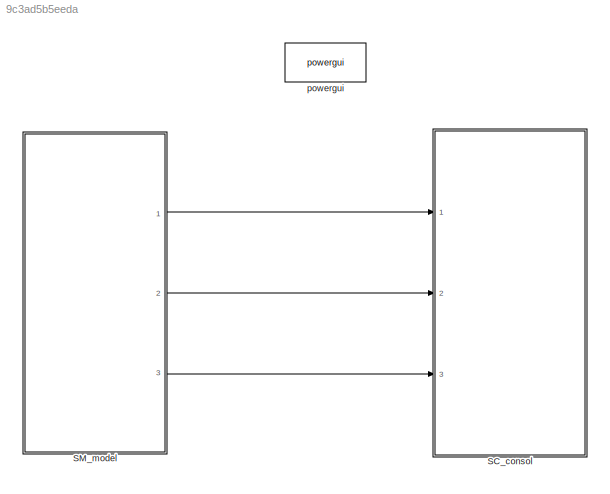
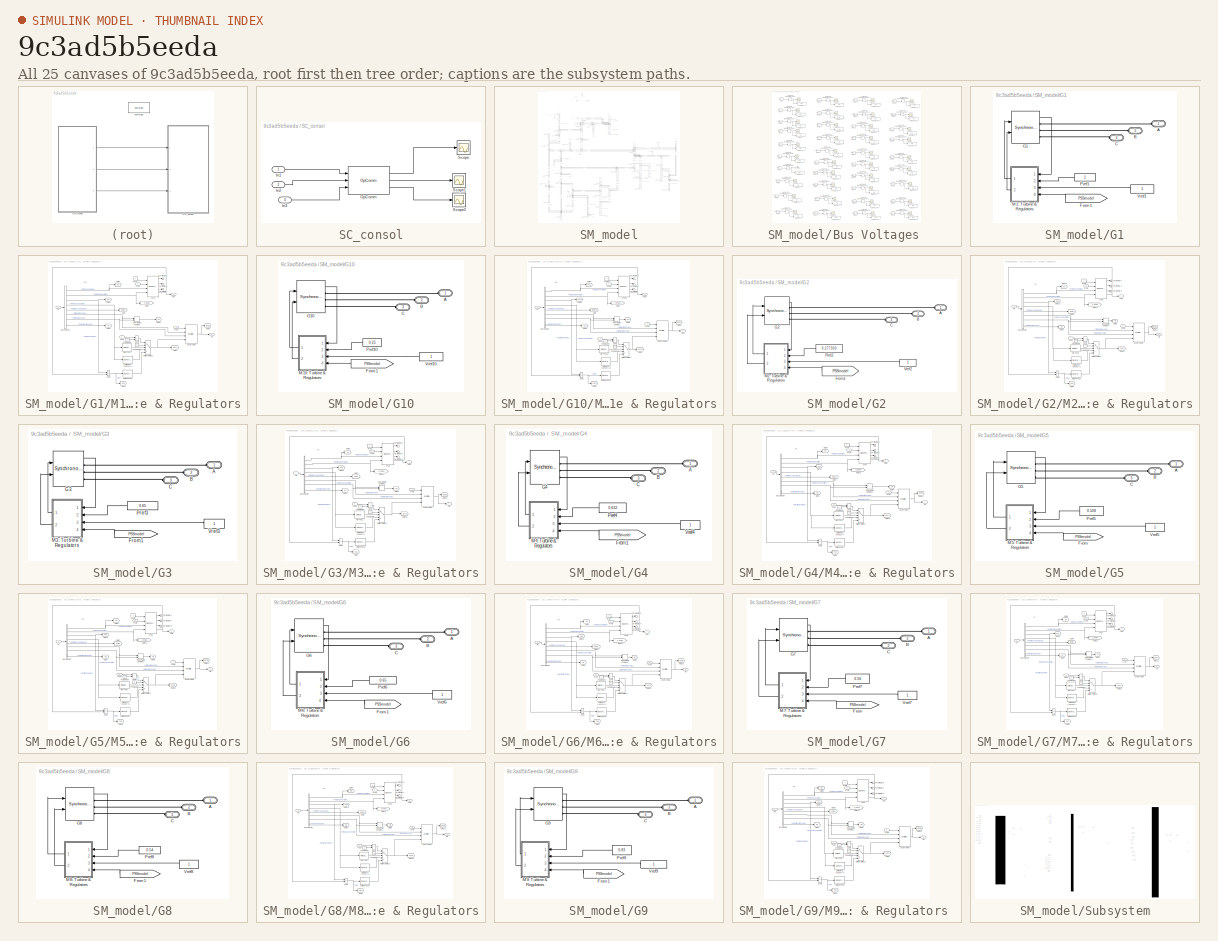
[diagram: thumbnail index - all 25 canvases of the model, root first then tree order]
MODEL slx_9c3ad5b5eeda
KIND model
CONFIG AbsTol = auto
CONFIG EnableMultiTasking = off
CONFIG FixedStep = 20e-6
CONFIG InitFcn = PSSMODEL=1;\nLPSS=0;\nWAPSS=0;\nWAPSS2=0;\n\n\n% Required data to run New England 39 Bus benchmark\n% clear\n% clc\n% Definition for the columns\n% system base =100 MVA\n\n%% Line data Format (line)\n% All values are given on the same system base MVA\n% 1: From bus  \n% 2: To bus   \n% 3: Resistance (pu)\n% 4: Reactance  (pu)\n% 5: Charge     (pu)\n% 6: Transformer Tap Amplitute\n% 7: base MVA\n% 8: Nomonal Voltage (K...<+6553ch>
CONFIG MaxStep = auto
CONFIG MinStep = auto
CONFIG PostLoadFcn = PSSMODEL=1;\nLPSS=0;\nWAPSS=0;\nWAPSS2=0;
CONFIG PreLoadFcn = PSSMODEL=1;\nLPSS=0;\nWAPSS=0;\nWAPSS2=0;
CONFIG RelTol = 1e-3
CONFIG SampleTimeConstraint = Unconstrained
CONFIG SolverName = ode4
CONFIG StartTime = 0.0
CONFIG StopTime = 10.0
BLOCK [SubSystem] SC_consol
  Ports = [3]
  RequestExecContextInheritance = off
BLOCK [Inport] SC_consol/In1
BLOCK [Inport] SC_consol/In2
  Port = 2
BLOCK [Inport] SC_consol/In3
  Port = 3
BLOCK [Reference] SC_consol/OpComm  REF=rtlab/OpComm
  Ports = [3, 3]
  SourceBlock = rtlab/OpComm
  SourceProductName = RT-LAB
  SourceType = RT-LAB OpComm
BLOCK [Scope] SC_consol/Scope
  Floating = off
  NumInputPorts = 1
  Ports = [1]
  ScopeSpecificationString = Simulink.scopes.TimeScopeBlockCfg('CurrentConfiguration', extmgr.ConfigurationSet(extmgr.Configuration('Core','General UI',true),extmgr.Configuration('Core','Source UI',true),extmgr.Configuration('Sources','WiredSimulink',true,'DataLoggingVariableName','ScopeData1'),extmgr.Configuration('Visuals','Time Domain',true,'SerializedDisplays',{struct('MinYLimReal','-20.14261','MaxYLimReal','190.79988','Y...<+2032ch>
BLOCK [Scope] SC_consol/Scope1
  Floating = off
  NumInputPorts = 1
  Ports = [1]
  ScopeSpecificationString = Simulink.scopes.TimeScopeBlockCfg('CurrentConfiguration', extmgr.ConfigurationSet(extmgr.Configuration('Core','General UI',true),extmgr.Configuration('Core','Source UI',true),extmgr.Configuration('Sources','WiredSimulink',true,'DataLoggingVariableName','ScopeData2'),extmgr.Configuration('Visuals','Time Domain',true,'SerializedDisplays',{struct('MinYLimReal','0.31385','MaxYLimReal','1.43507','YLabe...<+2020ch>
BLOCK [Scope] SC_consol/Scope2
  Floating = off
  NumInputPorts = 1
  Ports = [1]
  ScopeSpecificationString = Simulink.scopes.TimeScopeBlockCfg('CurrentConfiguration', extmgr.ConfigurationSet(extmgr.Configuration('Core','General UI',true),extmgr.Configuration('Core','Source UI',true),extmgr.Configuration('Sources','WiredSimulink',true,'DataLoggingVariableName','ScopeData3'),extmgr.Configuration('Visuals','Time Domain',true,'SerializedDisplays',{struct('MinYLimReal','0.57231','MaxYLimReal','1.47022','YLabe...<+1794ch>
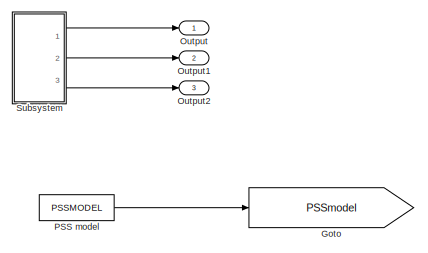
[diagram: SM_model - part 1/13, top left region]
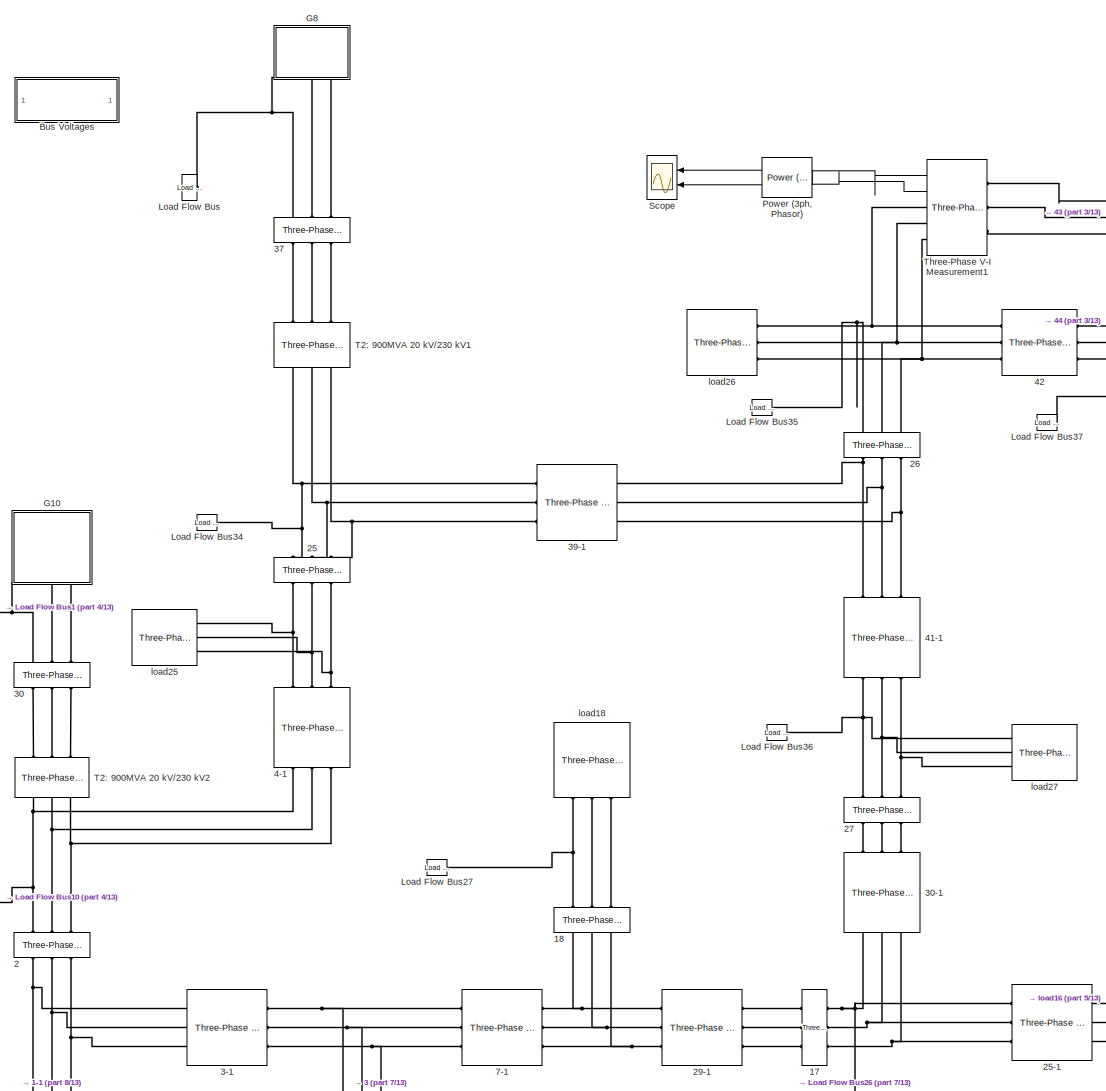
[diagram: SM_model - part 2/13, top left region]
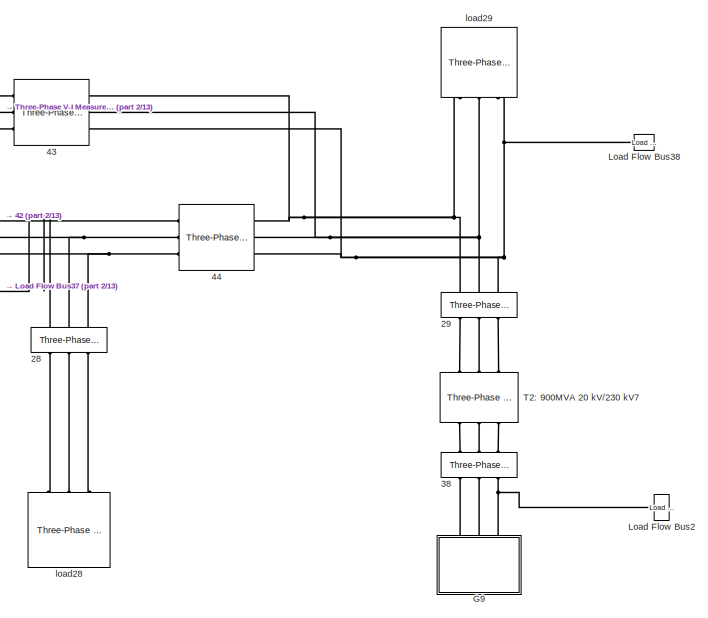
[diagram: SM_model - part 3/13, top center region]
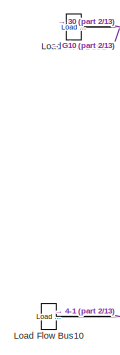
[diagram: SM_model - part 4/13, middle left region]
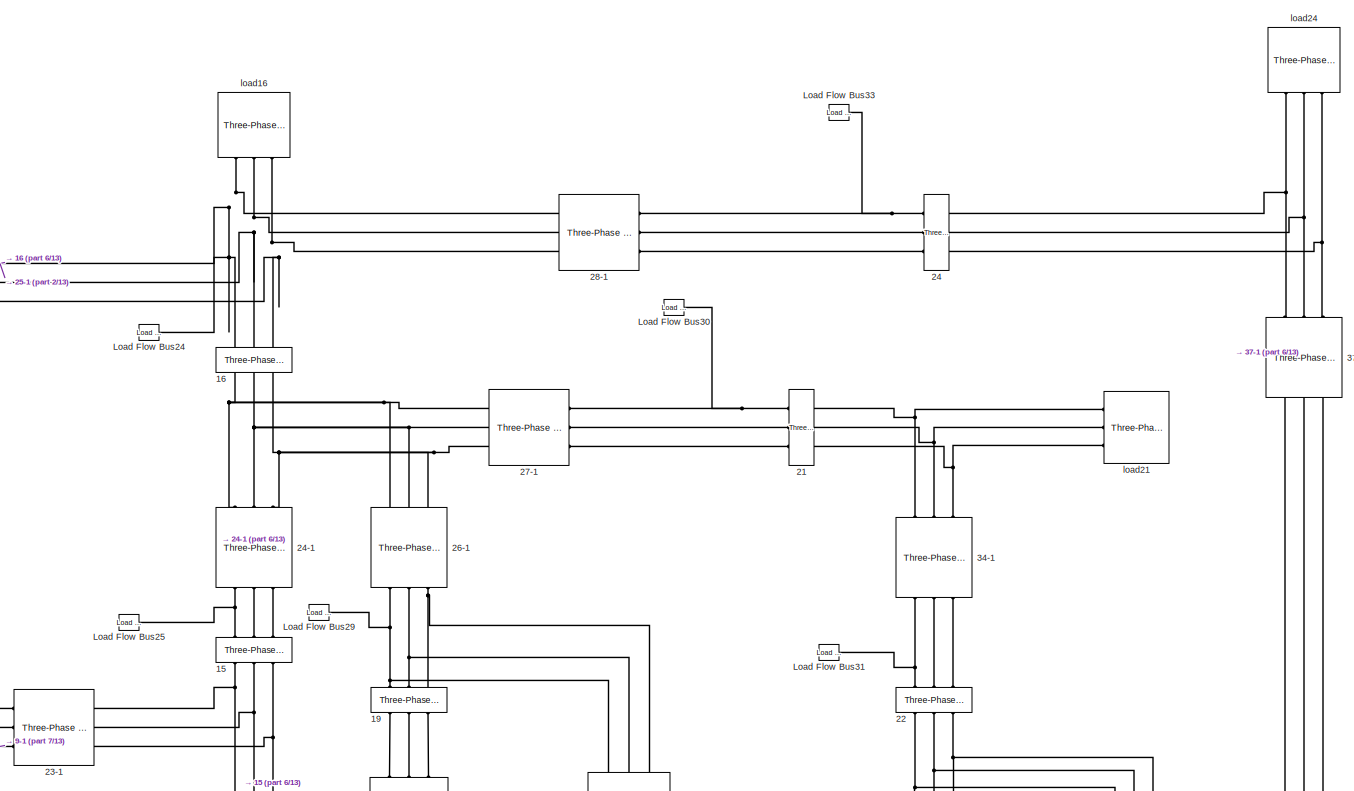
[diagram: SM_model - part 5/13, middle right region]
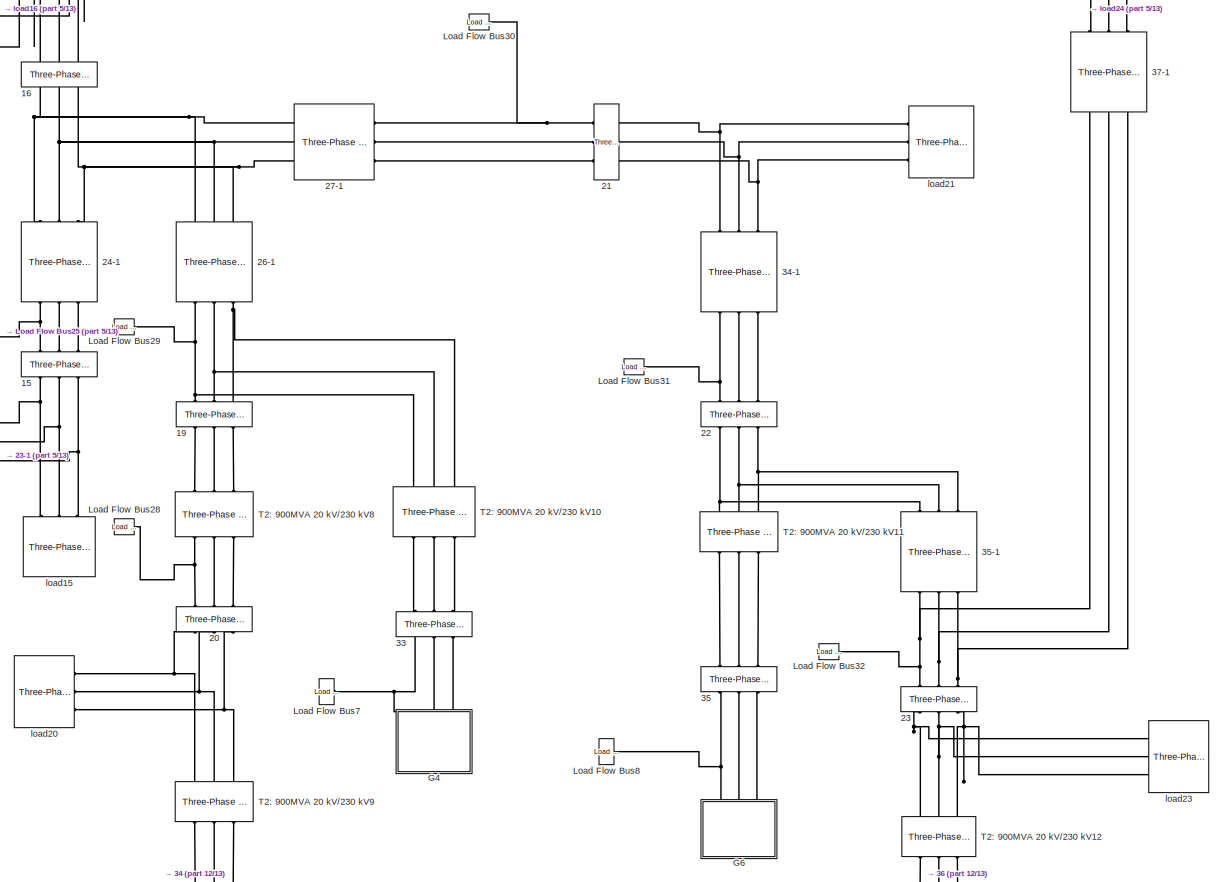
[diagram: SM_model - part 6/13, middle right region]
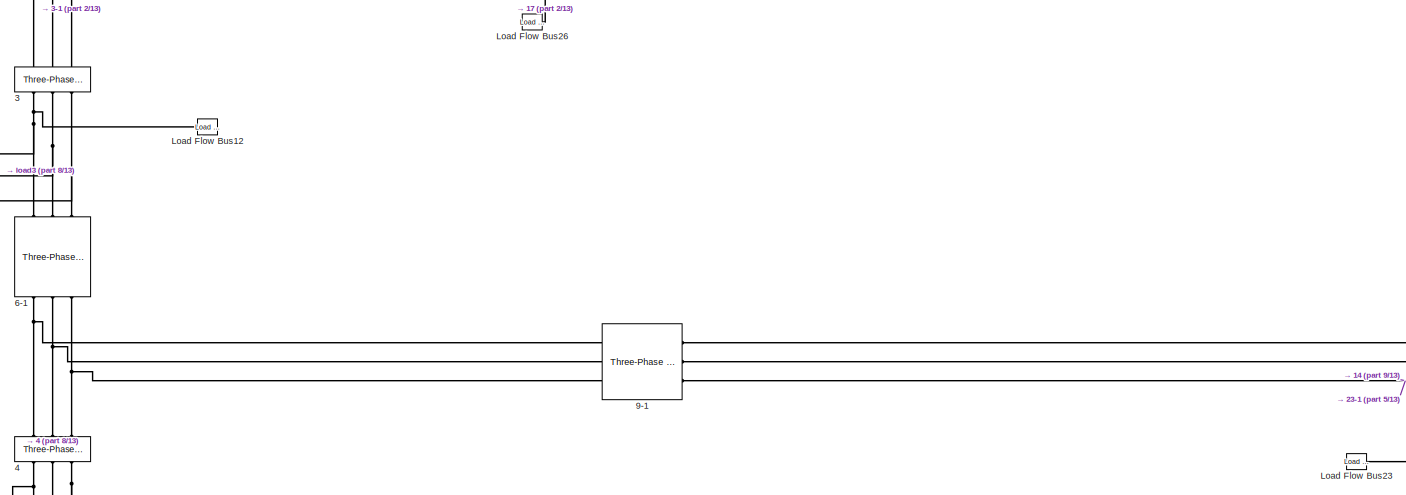
[diagram: SM_model - part 7/13, central region]
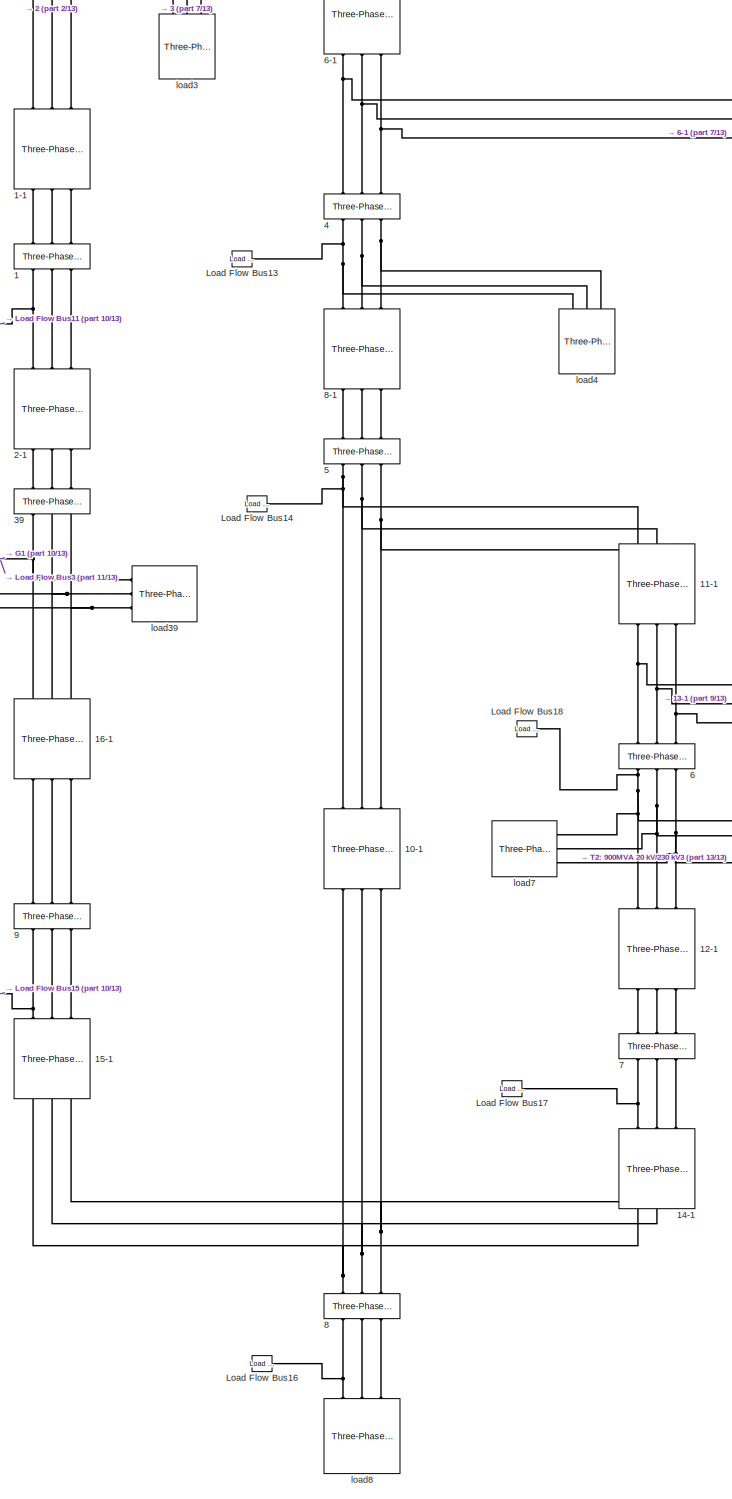
[diagram: SM_model - part 8/13, bottom left region]
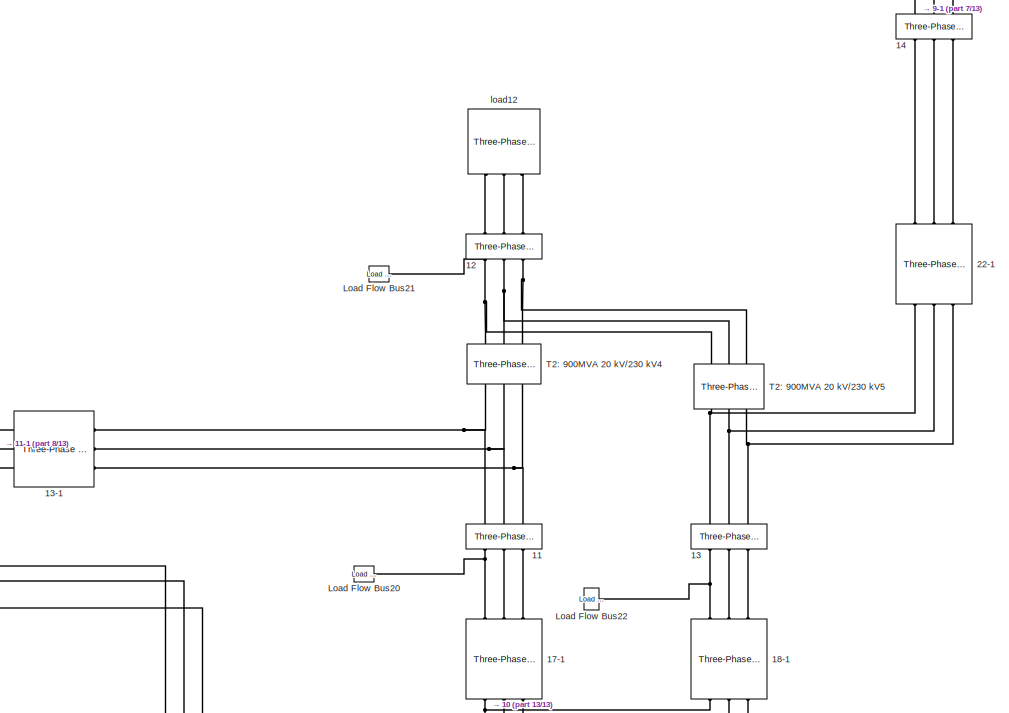
[diagram: SM_model - part 9/13, bottom center region]
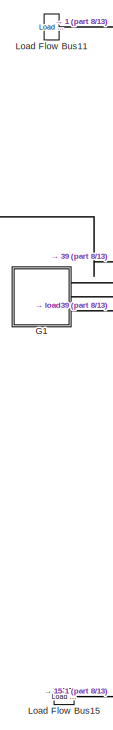
[diagram: SM_model - part 10/13, bottom left region]
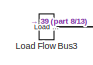
[diagram: SM_model - part 11/13, bottom left region]
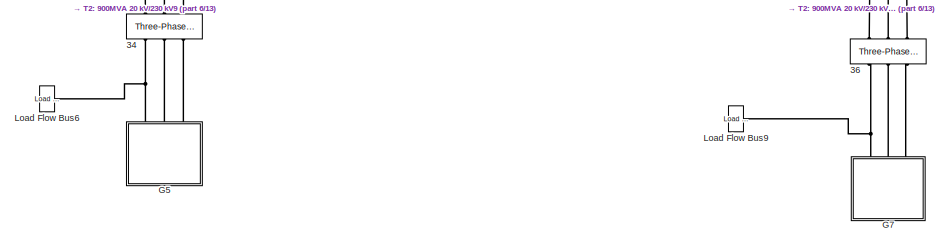
[diagram: SM_model - part 12/13, bottom right region]
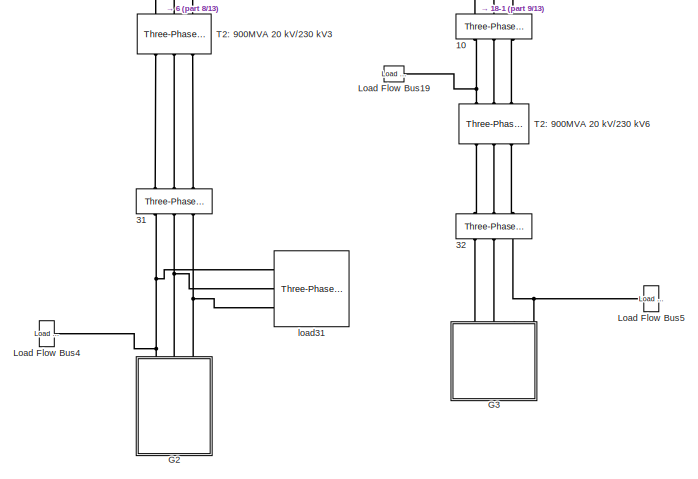
[diagram: SM_model - part 13/13, bottom center region]
BLOCK [SubSystem] SM_model
  Ports = [0, 3]
  RequestExecContextInheritance = off
BLOCK [Reference] SM_model/1  REF=spsThreePhaseVIMeasurementLib/Three-Phase
V-I Measurement
  NameLocation = left
  Ports = [0, 0, 0, 0, 0, 3, 3]
  SourceBlock = spsThreePhaseVIMeasurementLib/Three-Phase\nV-I Measurement
  SourceProductBaseCode = PS
  SourceType = Three-Phase VI Measurement
BLOCK [Reference] SM_model/1-1  REF=spsThreePhasePISectionLineLib/Three-Phase
PI Section Line
  AttributesFormatString = \n
  NameLocation = left
  Ports = [0, 0, 0, 0, 0, 3, 3]
  SourceBlock = spsThreePhasePISectionLineLib/Three-Phase\nPI Section Line
  SourceProductBaseCode = PS
  SourceType = Three-Phase PI Section Line
BLOCK [Reference] SM_model/10  REF=spsThreePhaseVIMeasurementLib/Three-Phase
V-I Measurement
  NameLocation = left
  Ports = [0, 0, 0, 0, 0, 3, 3]
  SourceBlock = spsThreePhaseVIMeasurementLib/Three-Phase\nV-I Measurement
  SourceProductBaseCode = PS
  SourceType = Three-Phase VI Measurement
BLOCK [Reference] SM_model/10-1  REF=spsThreePhasePISectionLineLib/Three-Phase
PI Section Line
  AttributesFormatString = \n
  NameLocation = left
  Ports = [0, 0, 0, 0, 0, 3, 3]
  SourceBlock = spsThreePhasePISectionLineLib/Three-Phase\nPI Section Line
  SourceProductBaseCode = PS
  SourceType = Three-Phase PI Section Line
BLOCK [Reference] SM_model/11  REF=spsThreePhaseVIMeasurementLib/Three-Phase
V-I Measurement
  NameLocation = left
  Ports = [0, 0, 0, 0, 0, 3, 3]
  SourceBlock = spsThreePhaseVIMeasurementLib/Three-Phase\nV-I Measurement
  SourceProductBaseCode = PS
  SourceType = Three-Phase VI Measurement
BLOCK [Reference] SM_model/11-1  REF=spsThreePhasePISectionLineLib/Three-Phase
PI Section Line
  AttributesFormatString = \n
  NameLocation = left
  Ports = [0, 0, 0, 0, 0, 3, 3]
  SourceBlock = spsThreePhasePISectionLineLib/Three-Phase\nPI Section Line
  SourceProductBaseCode = PS
  SourceType = Three-Phase PI Section Line
BLOCK [Reference] SM_model/12  REF=spsThreePhaseVIMeasurementLib/Three-Phase
V-I Measurement
  NameLocation = left
  Ports = [0, 0, 0, 0, 0, 3, 3]
  SourceBlock = spsThreePhaseVIMeasurementLib/Three-Phase\nV-I Measurement
  SourceProductBaseCode = PS
  SourceType = Three-Phase VI Measurement
BLOCK [Reference] SM_model/12-1  REF=spsThreePhasePISectionLineLib/Three-Phase
PI Section Line
  AttributesFormatString = \n
  NameLocation = left
  Ports = [0, 0, 0, 0, 0, 3, 3]
  SourceBlock = spsThreePhasePISectionLineLib/Three-Phase\nPI Section Line
  SourceProductBaseCode = PS
  SourceType = Three-Phase PI Section Line
BLOCK [Reference] SM_model/13  REF=spsThreePhaseVIMeasurementLib/Three-Phase
V-I Measurement
  NameLocation = left
  Ports = [0, 0, 0, 0, 0, 3, 3]
  SourceBlock = spsThreePhaseVIMeasurementLib/Three-Phase\nV-I Measurement
  SourceProductBaseCode = PS
  SourceType = Three-Phase VI Measurement
BLOCK [Reference] SM_model/13-1  REF=spsThreePhasePISectionLineLib/Three-Phase
PI Section Line
  AttributesFormatString = \n
  Ports = [0, 0, 0, 0, 0, 3, 3]
  SourceBlock = spsThreePhasePISectionLineLib/Three-Phase\nPI Section Line
  SourceProductBaseCode = PS
  SourceType = Three-Phase PI Section Line
BLOCK [Reference] SM_model/14  REF=spsThreePhaseVIMeasurementLib/Three-Phase
V-I Measurement
  NameLocation = right
  Ports = [0, 0, 0, 0, 0, 3, 3]
  SourceBlock = spsThreePhaseVIMeasurementLib/Three-Phase\nV-I Measurement
  SourceProductBaseCode = PS
  SourceType = Three-Phase VI Measurement
BLOCK [Reference] SM_model/14-1  REF=spsThreePhasePISectionLineLib/Three-Phase
PI Section Line
  AttributesFormatString = \n
  NameLocation = left
  Ports = [0, 0, 0, 0, 0, 3, 3]
  SourceBlock = spsThreePhasePISectionLineLib/Three-Phase\nPI Section Line
  SourceProductBaseCode = PS
  SourceType = Three-Phase PI Section Line
BLOCK [Reference] SM_model/15  REF=spsThreePhaseVIMeasurementLib/Three-Phase
V-I Measurement
  NameLocation = left
  Ports = [0, 0, 0, 0, 0, 3, 3]
  SourceBlock = spsThreePhaseVIMeasurementLib/Three-Phase\nV-I Measurement
  SourceProductBaseCode = PS
  SourceType = Three-Phase VI Measurement
BLOCK [Reference] SM_model/15-1  REF=spsThreePhasePISectionLineLib/Three-Phase
PI Section Line
  AttributesFormatString = \n
  NameLocation = left
  Ports = [0, 0, 0, 0, 0, 3, 3]
  SourceBlock = spsThreePhasePISectionLineLib/Three-Phase\nPI Section Line
  SourceProductBaseCode = PS
  SourceType = Three-Phase PI Section Line
BLOCK [Reference] SM_model/16  REF=spsThreePhaseVIMeasurementLib/Three-Phase
V-I Measurement
  NameLocation = right
  Ports = [0, 0, 0, 0, 0, 3, 3]
  SourceBlock = spsThreePhaseVIMeasurementLib/Three-Phase\nV-I Measurement
  SourceProductBaseCode = PS
  SourceType = Three-Phase VI Measurement
BLOCK [Reference] SM_model/16-1  REF=spsThreePhasePISectionLineLib/Three-Phase
PI Section Line
  AttributesFormatString = \n
  NameLocation = left
  Ports = [0, 0, 0, 0, 0, 3, 3]
  SourceBlock = spsThreePhasePISectionLineLib/Three-Phase\nPI Section Line
  SourceProductBaseCode = PS
  SourceType = Three-Phase PI Section Line
BLOCK [Reference] SM_model/17  REF=spsThreePhaseVIMeasurementLib/Three-Phase
V-I Measurement
  NameLocation = top
  Ports = [0, 0, 0, 0, 0, 3, 3]
  SourceBlock = spsThreePhaseVIMeasurementLib/Three-Phase\nV-I Measurement
  SourceProductBaseCode = PS
  SourceType = Three-Phase VI Measurement
BLOCK [Reference] SM_model/17-1  REF=spsThreePhasePISectionLineLib/Three-Phase
PI Section Line
  AttributesFormatString = \n
  NameLocation = left
  Ports = [0, 0, 0, 0, 0, 3, 3]
  SourceBlock = spsThreePhasePISectionLineLib/Three-Phase\nPI Section Line
  SourceProductBaseCode = PS
  SourceType = Three-Phase PI Section Line
BLOCK [Reference] SM_model/18  REF=spsThreePhaseVIMeasurementLib/Three-Phase
V-I Measurement
  NameLocation = left
  Ports = [0, 0, 0, 0, 0, 3, 3]
  SourceBlock = spsThreePhaseVIMeasurementLib/Three-Phase\nV-I Measurement
  SourceProductBaseCode = PS
  SourceType = Three-Phase VI Measurement
BLOCK [Reference] SM_model/18-1  REF=spsThreePhasePISectionLineLib/Three-Phase
PI Section Line
  AttributesFormatString = \n
  NameLocation = left
  Ports = [0, 0, 0, 0, 0, 3, 3]
  SourceBlock = spsThreePhasePISectionLineLib/Three-Phase\nPI Section Line
  SourceProductBaseCode = PS
  SourceType = Three-Phase PI Section Line
BLOCK [Reference] SM_model/19  REF=spsThreePhaseVIMeasurementLib/Three-Phase
V-I Measurement
  NameLocation = left
  Ports = [0, 0, 0, 0, 0, 3, 3]
  SourceBlock = spsThreePhaseVIMeasurementLib/Three-Phase\nV-I Measurement
  SourceProductBaseCode = PS
  SourceType = Three-Phase VI Measurement
BLOCK [Reference] SM_model/2  REF=spsThreePhaseVIMeasurementLib/Three-Phase
V-I Measurement
  NameLocation = left
  Ports = [0, 0, 0, 0, 0, 3, 3]
  SourceBlock = spsThreePhaseVIMeasurementLib/Three-Phase\nV-I Measurement
  SourceProductBaseCode = PS
  SourceType = Three-Phase VI Measurement
BLOCK [Reference] SM_model/2-1  REF=spsThreePhasePISectionLineLib/Three-Phase
PI Section Line
  AttributesFormatString = \n
  NameLocation = left
  Ports = [0, 0, 0, 0, 0, 3, 3]
  SourceBlock = spsThreePhasePISectionLineLib/Three-Phase\nPI Section Line
  SourceProductBaseCode = PS
  SourceType = Three-Phase PI Section Line
BLOCK [Reference] SM_model/20  REF=spsThreePhaseVIMeasurementLib/Three-Phase
V-I Measurement
  NameLocation = left
  Ports = [0, 0, 0, 0, 0, 3, 3]
  SourceBlock = spsThreePhaseVIMeasurementLib/Three-Phase\nV-I Measurement
  SourceProductBaseCode = PS
  SourceType = Three-Phase VI Measurement
BLOCK [Reference] SM_model/21  REF=spsThreePhaseVIMeasurementLib/Three-Phase
V-I Measurement
  NameLocation = top
  Ports = [0, 0, 0, 0, 0, 3, 3]
  SourceBlock = spsThreePhaseVIMeasurementLib/Three-Phase\nV-I Measurement
  SourceProductBaseCode = PS
  SourceType = Three-Phase VI Measurement
BLOCK [Reference] SM_model/22  REF=spsThreePhaseVIMeasurementLib/Three-Phase
V-I Measurement
  NameLocation = left
  Ports = [0, 0, 0, 0, 0, 3, 3]
  SourceBlock = spsThreePhaseVIMeasurementLib/Three-Phase\nV-I Measurement
  SourceProductBaseCode = PS
  SourceType = Three-Phase VI Measurement
BLOCK [Reference] SM_model/22-1  REF=spsThreePhasePISectionLineLib/Three-Phase
PI Section Line
  AttributesFormatString = \n
  NameLocation = left
  Ports = [0, 0, 0, 0, 0, 3, 3]
  SourceBlock = spsThreePhasePISectionLineLib/Three-Phase\nPI Section Line
  SourceProductBaseCode = PS
  SourceType = Three-Phase PI Section Line
BLOCK [Reference] SM_model/23  REF=spsThreePhaseVIMeasurementLib/Three-Phase
V-I Measurement
  NameLocation = left
  Ports = [0, 0, 0, 0, 0, 3, 3]
  SourceBlock = spsThreePhaseVIMeasurementLib/Three-Phase\nV-I Measurement
  SourceProductBaseCode = PS
  SourceType = Three-Phase VI Measurement
BLOCK [Reference] SM_model/23-1  REF=spsThreePhasePISectionLineLib/Three-Phase
PI Section Line
  AttributesFormatString = \n
  NameLocation = top
  Ports = [0, 0, 0, 0, 0, 3, 3]
  SourceBlock = spsThreePhasePISectionLineLib/Three-Phase\nPI Section Line
  SourceProductBaseCode = PS
  SourceType = Three-Phase PI Section Line
BLOCK [Reference] SM_model/24  REF=spsThreePhaseVIMeasurementLib/Three-Phase
V-I Measurement
  NameLocation = top
  Ports = [0, 0, 0, 0, 0, 3, 3]
  SourceBlock = spsThreePhaseVIMeasurementLib/Three-Phase\nV-I Measurement
  SourceProductBaseCode = PS
  SourceType = Three-Phase VI Measurement
BLOCK [Reference] SM_model/24-1  REF=spsThreePhasePISectionLineLib/Three-Phase
PI Section Line
  AttributesFormatString = \n
  NameLocation = left
  Ports = [0, 0, 0, 0, 0, 3, 3]
  SourceBlock = spsThreePhasePISectionLineLib/Three-Phase\nPI Section Line
  SourceProductBaseCode = PS
  SourceType = Three-Phase PI Section Line
BLOCK [Reference] SM_model/25  REF=spsThreePhaseVIMeasurementLib/Three-Phase
V-I Measurement
  NameLocation = left
  Ports = [0, 0, 0, 0, 0, 3, 3]
  SourceBlock = spsThreePhaseVIMeasurementLib/Three-Phase\nV-I Measurement
  SourceProductBaseCode = PS
  SourceType = Three-Phase VI Measurement
BLOCK [Reference] SM_model/25-1  REF=spsThreePhasePISectionLineLib/Three-Phase
PI Section Line
  AttributesFormatString = \n
  NameLocation = top
  Ports = [0, 0, 0, 0, 0, 3, 3]
  SourceBlock = spsThreePhasePISectionLineLib/Three-Phase\nPI Section Line
  SourceProductBaseCode = PS
  SourceType = Three-Phase PI Section Line
BLOCK [Reference] SM_model/26  REF=spsThreePhaseVIMeasurementLib/Three-Phase
V-I Measurement
  NameLocation = left
  Ports = [0, 0, 0, 0, 0, 3, 3]
  SourceBlock = spsThreePhaseVIMeasurementLib/Three-Phase\nV-I Measurement
  SourceProductBaseCode = PS
  SourceType = Three-Phase VI Measurement
BLOCK [Reference] SM_model/26-1  REF=spsThreePhasePISectionLineLib/Three-Phase
PI Section Line
  AttributesFormatString = \n
  NameLocation = left
  Ports = [0, 0, 0, 0, 0, 3, 3]
  SourceBlock = spsThreePhasePISectionLineLib/Three-Phase\nPI Section Line
  SourceProductBaseCode = PS
  SourceType = Three-Phase PI Section Line
BLOCK [Reference] SM_model/27  REF=spsThreePhaseVIMeasurementLib/Three-Phase
V-I Measurement
  NameLocation = left
  Ports = [0, 0, 0, 0, 0, 3, 3]
  SourceBlock = spsThreePhaseVIMeasurementLib/Three-Phase\nV-I Measurement
  SourceProductBaseCode = PS
  SourceType = Three-Phase VI Measurement
BLOCK [Reference] SM_model/27-1  REF=spsThreePhasePISectionLineLib/Three-Phase
PI Section Line
  AttributesFormatString = \n
  NameLocation = top
  Ports = [0, 0, 0, 0, 0, 3, 3]
  SourceBlock = spsThreePhasePISectionLineLib/Three-Phase\nPI Section Line
  SourceProductBaseCode = PS
  SourceType = Three-Phase PI Section Line
BLOCK [Reference] SM_model/28  REF=spsThreePhaseVIMeasurementLib/Three-Phase
V-I Measurement
  NameLocation = right
  Ports = [0, 0, 0, 0, 0, 3, 3]
  SourceBlock = spsThreePhaseVIMeasurementLib/Three-Phase\nV-I Measurement
  SourceProductBaseCode = PS
  SourceType = Three-Phase VI Measurement
BLOCK [Reference] SM_model/28-1  REF=spsThreePhasePISectionLineLib/Three-Phase
PI Section Line
  AttributesFormatString = \n
  NameLocation = top
  Ports = [0, 0, 0, 0, 0, 3, 3]
  SourceBlock = spsThreePhasePISectionLineLib/Three-Phase\nPI Section Line
  SourceProductBaseCode = PS
  SourceType = Three-Phase PI Section Line
BLOCK [Reference] SM_model/29  REF=spsThreePhaseVIMeasurementLib/Three-Phase
V-I Measurement
  NameLocation = right
  Ports = [0, 0, 0, 0, 0, 3, 3]
  SourceBlock = spsThreePhaseVIMeasurementLib/Three-Phase\nV-I Measurement
  SourceProductBaseCode = PS
  SourceType = Three-Phase VI Measurement
BLOCK [Reference] SM_model/29-1  REF=spsThreePhasePISectionLineLib/Three-Phase
PI Section Line
  AttributesFormatString = \n
  NameLocation = top
  Ports = [0, 0, 0, 0, 0, 3, 3]
  SourceBlock = spsThreePhasePISectionLineLib/Three-Phase\nPI Section Line
  SourceProductBaseCode = PS
  SourceType = Three-Phase PI Section Line
BLOCK [Reference] SM_model/3  REF=spsThreePhaseVIMeasurementLib/Three-Phase
V-I Measurement
  NameLocation = left
  Ports = [0, 0, 0, 0, 0, 3, 3]
  SourceBlock = spsThreePhaseVIMeasurementLib/Three-Phase\nV-I Measurement
  SourceProductBaseCode = PS
  SourceType = Three-Phase VI Measurement
BLOCK [Reference] SM_model/3-1  REF=spsThreePhasePISectionLineLib/Three-Phase
PI Section Line
  AttributesFormatString = \n
  NameLocation = top
  Ports = [0, 0, 0, 0, 0, 3, 3]
  SourceBlock = spsThreePhasePISectionLineLib/Three-Phase\nPI Section Line
  SourceProductBaseCode = PS
  SourceType = Three-Phase PI Section Line
BLOCK [Reference] SM_model/30  REF=spsThreePhaseVIMeasurementLib/Three-Phase
V-I Measurement
  NameLocation = left
  Ports = [0, 0, 0, 0, 0, 3, 3]
  SourceBlock = spsThreePhaseVIMeasurementLib/Three-Phase\nV-I Measurement
  SourceProductBaseCode = PS
  SourceType = Three-Phase VI Measurement
BLOCK [Reference] SM_model/30-1  REF=spsThreePhasePISectionLineLib/Three-Phase
PI Section Line
  AttributesFormatString = \n
  NameLocation = left
  Ports = [0, 0, 0, 0, 0, 3, 3]
  SourceBlock = spsThreePhasePISectionLineLib/Three-Phase\nPI Section Line
  SourceProductBaseCode = PS
  SourceType = Three-Phase PI Section Line
BLOCK [Reference] SM_model/31  REF=spsThreePhaseVIMeasurementLib/Three-Phase
V-I Measurement
  NameLocation = left
  Ports = [0, 0, 0, 0, 0, 3, 3]
  SourceBlock = spsThreePhaseVIMeasurementLib/Three-Phase\nV-I Measurement
  SourceProductBaseCode = PS
  SourceType = Three-Phase VI Measurement
BLOCK [Reference] SM_model/32  REF=spsThreePhaseVIMeasurementLib/Three-Phase
V-I Measurement
  NameLocation = left
  Ports = [0, 0, 0, 0, 0, 3, 3]
  SourceBlock = spsThreePhaseVIMeasurementLib/Three-Phase\nV-I Measurement
  SourceProductBaseCode = PS
  SourceType = Three-Phase VI Measurement
BLOCK [Reference] SM_model/33  REF=spsThreePhaseVIMeasurementLib/Three-Phase
V-I Measurement
  NameLocation = right
  Ports = [0, 0, 0, 0, 0, 3, 3]
  SourceBlock = spsThreePhaseVIMeasurementLib/Three-Phase\nV-I Measurement
  SourceProductBaseCode = PS
  SourceType = Three-Phase VI Measurement
BLOCK [Reference] SM_model/34  REF=spsThreePhaseVIMeasurementLib/Three-Phase
V-I Measurement
  NameLocation = left
  Ports = [0, 0, 0, 0, 0, 3, 3]
  SourceBlock = spsThreePhaseVIMeasurementLib/Three-Phase\nV-I Measurement
  SourceProductBaseCode = PS
  SourceType = Three-Phase VI Measurement
BLOCK [Reference] SM_model/34-1  REF=spsThreePhasePISectionLineLib/Three-Phase
PI Section Line
  AttributesFormatString = \n
  NameLocation = left
  Ports = [0, 0, 0, 0, 0, 3, 3]
  SourceBlock = spsThreePhasePISectionLineLib/Three-Phase\nPI Section Line
  SourceProductBaseCode = PS
  SourceType = Three-Phase PI Section Line
BLOCK [Reference] SM_model/35  REF=spsThreePhaseVIMeasurementLib/Three-Phase
V-I Measurement
  NameLocation = left
  Ports = [0, 0, 0, 0, 0, 3, 3]
  SourceBlock = spsThreePhaseVIMeasurementLib/Three-Phase\nV-I Measurement
  SourceProductBaseCode = PS
  SourceType = Three-Phase VI Measurement
BLOCK [Reference] SM_model/35-1  REF=spsThreePhasePISectionLineLib/Three-Phase
PI Section Line
  AttributesFormatString = \n
  NameLocation = left
  Ports = [0, 0, 0, 0, 0, 3, 3]
  SourceBlock = spsThreePhasePISectionLineLib/Three-Phase\nPI Section Line
  SourceProductBaseCode = PS
  SourceType = Three-Phase PI Section Line
BLOCK [Reference] SM_model/36  REF=spsThreePhaseVIMeasurementLib/Three-Phase
V-I Measurement
  NameLocation = left
  Ports = [0, 0, 0, 0, 0, 3, 3]
  SourceBlock = spsThreePhaseVIMeasurementLib/Three-Phase\nV-I Measurement
  SourceProductBaseCode = PS
  SourceType = Three-Phase VI Measurement
BLOCK [Reference] SM_model/37  REF=spsThreePhaseVIMeasurementLib/Three-Phase
V-I Measurement
  NameLocation = left
  Ports = [0, 0, 0, 0, 0, 3, 3]
  SourceBlock = spsThreePhaseVIMeasurementLib/Three-Phase\nV-I Measurement
  SourceProductBaseCode = PS
  SourceType = Three-Phase VI Measurement
BLOCK [Reference] SM_model/37-1  REF=spsThreePhasePISectionLineLib/Three-Phase
PI Section Line
  AttributesFormatString = \n
  NameLocation = left
  Ports = [0, 0, 0, 0, 0, 3, 3]
  SourceBlock = spsThreePhasePISectionLineLib/Three-Phase\nPI Section Line
  SourceProductBaseCode = PS
  SourceType = Three-Phase PI Section Line
BLOCK [Reference] SM_model/38  REF=spsThreePhaseVIMeasurementLib/Three-Phase
V-I Measurement
  NameLocation = left
  Ports = [0, 0, 0, 0, 0, 3, 3]
  SourceBlock = spsThreePhaseVIMeasurementLib/Three-Phase\nV-I Measurement
  SourceProductBaseCode = PS
  SourceType = Three-Phase VI Measurement
BLOCK [Reference] SM_model/39  REF=spsThreePhaseVIMeasurementLib/Three-Phase
V-I Measurement
  NameLocation = left
  Ports = [0, 0, 0, 0, 0, 3, 3]
  SourceBlock = spsThreePhaseVIMeasurementLib/Three-Phase\nV-I Measurement
  SourceProductBaseCode = PS
  SourceType = Three-Phase VI Measurement
BLOCK [Reference] SM_model/39-1  REF=spsThreePhasePISectionLineLib/Three-Phase
PI Section Line
  AttributesFormatString = \n
  NameLocation = top
  Ports = [0, 0, 0, 0, 0, 3, 3]
  SourceBlock = spsThreePhasePISectionLineLib/Three-Phase\nPI Section Line
  SourceProductBaseCode = PS
  SourceType = Three-Phase PI Section Line
BLOCK [Reference] SM_model/4  REF=spsThreePhaseVIMeasurementLib/Three-Phase
V-I Measurement
  NameLocation = left
  Ports = [0, 0, 0, 0, 0, 3, 3]
  SourceBlock = spsThreePhaseVIMeasurementLib/Three-Phase\nV-I Measurement
  SourceProductBaseCode = PS
  SourceType = Three-Phase VI Measurement
BLOCK [Reference] SM_model/4-1  REF=spsThreePhasePISectionLineLib/Three-Phase
PI Section Line
  AttributesFormatString = \n
  NameLocation = left
  Ports = [0, 0, 0, 0, 0, 3, 3]
  SourceBlock = spsThreePhasePISectionLineLib/Three-Phase\nPI Section Line
  SourceProductBaseCode = PS
  SourceType = Three-Phase PI Section Line
BLOCK [Reference] SM_model/41-1  REF=spsThreePhasePISectionLineLib/Three-Phase
PI Section Line
  AttributesFormatString = \n
  NameLocation = right
  Ports = [0, 0, 0, 0, 0, 3, 3]
  SourceBlock = spsThreePhasePISectionLineLib/Three-Phase\nPI Section Line
  SourceProductBaseCode = PS
  SourceType = Three-Phase PI Section Line
BLOCK [Reference] SM_model/42  REF=spsThreePhasePISectionLineLib/Three-Phase
PI Section Line
  AttributesFormatString = \n
  NameLocation = top
  Ports = [0, 0, 0, 0, 0, 3, 3]
  SourceBlock = spsThreePhasePISectionLineLib/Three-Phase\nPI Section Line
  SourceProductBaseCode = PS
  SourceType = Three-Phase PI Section Line
BLOCK [Reference] SM_model/43  REF=spsThreePhasePISectionLineLib/Three-Phase
PI Section Line
  AttributesFormatString = \n
  NameLocation = top
  Ports = [0, 0, 0, 0, 0, 3, 3]
  SourceBlock = spsThreePhasePISectionLineLib/Three-Phase\nPI Section Line
  SourceProductBaseCode = PS
  SourceType = Three-Phase PI Section Line
BLOCK [Reference] SM_model/44  REF=spsThreePhasePISectionLineLib/Three-Phase
PI Section Line
  AttributesFormatString = \n
  NameLocation = top
  Ports = [0, 0, 0, 0, 0, 3, 3]
  SourceBlock = spsThreePhasePISectionLineLib/Three-Phase\nPI Section Line
  SourceProductBaseCode = PS
  SourceType = Three-Phase PI Section Line
BLOCK [Reference] SM_model/5  REF=spsThreePhaseVIMeasurementLib/Three-Phase
V-I Measurement
  NameLocation = left
  Ports = [0, 0, 0, 0, 0, 3, 3]
  SourceBlock = spsThreePhaseVIMeasurementLib/Three-Phase\nV-I Measurement
  SourceProductBaseCode = PS
  SourceType = Three-Phase VI Measurement
BLOCK [Reference] SM_model/6  REF=spsThreePhaseVIMeasurementLib/Three-Phase
V-I Measurement
  NameLocation = left
  Ports = [0, 0, 0, 0, 0, 3, 3]
  SourceBlock = spsThreePhaseVIMeasurementLib/Three-Phase\nV-I Measurement
  SourceProductBaseCode = PS
  SourceType = Three-Phase VI Measurement
BLOCK [Reference] SM_model/6-1  REF=spsThreePhasePISectionLineLib/Three-Phase
PI Section Line
  AttributesFormatString = \n
  NameLocation = left
  Ports = [0, 0, 0, 0, 0, 3, 3]
  SourceBlock = spsThreePhasePISectionLineLib/Three-Phase\nPI Section Line
  SourceProductBaseCode = PS
  SourceType = Three-Phase PI Section Line
BLOCK [Reference] SM_model/7  REF=spsThreePhaseVIMeasurementLib/Three-Phase
V-I Measurement
  NameLocation = right
  Ports = [0, 0, 0, 0, 0, 3, 3]
  SourceBlock = spsThreePhaseVIMeasurementLib/Three-Phase\nV-I Measurement
  SourceProductBaseCode = PS
  SourceType = Three-Phase VI Measurement
BLOCK [Reference] SM_model/7-1  REF=spsThreePhasePISectionLineLib/Three-Phase
PI Section Line
  AttributesFormatString = \n
  NameLocation = top
  Ports = [0, 0, 0, 0, 0, 3, 3]
  SourceBlock = spsThreePhasePISectionLineLib/Three-Phase\nPI Section Line
  SourceProductBaseCode = PS
  SourceType = Three-Phase PI Section Line
BLOCK [Reference] SM_model/8  REF=spsThreePhaseVIMeasurementLib/Three-Phase
V-I Measurement
  NameLocation = left
  Ports = [0, 0, 0, 0, 0, 3, 3]
  SourceBlock = spsThreePhaseVIMeasurementLib/Three-Phase\nV-I Measurement
  SourceProductBaseCode = PS
  SourceType = Three-Phase VI Measurement
BLOCK [Reference] SM_model/8-1  REF=spsThreePhasePISectionLineLib/Three-Phase
PI Section Line
  AttributesFormatString = \n
  NameLocation = left
  Ports = [0, 0, 0, 0, 0, 3, 3]
  SourceBlock = spsThreePhasePISectionLineLib/Three-Phase\nPI Section Line
  SourceProductBaseCode = PS
  SourceType = Three-Phase PI Section Line
BLOCK [Reference] SM_model/9  REF=spsThreePhaseVIMeasurementLib/Three-Phase
V-I Measurement
  NameLocation = left
  Ports = [0, 0, 0, 0, 0, 3, 3]
  SourceBlock = spsThreePhaseVIMeasurementLib/Three-Phase\nV-I Measurement
  SourceProductBaseCode = PS
  SourceType = Three-Phase VI Measurement
BLOCK [Reference] SM_model/9-1  REF=spsThreePhasePISectionLineLib/Three-Phase
PI Section Line
  AttributesFormatString = \n
  NameLocation = top
  Ports = [0, 0, 0, 0, 0, 3, 3]
  SourceBlock = spsThreePhasePISectionLineLib/Three-Phase\nPI Section Line
  SourceProductBaseCode = PS
  SourceType = Three-Phase PI Section Line
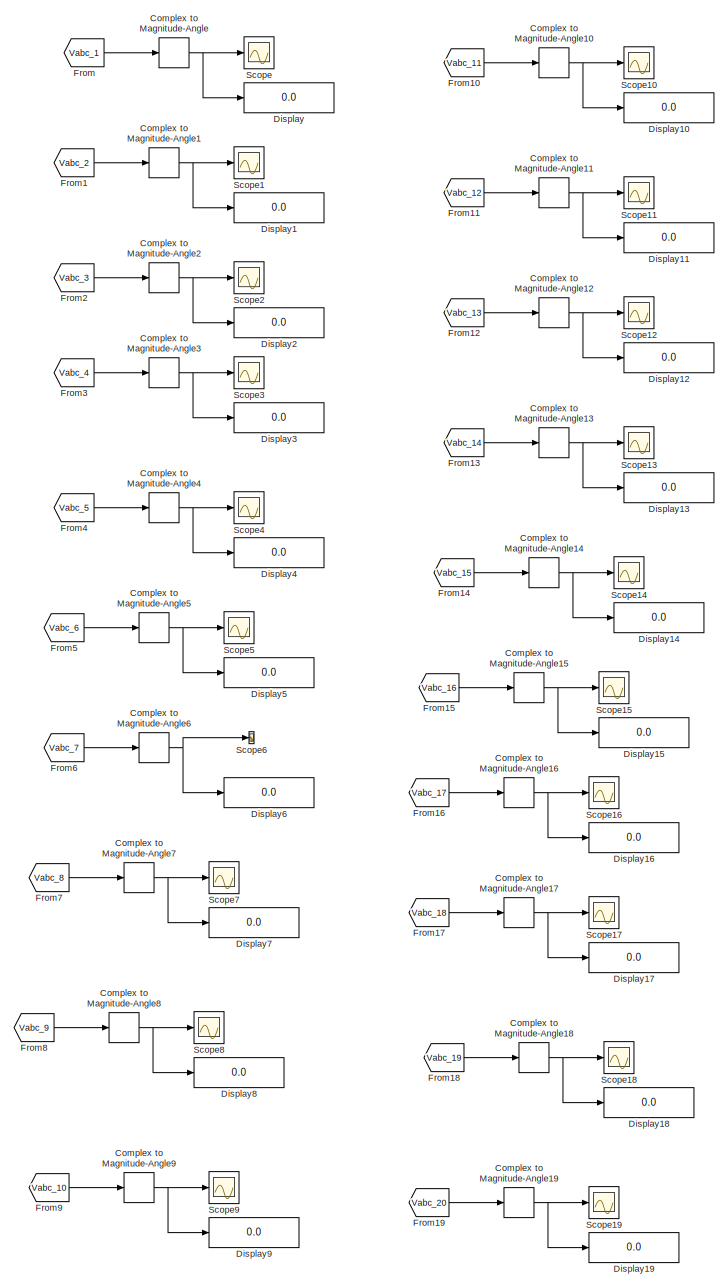
[diagram: SM_model/Bus Voltages  - part 1/2, left side, full height]
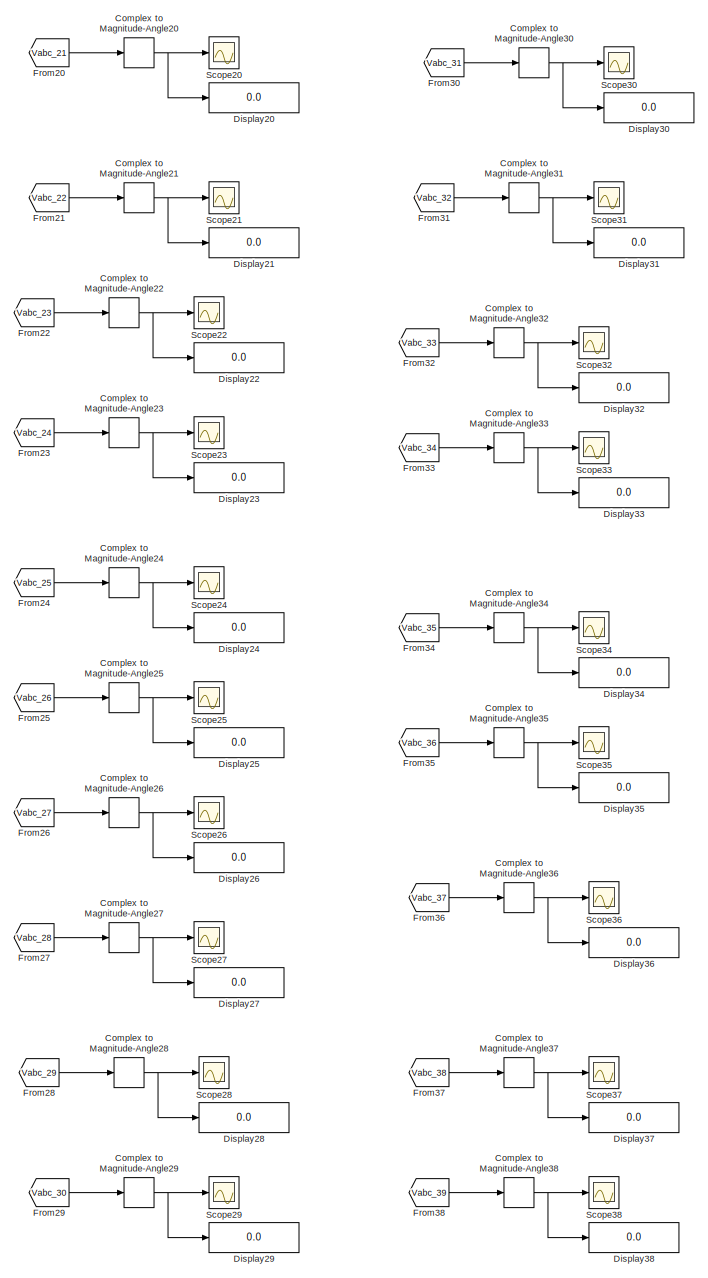
[diagram: SM_model/Bus Voltages  - part 2/2, right side, full height]
BLOCK [SubSystem] SM_model/Bus Voltages 
  Commented = on
  Ports = []
  RequestExecContextInheritance = off
BLOCK [ComplexToMagnitudeAngle] SM_model/Bus Voltages /Complex to Magnitude-Angle
  Output = Magnitude
  Ports = [1, 1]
BLOCK [ComplexToMagnitudeAngle] SM_model/Bus Voltages /Complex to Magnitude-Angle1
  Output = Magnitude
  Ports = [1, 1]
BLOCK [ComplexToMagnitudeAngle] SM_model/Bus Voltages /Complex to Magnitude-Angle10
  Output = Magnitude
  Ports = [1, 1]
BLOCK [ComplexToMagnitudeAngle] SM_model/Bus Voltages /Complex to Magnitude-Angle11
  Output = Magnitude
  Ports = [1, 1]
BLOCK [ComplexToMagnitudeAngle] SM_model/Bus Voltages /Complex to Magnitude-Angle12
  Output = Magnitude
  Ports = [1, 1]
BLOCK [ComplexToMagnitudeAngle] SM_model/Bus Voltages /Complex to Magnitude-Angle13
  Output = Magnitude
  Ports = [1, 1]
BLOCK [ComplexToMagnitudeAngle] SM_model/Bus Voltages /Complex to Magnitude-Angle14
  Output = Magnitude
  Ports = [1, 1]
BLOCK [ComplexToMagnitudeAngle] SM_model/Bus Voltages /Complex to Magnitude-Angle15
  Output = Magnitude
  Ports = [1, 1]
BLOCK [ComplexToMagnitudeAngle] SM_model/Bus Voltages /Complex to Magnitude-Angle16
  Output = Magnitude
  Ports = [1, 1]
BLOCK [ComplexToMagnitudeAngle] SM_model/Bus Voltages /Complex to Magnitude-Angle17
  Output = Magnitude
  Ports = [1, 1]
BLOCK [ComplexToMagnitudeAngle] SM_model/Bus Voltages /Complex to Magnitude-Angle18
  Output = Magnitude
  Ports = [1, 1]
BLOCK [ComplexToMagnitudeAngle] SM_model/Bus Voltages /Complex to Magnitude-Angle19
  Output = Magnitude
  Ports = [1, 1]
BLOCK [ComplexToMagnitudeAngle] SM_model/Bus Voltages /Complex to Magnitude-Angle2
  Output = Magnitude
  Ports = [1, 1]
BLOCK [ComplexToMagnitudeAngle] SM_model/Bus Voltages /Complex to Magnitude-Angle20
  Output = Magnitude
  Ports = [1, 1]
BLOCK [ComplexToMagnitudeAngle] SM_model/Bus Voltages /Complex to Magnitude-Angle21
  Output = Magnitude
  Ports = [1, 1]
BLOCK [ComplexToMagnitudeAngle] SM_model/Bus Voltages /Complex to Magnitude-Angle22
  Output = Magnitude
  Ports = [1, 1]
BLOCK [ComplexToMagnitudeAngle] SM_model/Bus Voltages /Complex to Magnitude-Angle23
  Output = Magnitude
  Ports = [1, 1]
BLOCK [ComplexToMagnitudeAngle] SM_model/Bus Voltages /Complex to Magnitude-Angle24
  Output = Magnitude
  Ports = [1, 1]
BLOCK [ComplexToMagnitudeAngle] SM_model/Bus Voltages /Complex to Magnitude-Angle25
  Output = Magnitude
  Ports = [1, 1]
BLOCK [ComplexToMagnitudeAngle] SM_model/Bus Voltages /Complex to Magnitude-Angle26
  Output = Magnitude
  Ports = [1, 1]
BLOCK [ComplexToMagnitudeAngle] SM_model/Bus Voltages /Complex to Magnitude-Angle27
  Output = Magnitude
  Ports = [1, 1]
BLOCK [ComplexToMagnitudeAngle] SM_model/Bus Voltages /Complex to Magnitude-Angle28
  Output = Magnitude
  Ports = [1, 1]
BLOCK [ComplexToMagnitudeAngle] SM_model/Bus Voltages /Complex to Magnitude-Angle29
  Output = Magnitude
  Ports = [1, 1]
BLOCK [ComplexToMagnitudeAngle] SM_model/Bus Voltages /Complex to Magnitude-Angle3
  Output = Magnitude
  Ports = [1, 1]
BLOCK [ComplexToMagnitudeAngle] SM_model/Bus Voltages /Complex to Magnitude-Angle30
  Output = Magnitude
  Ports = [1, 1]
BLOCK [ComplexToMagnitudeAngle] SM_model/Bus Voltages /Complex to Magnitude-Angle31
  Output = Magnitude
  Ports = [1, 1]
BLOCK [ComplexToMagnitudeAngle] SM_model/Bus Voltages /Complex to Magnitude-Angle32
  Output = Magnitude
  Ports = [1, 1]
BLOCK [ComplexToMagnitudeAngle] SM_model/Bus Voltages /Complex to Magnitude-Angle33
  Output = Magnitude
  Ports = [1, 1]
BLOCK [ComplexToMagnitudeAngle] SM_model/Bus Voltages /Complex to Magnitude-Angle34
  Output = Magnitude
  Ports = [1, 1]
BLOCK [ComplexToMagnitudeAngle] SM_model/Bus Voltages /Complex to Magnitude-Angle35
  Output = Magnitude
  Ports = [1, 1]
BLOCK [ComplexToMagnitudeAngle] SM_model/Bus Voltages /Complex to Magnitude-Angle36
  Output = Magnitude
  Ports = [1, 1]
BLOCK [ComplexToMagnitudeAngle] SM_model/Bus Voltages /Complex to Magnitude-Angle37
  Output = Magnitude
  Ports = [1, 1]
BLOCK [ComplexToMagnitudeAngle] SM_model/Bus Voltages /Complex to Magnitude-Angle38
  Output = Magnitude
  Ports = [1, 1]
BLOCK [ComplexToMagnitudeAngle] SM_model/Bus Voltages /Complex to Magnitude-Angle4
  Output = Magnitude
  Ports = [1, 1]
BLOCK [ComplexToMagnitudeAngle] SM_model/Bus Voltages /Complex to Magnitude-Angle5
  Output = Magnitude
  Ports = [1, 1]
BLOCK [ComplexToMagnitudeAngle] SM_model/Bus Voltages /Complex to Magnitude-Angle6
  Output = Magnitude
  Ports = [1, 1]
BLOCK [ComplexToMagnitudeAngle] SM_model/Bus Voltages /Complex to Magnitude-Angle7
  Output = Magnitude
  Ports = [1, 1]
BLOCK [ComplexToMagnitudeAngle] SM_model/Bus Voltages /Complex to Magnitude-Angle8
  Output = Magnitude
  Ports = [1, 1]
BLOCK [ComplexToMagnitudeAngle] SM_model/Bus Voltages /Complex to Magnitude-Angle9
  Output = Magnitude
  Ports = [1, 1]
BLOCK [Display] SM_model/Bus Voltages /Display
  Decimation = 1
  Ports = [1]
BLOCK [Display] SM_model/Bus Voltages /Display1
  Decimation = 1
  Ports = [1]
BLOCK [Display] SM_model/Bus Voltages /Display10
  Decimation = 1
  Ports = [1]
BLOCK [Display] SM_model/Bus Voltages /Display11
  Decimation = 1
  Ports = [1]
BLOCK [Display] SM_model/Bus Voltages /Display12
  Decimation = 1
  Ports = [1]
BLOCK [Display] SM_model/Bus Voltages /Display13
  Decimation = 1
  Ports = [1]
BLOCK [Display] SM_model/Bus Voltages /Display14
  Decimation = 1
  Ports = [1]
BLOCK [Display] SM_model/Bus Voltages /Display15
  Decimation = 1
  Ports = [1]
BLOCK [Display] SM_model/Bus Voltages /Display16
  Decimation = 1
  Ports = [1]
BLOCK [Display] SM_model/Bus Voltages /Display17
  Decimation = 1
  Ports = [1]
BLOCK [Display] SM_model/Bus Voltages /Display18
  Decimation = 1
  Ports = [1]
BLOCK [Display] SM_model/Bus Voltages /Display19
  Decimation = 1
  Ports = [1]
BLOCK [Display] SM_model/Bus Voltages /Display2
  Decimation = 1
  Ports = [1]
BLOCK [Display] SM_model/Bus Voltages /Display20
  Decimation = 1
  Ports = [1]
BLOCK [Display] SM_model/Bus Voltages /Display21
  Decimation = 1
  Ports = [1]
BLOCK [Display] SM_model/Bus Voltages /Display22
  Decimation = 1
  Ports = [1]
BLOCK [Display] SM_model/Bus Voltages /Display23
  Decimation = 1
  Ports = [1]
BLOCK [Display] SM_model/Bus Voltages /Display24
  Decimation = 1
  Ports = [1]
BLOCK [Display] SM_model/Bus Voltages /Display25
  Decimation = 1
  Ports = [1]
BLOCK [Display] SM_model/Bus Voltages /Display26
  Decimation = 1
  Ports = [1]
BLOCK [Display] SM_model/Bus Voltages /Display27
  Decimation = 1
  Ports = [1]
BLOCK [Display] SM_model/Bus Voltages /Display28
  Decimation = 1
  Ports = [1]
BLOCK [Display] SM_model/Bus Voltages /Display29
  Decimation = 1
  Ports = [1]
BLOCK [Display] SM_model/Bus Voltages /Display3
  Decimation = 1
  Ports = [1]
BLOCK [Display] SM_model/Bus Voltages /Display30
  Decimation = 1
  Ports = [1]
BLOCK [Display] SM_model/Bus Voltages /Display31
  Decimation = 1
  Ports = [1]
BLOCK [Display] SM_model/Bus Voltages /Display32
  Decimation = 1
  Ports = [1]
BLOCK [Display] SM_model/Bus Voltages /Display33
  Decimation = 1
  Ports = [1]
BLOCK [Display] SM_model/Bus Voltages /Display34
  Decimation = 1
  Ports = [1]
BLOCK [Display] SM_model/Bus Voltages /Display35
  Decimation = 1
  Ports = [1]
BLOCK [Display] SM_model/Bus Voltages /Display36
  Decimation = 1
  Ports = [1]
BLOCK [Display] SM_model/Bus Voltages /Display37
  Decimation = 1
  Ports = [1]
BLOCK [Display] SM_model/Bus Voltages /Display38
  Decimation = 1
  Ports = [1]
BLOCK [Display] SM_model/Bus Voltages /Display4
  Decimation = 1
  Ports = [1]
BLOCK [Display] SM_model/Bus Voltages /Display5
  Decimation = 1
  Ports = [1]
BLOCK [Display] SM_model/Bus Voltages /Display6
  Decimation = 1
  Ports = [1]
BLOCK [Display] SM_model/Bus Voltages /Display7
  Decimation = 1
  Ports = [1]
BLOCK [Display] SM_model/Bus Voltages /Display8
  Decimation = 1
  Ports = [1]
BLOCK [Display] SM_model/Bus Voltages /Display9
  Decimation = 1
  Ports = [1]
BLOCK [From] SM_model/Bus Voltages /From
  GotoTag = Vabc_1
  TagVisibility = global
BLOCK [From] SM_model/Bus Voltages /From1
  GotoTag = Vabc_2
  TagVisibility = global
BLOCK [From] SM_model/Bus Voltages /From10
  GotoTag = Vabc_11
  TagVisibility = global
BLOCK [From] SM_model/Bus Voltages /From11
  GotoTag = Vabc_12
  TagVisibility = global
BLOCK [From] SM_model/Bus Voltages /From12
  GotoTag = Vabc_13
  TagVisibility = global
BLOCK [From] SM_model/Bus Voltages /From13
  GotoTag = Vabc_14
  TagVisibility = global
BLOCK [From] SM_model/Bus Voltages /From14
  GotoTag = Vabc_15
  TagVisibility = global
BLOCK [From] SM_model/Bus Voltages /From15
  GotoTag = Vabc_16
  TagVisibility = global
BLOCK [From] SM_model/Bus Voltages /From16
  GotoTag = Vabc_17
  TagVisibility = global
BLOCK [From] SM_model/Bus Voltages /From17
  GotoTag = Vabc_18
  TagVisibility = global
BLOCK [From] SM_model/Bus Voltages /From18
  GotoTag = Vabc_19
  TagVisibility = global
BLOCK [From] SM_model/Bus Voltages /From19
  GotoTag = Vabc_20
  TagVisibility = global
BLOCK [From] SM_model/Bus Voltages /From2
  GotoTag = Vabc_3
  TagVisibility = global
BLOCK [From] SM_model/Bus Voltages /From20
  GotoTag = Vabc_21
  TagVisibility = global
BLOCK [From] SM_model/Bus Voltages /From21
  GotoTag = Vabc_22
  TagVisibility = global
BLOCK [From] SM_model/Bus Voltages /From22
  GotoTag = Vabc_23
  TagVisibility = global
BLOCK [From] SM_model/Bus Voltages /From23
  GotoTag = Vabc_24
  TagVisibility = global
BLOCK [From] SM_model/Bus Voltages /From24
  GotoTag = Vabc_25
  TagVisibility = global
BLOCK [From] SM_model/Bus Voltages /From25
  GotoTag = Vabc_26
  TagVisibility = global
BLOCK [From] SM_model/Bus Voltages /From26
  GotoTag = Vabc_27
  TagVisibility = global
BLOCK [From] SM_model/Bus Voltages /From27
  GotoTag = Vabc_28
  TagVisibility = global
BLOCK [From] SM_model/Bus Voltages /From28
  GotoTag = Vabc_29
  TagVisibility = global
BLOCK [From] SM_model/Bus Voltages /From29
  GotoTag = Vabc_30
  TagVisibility = global
BLOCK [From] SM_model/Bus Voltages /From3
  GotoTag = Vabc_4
  TagVisibility = global
BLOCK [From] SM_model/Bus Voltages /From30
  GotoTag = Vabc_31
  TagVisibility = global
BLOCK [From] SM_model/Bus Voltages /From31
  GotoTag = Vabc_32
  TagVisibility = global
BLOCK [From] SM_model/Bus Voltages /From32
  GotoTag = Vabc_33
  TagVisibility = global
BLOCK [From] SM_model/Bus Voltages /From33
  GotoTag = Vabc_34
  TagVisibility = global
BLOCK [From] SM_model/Bus Voltages /From34
  GotoTag = Vabc_35
  TagVisibility = global
BLOCK [From] SM_model/Bus Voltages /From35
  GotoTag = Vabc_36
  TagVisibility = global
BLOCK [From] SM_model/Bus Voltages /From36
  GotoTag = Vabc_37
  TagVisibility = global
BLOCK [From] SM_model/Bus Voltages /From37
  GotoTag = Vabc_38
  TagVisibility = global
BLOCK [From] SM_model/Bus Voltages /From38
  GotoTag = Vabc_39
  TagVisibility = global
BLOCK [From] SM_model/Bus Voltages /From4
  GotoTag = Vabc_5
  TagVisibility = global
BLOCK [From] SM_model/Bus Voltages /From5
  GotoTag = Vabc_6
  TagVisibility = global
BLOCK [From] SM_model/Bus Voltages /From6
  GotoTag = Vabc_7
  TagVisibility = global
BLOCK [From] SM_model/Bus Voltages /From7
  GotoTag = Vabc_8
  TagVisibility = global
BLOCK [From] SM_model/Bus Voltages /From8
  GotoTag = Vabc_9
  TagVisibility = global
BLOCK [From] SM_model/Bus Voltages /From9
  GotoTag = Vabc_10
  TagVisibility = global
BLOCK [Scope] SM_model/Bus Voltages /Scope
  Floating = off
  NumInputPorts = 1
  Ports = [1]
  ScopeSpecificationString = Simulink.scopes.TimeScopeBlockCfg('CurrentConfiguration', extmgr.ConfigurationSet(extmgr.Configuration('Core','General UI',true),extmgr.Configuration('Core','Source UI',true),extmgr.Configuration('Sources','WiredSimulink',true),extmgr.Configuration('Visuals','Time Domain',true),extmgr.Configuration('Tools','Plot Navigation',true),extmgr.Configuration('Tools','Measurements',true)),'Version','2019b'...<+1ch>
BLOCK [Scope] SM_model/Bus Voltages /Scope1
  Floating = off
  NumInputPorts = 1
  Ports = [1]
  ScopeSpecificationString = Simulink.scopes.TimeScopeBlockCfg('CurrentConfiguration', extmgr.ConfigurationSet(extmgr.Configuration('Core','General UI',true),extmgr.Configuration('Core','Source UI',true),extmgr.Configuration('Sources','WiredSimulink',true,'DataLoggingVariableName','ScopeData1'),extmgr.Configuration('Visuals','Time Domain',true),extmgr.Configuration('Tools','Plot Navigation',true),extmgr.Configuration('Tools',...<+40ch>
BLOCK [Scope] SM_model/Bus Voltages /Scope10
  Floating = off
  NumInputPorts = 1
  Ports = [1]
  ScopeSpecificationString = Simulink.scopes.TimeScopeBlockCfg('CurrentConfiguration', extmgr.ConfigurationSet(extmgr.Configuration('Core','General UI',true),extmgr.Configuration('Core','Source UI',true),extmgr.Configuration('Sources','WiredSimulink',true,'DataLoggingVariableName','ScopeData10'),extmgr.Configuration('Visuals','Time Domain',true),extmgr.Configuration('Tools','Plot Navigation',true),extmgr.Configuration('Tools'...<+41ch>
BLOCK [Scope] SM_model/Bus Voltages /Scope11
  Floating = off
  NumInputPorts = 1
  Ports = [1]
  ScopeSpecificationString = Simulink.scopes.TimeScopeBlockCfg('CurrentConfiguration', extmgr.ConfigurationSet(extmgr.Configuration('Core','General UI',true),extmgr.Configuration('Core','Source UI',true),extmgr.Configuration('Sources','WiredSimulink',true,'DataLoggingVariableName','ScopeData11'),extmgr.Configuration('Visuals','Time Domain',true),extmgr.Configuration('Tools','Plot Navigation',true),extmgr.Configuration('Tools'...<+41ch>
BLOCK [Scope] SM_model/Bus Voltages /Scope12
  Floating = off
  NumInputPorts = 1
  Ports = [1]
  ScopeSpecificationString = Simulink.scopes.TimeScopeBlockCfg('CurrentConfiguration', extmgr.ConfigurationSet(extmgr.Configuration('Core','General UI',true),extmgr.Configuration('Core','Source UI',true),extmgr.Configuration('Sources','WiredSimulink',true,'DataLoggingVariableName','ScopeData12'),extmgr.Configuration('Visuals','Time Domain',true),extmgr.Configuration('Tools','Plot Navigation',true),extmgr.Configuration('Tools'...<+41ch>
BLOCK [Scope] SM_model/Bus Voltages /Scope13
  Floating = off
  NumInputPorts = 1
  Ports = [1]
  ScopeSpecificationString = Simulink.scopes.TimeScopeBlockCfg('CurrentConfiguration', extmgr.ConfigurationSet(extmgr.Configuration('Core','General UI',true),extmgr.Configuration('Core','Source UI',true),extmgr.Configuration('Sources','WiredSimulink',true,'DataLoggingVariableName','ScopeData13'),extmgr.Configuration('Visuals','Time Domain',true),extmgr.Configuration('Tools','Plot Navigation',true),extmgr.Configuration('Tools'...<+41ch>
BLOCK [Scope] SM_model/Bus Voltages /Scope14
  Floating = off
  NumInputPorts = 1
  Ports = [1]
  ScopeSpecificationString = Simulink.scopes.TimeScopeBlockCfg('CurrentConfiguration', extmgr.ConfigurationSet(extmgr.Configuration('Core','General UI',true),extmgr.Configuration('Core','Source UI',true),extmgr.Configuration('Sources','WiredSimulink',true,'DataLoggingVariableName','ScopeData14'),extmgr.Configuration('Visuals','Time Domain',true),extmgr.Configuration('Tools','Plot Navigation',true),extmgr.Configuration('Tools'...<+41ch>
BLOCK [Scope] SM_model/Bus Voltages /Scope15
  Floating = off
  NumInputPorts = 1
  Ports = [1]
  ScopeSpecificationString = Simulink.scopes.TimeScopeBlockCfg('CurrentConfiguration', extmgr.ConfigurationSet(extmgr.Configuration('Core','General UI',true),extmgr.Configuration('Core','Source UI',true),extmgr.Configuration('Sources','WiredSimulink',true,'DataLoggingVariableName','ScopeData15'),extmgr.Configuration('Visuals','Time Domain',true),extmgr.Configuration('Tools','Plot Navigation',true),extmgr.Configuration('Tools'...<+41ch>
BLOCK [Scope] SM_model/Bus Voltages /Scope16
  Floating = off
  NumInputPorts = 1
  Ports = [1]
  ScopeSpecificationString = Simulink.scopes.TimeScopeBlockCfg('CurrentConfiguration', extmgr.ConfigurationSet(extmgr.Configuration('Core','General UI',true),extmgr.Configuration('Core','Source UI',true),extmgr.Configuration('Sources','WiredSimulink',true,'DataLoggingVariableName','ScopeData16'),extmgr.Configuration('Visuals','Time Domain',true),extmgr.Configuration('Tools','Plot Navigation',true),extmgr.Configuration('Tools'...<+41ch>
BLOCK [Scope] SM_model/Bus Voltages /Scope17
  Floating = off
  NumInputPorts = 1
  Ports = [1]
  ScopeSpecificationString = Simulink.scopes.TimeScopeBlockCfg('CurrentConfiguration', extmgr.ConfigurationSet(extmgr.Configuration('Core','General UI',true),extmgr.Configuration('Core','Source UI',true),extmgr.Configuration('Sources','WiredSimulink',true,'DataLoggingVariableName','ScopeData17'),extmgr.Configuration('Visuals','Time Domain',true),extmgr.Configuration('Tools','Plot Navigation',true),extmgr.Configuration('Tools'...<+41ch>
BLOCK [Scope] SM_model/Bus Voltages /Scope18
  Floating = off
  NumInputPorts = 1
  Ports = [1]
  ScopeSpecificationString = Simulink.scopes.TimeScopeBlockCfg('CurrentConfiguration', extmgr.ConfigurationSet(extmgr.Configuration('Core','General UI',true),extmgr.Configuration('Core','Source UI',true),extmgr.Configuration('Sources','WiredSimulink',true,'DataLoggingVariableName','ScopeData18'),extmgr.Configuration('Visuals','Time Domain',true),extmgr.Configuration('Tools','Plot Navigation',true),extmgr.Configuration('Tools'...<+41ch>
BLOCK [Scope] SM_model/Bus Voltages /Scope19
  Floating = off
  NumInputPorts = 1
  Ports = [1]
  ScopeSpecificationString = Simulink.scopes.TimeScopeBlockCfg('CurrentConfiguration', extmgr.ConfigurationSet(extmgr.Configuration('Core','General UI',true),extmgr.Configuration('Core','Source UI',true),extmgr.Configuration('Sources','WiredSimulink',true,'DataLoggingVariableName','ScopeData19'),extmgr.Configuration('Visuals','Time Domain',true),extmgr.Configuration('Tools','Plot Navigation',true),extmgr.Configuration('Tools'...<+41ch>
BLOCK [Scope] SM_model/Bus Voltages /Scope2
  Floating = off
  NumInputPorts = 1
  Ports = [1]
  ScopeSpecificationString = Simulink.scopes.TimeScopeBlockCfg('CurrentConfiguration', extmgr.ConfigurationSet(extmgr.Configuration('Core','General UI',true),extmgr.Configuration('Core','Source UI',true),extmgr.Configuration('Sources','WiredSimulink',true,'DataLoggingVariableName','ScopeData2'),extmgr.Configuration('Visuals','Time Domain',true),extmgr.Configuration('Tools','Plot Navigation',true),extmgr.Configuration('Tools',...<+40ch>
BLOCK [Scope] SM_model/Bus Voltages /Scope20
  Floating = off
  NumInputPorts = 1
  Ports = [1]
  ScopeSpecificationString = Simulink.scopes.TimeScopeBlockCfg('CurrentConfiguration', extmgr.ConfigurationSet(extmgr.Configuration('Core','General UI',true),extmgr.Configuration('Core','Source UI',true),extmgr.Configuration('Sources','WiredSimulink',true,'DataLoggingVariableName','ScopeData20'),extmgr.Configuration('Visuals','Time Domain',true),extmgr.Configuration('Tools','Plot Navigation',true),extmgr.Configuration('Tools'...<+41ch>
BLOCK [Scope] SM_model/Bus Voltages /Scope21
  Floating = off
  NumInputPorts = 1
  Ports = [1]
  ScopeSpecificationString = Simulink.scopes.TimeScopeBlockCfg('CurrentConfiguration', extmgr.ConfigurationSet(extmgr.Configuration('Core','General UI',true),extmgr.Configuration('Core','Source UI',true),extmgr.Configuration('Sources','WiredSimulink',true,'DataLoggingVariableName','ScopeData21'),extmgr.Configuration('Visuals','Time Domain',true),extmgr.Configuration('Tools','Plot Navigation',true),extmgr.Configuration('Tools'...<+41ch>
BLOCK [Scope] SM_model/Bus Voltages /Scope22
  Floating = off
  NumInputPorts = 1
  Ports = [1]
  ScopeSpecificationString = Simulink.scopes.TimeScopeBlockCfg('CurrentConfiguration', extmgr.ConfigurationSet(extmgr.Configuration('Core','General UI',true),extmgr.Configuration('Core','Source UI',true),extmgr.Configuration('Sources','WiredSimulink',true,'DataLoggingVariableName','ScopeData22'),extmgr.Configuration('Visuals','Time Domain',true),extmgr.Configuration('Tools','Plot Navigation',true),extmgr.Configuration('Tools'...<+41ch>
BLOCK [Scope] SM_model/Bus Voltages /Scope23
  Floating = off
  NumInputPorts = 1
  Ports = [1]
  ScopeSpecificationString = Simulink.scopes.TimeScopeBlockCfg('CurrentConfiguration', extmgr.ConfigurationSet(extmgr.Configuration('Core','General UI',true),extmgr.Configuration('Core','Source UI',true),extmgr.Configuration('Sources','WiredSimulink',true,'DataLoggingVariableName','ScopeData23'),extmgr.Configuration('Visuals','Time Domain',true),extmgr.Configuration('Tools','Plot Navigation',true),extmgr.Configuration('Tools'...<+41ch>
BLOCK [Scope] SM_model/Bus Voltages /Scope24
  Floating = off
  NumInputPorts = 1
  Ports = [1]
  ScopeSpecificationString = Simulink.scopes.TimeScopeBlockCfg('CurrentConfiguration', extmgr.ConfigurationSet(extmgr.Configuration('Core','General UI',true),extmgr.Configuration('Core','Source UI',true),extmgr.Configuration('Sources','WiredSimulink',true,'DataLoggingVariableName','ScopeData24'),extmgr.Configuration('Visuals','Time Domain',true),extmgr.Configuration('Tools','Plot Navigation',true),extmgr.Configuration('Tools'...<+41ch>
BLOCK [Scope] SM_model/Bus Voltages /Scope25
  Floating = off
  NumInputPorts = 1
  Ports = [1]
  ScopeSpecificationString = Simulink.scopes.TimeScopeBlockCfg('CurrentConfiguration', extmgr.ConfigurationSet(extmgr.Configuration('Core','General UI',true),extmgr.Configuration('Core','Source UI',true),extmgr.Configuration('Sources','WiredSimulink',true,'DataLoggingVariableName','ScopeData25'),extmgr.Configuration('Visuals','Time Domain',true),extmgr.Configuration('Tools','Plot Navigation',true),extmgr.Configuration('Tools'...<+41ch>
BLOCK [Scope] SM_model/Bus Voltages /Scope26
  Floating = off
  NumInputPorts = 1
  Ports = [1]
  ScopeSpecificationString = Simulink.scopes.TimeScopeBlockCfg('CurrentConfiguration', extmgr.ConfigurationSet(extmgr.Configuration('Core','General UI',true),extmgr.Configuration('Core','Source UI',true),extmgr.Configuration('Sources','WiredSimulink',true,'DataLoggingVariableName','ScopeData26'),extmgr.Configuration('Visuals','Time Domain',true),extmgr.Configuration('Tools','Plot Navigation',true),extmgr.Configuration('Tools'...<+41ch>
BLOCK [Scope] SM_model/Bus Voltages /Scope27
  Floating = off
  NumInputPorts = 1
  Ports = [1]
  ScopeSpecificationString = Simulink.scopes.TimeScopeBlockCfg('CurrentConfiguration', extmgr.ConfigurationSet(extmgr.Configuration('Core','General UI',true),extmgr.Configuration('Core','Source UI',true),extmgr.Configuration('Sources','WiredSimulink',true,'DataLoggingVariableName','ScopeData27'),extmgr.Configuration('Visuals','Time Domain',true),extmgr.Configuration('Tools','Plot Navigation',true),extmgr.Configuration('Tools'...<+41ch>
BLOCK [Scope] SM_model/Bus Voltages /Scope28
  Floating = off
  NumInputPorts = 1
  Ports = [1]
  ScopeSpecificationString = Simulink.scopes.TimeScopeBlockCfg('CurrentConfiguration', extmgr.ConfigurationSet(extmgr.Configuration('Core','General UI',true),extmgr.Configuration('Core','Source UI',true),extmgr.Configuration('Sources','WiredSimulink',true,'DataLoggingVariableName','ScopeData28'),extmgr.Configuration('Visuals','Time Domain',true),extmgr.Configuration('Tools','Plot Navigation',true),extmgr.Configuration('Tools'...<+41ch>
BLOCK [Scope] SM_model/Bus Voltages /Scope29
  Floating = off
  NumInputPorts = 1
  Ports = [1]
  ScopeSpecificationString = Simulink.scopes.TimeScopeBlockCfg('CurrentConfiguration', extmgr.ConfigurationSet(extmgr.Configuration('Core','General UI',true),extmgr.Configuration('Core','Source UI',true),extmgr.Configuration('Sources','WiredSimulink',true,'DataLoggingVariableName','ScopeData29'),extmgr.Configuration('Visuals','Time Domain',true),extmgr.Configuration('Tools','Plot Navigation',true),extmgr.Configuration('Tools'...<+41ch>
BLOCK [Scope] SM_model/Bus Voltages /Scope3
  Floating = off
  NumInputPorts = 1
  Ports = [1]
  ScopeSpecificationString = Simulink.scopes.TimeScopeBlockCfg('CurrentConfiguration', extmgr.ConfigurationSet(extmgr.Configuration('Core','General UI',true),extmgr.Configuration('Core','Source UI',true),extmgr.Configuration('Sources','WiredSimulink',true,'DataLoggingVariableName','ScopeData3'),extmgr.Configuration('Visuals','Time Domain',true),extmgr.Configuration('Tools','Plot Navigation',true),extmgr.Configuration('Tools',...<+40ch>
BLOCK [Scope] SM_model/Bus Voltages /Scope30
  Floating = off
  NumInputPorts = 1
  Ports = [1]
  ScopeSpecificationString = Simulink.scopes.TimeScopeBlockCfg('CurrentConfiguration', extmgr.ConfigurationSet(extmgr.Configuration('Core','General UI',true),extmgr.Configuration('Core','Source UI',true),extmgr.Configuration('Sources','WiredSimulink',true,'DataLoggingVariableName','ScopeData30'),extmgr.Configuration('Visuals','Time Domain',true),extmgr.Configuration('Tools','Plot Navigation',true),extmgr.Configuration('Tools'...<+41ch>
BLOCK [Scope] SM_model/Bus Voltages /Scope31
  Floating = off
  NumInputPorts = 1
  Ports = [1]
  ScopeSpecificationString = Simulink.scopes.TimeScopeBlockCfg('CurrentConfiguration', extmgr.ConfigurationSet(extmgr.Configuration('Core','General UI',true),extmgr.Configuration('Core','Source UI',true),extmgr.Configuration('Sources','WiredSimulink',true,'DataLoggingVariableName','ScopeData31'),extmgr.Configuration('Visuals','Time Domain',true),extmgr.Configuration('Tools','Plot Navigation',true),extmgr.Configuration('Tools'...<+41ch>
BLOCK [Scope] SM_model/Bus Voltages /Scope32
  Floating = off
  NumInputPorts = 1
  Ports = [1]
  ScopeSpecificationString = Simulink.scopes.TimeScopeBlockCfg('CurrentConfiguration', extmgr.ConfigurationSet(extmgr.Configuration('Core','General UI',true),extmgr.Configuration('Core','Source UI',true),extmgr.Configuration('Sources','WiredSimulink',true,'DataLoggingVariableName','ScopeData32'),extmgr.Configuration('Visuals','Time Domain',true),extmgr.Configuration('Tools','Plot Navigation',true),extmgr.Configuration('Tools'...<+41ch>
BLOCK [Scope] SM_model/Bus Voltages /Scope33
  Floating = off
  NumInputPorts = 1
  Ports = [1]
  ScopeSpecificationString = Simulink.scopes.TimeScopeBlockCfg('CurrentConfiguration', extmgr.ConfigurationSet(extmgr.Configuration('Core','General UI',true),extmgr.Configuration('Core','Source UI',true),extmgr.Configuration('Sources','WiredSimulink',true,'DataLoggingVariableName','ScopeData33'),extmgr.Configuration('Visuals','Time Domain',true),extmgr.Configuration('Tools','Plot Navigation',true),extmgr.Configuration('Tools'...<+41ch>
BLOCK [Scope] SM_model/Bus Voltages /Scope34
  Floating = off
  NumInputPorts = 1
  Ports = [1]
  ScopeSpecificationString = Simulink.scopes.TimeScopeBlockCfg('CurrentConfiguration', extmgr.ConfigurationSet(extmgr.Configuration('Core','General UI',true),extmgr.Configuration('Core','Source UI',true),extmgr.Configuration('Sources','WiredSimulink',true,'DataLoggingVariableName','ScopeData34'),extmgr.Configuration('Visuals','Time Domain',true),extmgr.Configuration('Tools','Plot Navigation',true),extmgr.Configuration('Tools'...<+41ch>
BLOCK [Scope] SM_model/Bus Voltages /Scope35
  Floating = off
  NumInputPorts = 1
  Ports = [1]
  ScopeSpecificationString = Simulink.scopes.TimeScopeBlockCfg('CurrentConfiguration', extmgr.ConfigurationSet(extmgr.Configuration('Core','General UI',true),extmgr.Configuration('Core','Source UI',true),extmgr.Configuration('Sources','WiredSimulink',true,'DataLoggingVariableName','ScopeData35'),extmgr.Configuration('Visuals','Time Domain',true),extmgr.Configuration('Tools','Plot Navigation',true),extmgr.Configuration('Tools'...<+41ch>
BLOCK [Scope] SM_model/Bus Voltages /Scope36
  Floating = off
  NumInputPorts = 1
  Ports = [1]
  ScopeSpecificationString = Simulink.scopes.TimeScopeBlockCfg('CurrentConfiguration', extmgr.ConfigurationSet(extmgr.Configuration('Core','General UI',true),extmgr.Configuration('Core','Source UI',true),extmgr.Configuration('Sources','WiredSimulink',true,'DataLoggingVariableName','ScopeData36'),extmgr.Configuration('Visuals','Time Domain',true),extmgr.Configuration('Tools','Plot Navigation',true),extmgr.Configuration('Tools'...<+41ch>
BLOCK [Scope] SM_model/Bus Voltages /Scope37
  Floating = off
  NumInputPorts = 1
  Ports = [1]
  ScopeSpecificationString = Simulink.scopes.TimeScopeBlockCfg('CurrentConfiguration', extmgr.ConfigurationSet(extmgr.Configuration('Core','General UI',true),extmgr.Configuration('Core','Source UI',true),extmgr.Configuration('Sources','WiredSimulink',true,'DataLoggingVariableName','ScopeData37'),extmgr.Configuration('Visuals','Time Domain',true),extmgr.Configuration('Tools','Plot Navigation',true),extmgr.Configuration('Tools'...<+41ch>
BLOCK [Scope] SM_model/Bus Voltages /Scope38
  Floating = off
  NumInputPorts = 1
  Ports = [1]
  ScopeSpecificationString = Simulink.scopes.TimeScopeBlockCfg('CurrentConfiguration', extmgr.ConfigurationSet(extmgr.Configuration('Core','General UI',true),extmgr.Configuration('Core','Source UI',true),extmgr.Configuration('Sources','WiredSimulink',true,'DataLoggingVariableName','ScopeData38'),extmgr.Configuration('Visuals','Time Domain',true),extmgr.Configuration('Tools','Plot Navigation',true),extmgr.Configuration('Tools'...<+41ch>
BLOCK [Scope] SM_model/Bus Voltages /Scope4
  Floating = off
  NumInputPorts = 1
  Ports = [1]
  ScopeSpecificationString = Simulink.scopes.TimeScopeBlockCfg('CurrentConfiguration', extmgr.ConfigurationSet(extmgr.Configuration('Core','General UI',true),extmgr.Configuration('Core','Source UI',true),extmgr.Configuration('Sources','WiredSimulink',true,'DataLoggingVariableName','ScopeData4'),extmgr.Configuration('Visuals','Time Domain',true),extmgr.Configuration('Tools','Plot Navigation',true),extmgr.Configuration('Tools',...<+40ch>
BLOCK [Scope] SM_model/Bus Voltages /Scope5
  Floating = off
  NumInputPorts = 1
  Ports = [1]
  ScopeSpecificationString = Simulink.scopes.TimeScopeBlockCfg('CurrentConfiguration', extmgr.ConfigurationSet(extmgr.Configuration('Core','General UI',true),extmgr.Configuration('Core','Source UI',true),extmgr.Configuration('Sources','WiredSimulink',true,'DataLoggingVariableName','ScopeData5'),extmgr.Configuration('Visuals','Time Domain',true),extmgr.Configuration('Tools','Plot Navigation',true),extmgr.Configuration('Tools',...<+40ch>
BLOCK [Scope] SM_model/Bus Voltages /Scope6
  Floating = off
  NumInputPorts = 1
  Ports = [1]
  ScopeSpecificationString = Simulink.scopes.TimeScopeBlockCfg('CurrentConfiguration', extmgr.ConfigurationSet(extmgr.Configuration('Core','General UI',true),extmgr.Configuration('Core','Source UI',true),extmgr.Configuration('Sources','WiredSimulink',true,'DataLoggingVariableName','ScopeData6'),extmgr.Configuration('Visuals','Time Domain',true),extmgr.Configuration('Tools','Plot Navigation',true),extmgr.Configuration('Tools',...<+40ch>
BLOCK [Scope] SM_model/Bus Voltages /Scope7
  Floating = off
  NumInputPorts = 1
  Ports = [1]
  ScopeSpecificationString = Simulink.scopes.TimeScopeBlockCfg('CurrentConfiguration', extmgr.ConfigurationSet(extmgr.Configuration('Core','General UI',true),extmgr.Configuration('Core','Source UI',true),extmgr.Configuration('Sources','WiredSimulink',true,'DataLoggingVariableName','ScopeData7'),extmgr.Configuration('Visuals','Time Domain',true),extmgr.Configuration('Tools','Plot Navigation',true),extmgr.Configuration('Tools',...<+40ch>
BLOCK [Scope] SM_model/Bus Voltages /Scope8
  Floating = off
  NumInputPorts = 1
  Ports = [1]
  ScopeSpecificationString = Simulink.scopes.TimeScopeBlockCfg('CurrentConfiguration', extmgr.ConfigurationSet(extmgr.Configuration('Core','General UI',true),extmgr.Configuration('Core','Source UI',true),extmgr.Configuration('Sources','WiredSimulink',true,'DataLoggingVariableName','ScopeData8'),extmgr.Configuration('Visuals','Time Domain',true),extmgr.Configuration('Tools','Plot Navigation',true),extmgr.Configuration('Tools',...<+40ch>
BLOCK [Scope] SM_model/Bus Voltages /Scope9
  Floating = off
  NumInputPorts = 1
  Ports = [1]
  ScopeSpecificationString = Simulink.scopes.TimeScopeBlockCfg('CurrentConfiguration', extmgr.ConfigurationSet(extmgr.Configuration('Core','General UI',true),extmgr.Configuration('Core','Source UI',true),extmgr.Configuration('Sources','WiredSimulink',true,'DataLoggingVariableName','ScopeData9'),extmgr.Configuration('Visuals','Time Domain',true),extmgr.Configuration('Tools','Plot Navigation',true),extmgr.Configuration('Tools',...<+40ch>
BLOCK [SubSystem] SM_model/G1
  NameLocation = top
  Ports = [0, 0, 0, 0, 0, 3]
  RequestExecContextInheritance = off
BLOCK [PMIOPort] SM_model/G1/A
  Side = Left
BLOCK [PMIOPort] SM_model/G1/B
  Port = 2
  Side = Left
BLOCK [PMIOPort] SM_model/G1/C
  Port = 3
  Side = Left
BLOCK [From] SM_model/G1/From1
  CloseFcn = tagdialog Close
  GotoTag = PSSmodel
  NameLocation = top
  TagVisibility = global
BLOCK [Reference] SM_model/G1/G1  REF=spsSynchronousMachinepuStandardLib/Synchronous Machine
pu Standard
  AttributesFormatString = \n\n
  Ports = [2, 1, 0, 0, 0, 0, 3]
  SourceBlock = spsSynchronousMachinepuStandardLib/Synchronous Machine\npu Standard
  SourceProductBaseCode = PS
  SourceType = Synchronous Machine
BLOCK [SubSystem] SM_model/G1/M1: Turbine & Regulators
  Ports = [4, 2]
  RequestExecContextInheritance = off
BLOCK [BusSelector] SM_model/G1/M1: Turbine & Regulators/Bus Selector
  OutputSignals = Mechanical.Rotor speed  wm  (pu),Mechanical.Rotor angle deviation  d_theta (rad),Mechanical.Electrical power  Pe (pu),Mechanical.Rotor speed deviation  dw (pu),Mechanical.Rotor mechanical angle  theta (deg),dq0 components.Stator voltage  vd (pu),dq0 components.Stator voltage  vq (pu),Output reactive power  Qeo (pu)  <repeated x10 — deduplicated; at blocks: Bus Selector>
  Ports = [1, 8]
BLOCK [Reference] SM_model/G1/M1: Turbine & Regulators/Delta Pa PSS 1  REF=spsGenericPowerSystemStabilizerLib/Generic
Power System Stabilizer
  Ports = [1, 1]
  SourceBlock = spsGenericPowerSystemStabilizerLib/Generic\nPower System Stabilizer
  SourceProductBaseCode = PS
  SourceType = Generic Power System Stabilizer
BLOCK [Reference] SM_model/G1/M1: Turbine & Regulators/Delta w PSS (Kundur) 1  REF=spsGenericPowerSystemStabilizerLib/Generic
Power System Stabilizer
  Ports = [1, 1]
  SourceBlock = spsGenericPowerSystemStabilizerLib/Generic\nPower System Stabilizer
  SourceProductBaseCode = PS
  SourceType = Generic Power System Stabilizer
BLOCK [Reference] SM_model/G1/M1: Turbine & Regulators/EXCITATION1  REF=spsExcitationSystemLib/Excitation System
  Ports = [4, 1]
  SourceBlock = spsExcitationSystemLib/Excitation System
  SourceProductBaseCode = PS
  SourceType = Excitation System
BLOCK [Goto] SM_model/G1/M1: Turbine & Regulators/Goto
  GotoTag = theta1
  TagVisibility = global
BLOCK [Goto] SM_model/G1/M1: Turbine & Regulators/Goto1
  GotoTag = Vt1
  TagVisibility = global
BLOCK [Goto] SM_model/G1/M1: Turbine & Regulators/Goto2
  GotoTag = w1
  TagVisibility = global
BLOCK [Goto] SM_model/G1/M1: Turbine & Regulators/Goto3
  GotoTag = Q1
  TagVisibility = global
BLOCK [Goto] SM_model/G1/M1: Turbine & Regulators/Goto4
  GotoTag = pss1
  TagVisibility = global
BLOCK [Goto] SM_model/G1/M1: Turbine & Regulators/Goto5
  GotoTag = EFD1
  TagVisibility = global
BLOCK [Goto] SM_model/G1/M1: Turbine & Regulators/Goto6
  GotoTag = Pe1
  TagVisibility = global
BLOCK [Goto] SM_model/G1/M1: Turbine & Regulators/Goto7
  GotoTag = d_theta1
  TagVisibility = global
BLOCK [Goto] SM_model/G1/M1: Turbine & Regulators/Goto8
  GotoTag = Pa1
  TagVisibility = global
BLOCK [Reference] SM_model/G1/M1: Turbine & Regulators/MB-PSS1  REF=spsMultiBandPowerSystemStabilizerLib/Multi-Band
Power System Stabilizer
  Ports = [1, 1]
  SourceBlock = spsMultiBandPowerSystemStabilizerLib/Multi-Band\nPower System Stabilizer
  SourceProductBaseCode = PS
  SourceType = Multi-Band Power System Stabilizer
BLOCK [MultiPortSwitch] SM_model/G1/M1: Turbine & Regulators/Multiport Switch1
  Inputs = 4
  Ports = [5, 1]
  SaturateOnIntegerOverflow = off
BLOCK [Constant] SM_model/G1/M1: Turbine & Regulators/PSS model3
  Value = 0
BLOCK [Constant] SM_model/G1/M1: Turbine & Regulators/PSS model4
BLOCK [Inport] SM_model/G1/M1: Turbine & Regulators/PSS1
  Port = 4
BLOCK [Outport] SM_model/G1/M1: Turbine & Regulators/Pm1
  InitialOutput = 0
BLOCK [Inport] SM_model/G1/M1: Turbine & Regulators/Pref1
  Port = 2
BLOCK [RealImagToComplex] SM_model/G1/M1: Turbine & Regulators/Real-Imag to Complex
  Ports = [2, 1]
BLOCK [Reference] SM_model/G1/M1: Turbine & Regulators/STG1  REF=spsSteamTurbineandGovernorLib/Steam Turbine
and Governor
  Ports = [4, 4]
  SourceBlock = spsSteamTurbineandGovernorLib/Steam Turbine\nand Governor
  SourceProductBaseCode = PS
  SourceType = Steam Turbine and Governor
BLOCK [Sum] SM_model/G1/M1: Turbine & Regulators/Sum2
  IconShape = rectangular
  InputSameDT = on
  OutDataTypeStr = Inherit: Same as first input
  Ports = [2, 1]
  SaturateOnIntegerOverflow = on
BLOCK [Sum] SM_model/G1/M1: Turbine & Regulators/Sum3
  IconShape = rectangular
  InputSameDT = on
  Inputs = -+
  OutDataTypeStr = Inherit: Same as first input
  Ports = [2, 1]
  SaturateOnIntegerOverflow = on
BLOCK [Terminator] SM_model/G1/M1: Turbine & Regulators/Terminator
BLOCK [Terminator] SM_model/G1/M1: Turbine & Regulators/Terminator1
BLOCK [Terminator] SM_model/G1/M1: Turbine & Regulators/Terminator2
BLOCK [Outport] SM_model/G1/M1: Turbine & Regulators/Vf1
  InitialOutput = 0
  Port = 2
BLOCK [Inport] SM_model/G1/M1: Turbine & Regulators/Vref1
  Port = 3
BLOCK [Inport] SM_model/G1/M1: Turbine & Regulators/m
BLOCK [Constant] SM_model/G1/M1: Turbine & Regulators/wref
  NameLocation = top
BLOCK [Constant] SM_model/G1/Pref1
BLOCK [Constant] SM_model/G1/Vref1
BLOCK [SubSystem] SM_model/G10
  NameLocation = right
  Ports = [0, 0, 0, 0, 0, 3]
  RequestExecContextInheritance = off
BLOCK [PMIOPort] SM_model/G10/A
  Side = Left
BLOCK [PMIOPort] SM_model/G10/B
  Port = 2
  Side = Left
BLOCK [PMIOPort] SM_model/G10/C
  Port = 3
  Side = Left
BLOCK [From] SM_model/G10/From1
  CloseFcn = tagdialog Close
  GotoTag = PSSmodel
  NameLocation = top
  TagVisibility = global
BLOCK [Reference] SM_model/G10/G10  REF=spsSynchronousMachinepuStandardLib/Synchronous Machine
pu Standard
  AttributesFormatString = \n\n
  Ports = [2, 1, 0, 0, 0, 0, 3]
  SourceBlock = spsSynchronousMachinepuStandardLib/Synchronous Machine\npu Standard
  SourceProductBaseCode = PS
  SourceType = Synchronous Machine
BLOCK [SubSystem] SM_model/G10/M10: Turbine & Regulators
  Ports = [4, 2]
  RequestExecContextInheritance = off
BLOCK [BusSelector] SM_model/G10/M10: Turbine & Regulators/Bus Selector
  Ports = [1, 8]
BLOCK [Reference] SM_model/G10/M10: Turbine & Regulators/Delta Pa PSS 10  REF=spsGenericPowerSystemStabilizerLib/Generic
Power System Stabilizer
  Ports = [1, 1]
  SourceBlock = spsGenericPowerSystemStabilizerLib/Generic\nPower System Stabilizer
  SourceProductBaseCode = PS
  SourceType = Generic Power System Stabilizer
BLOCK [Reference] SM_model/G10/M10: Turbine & Regulators/Delta w PSS (Kundur) 10  REF=spsGenericPowerSystemStabilizerLib/Generic
Power System Stabilizer
  Ports = [1, 1]
  SourceBlock = spsGenericPowerSystemStabilizerLib/Generic\nPower System Stabilizer
  SourceProductBaseCode = PS
  SourceType = Generic Power System Stabilizer
BLOCK [Reference] SM_model/G10/M10: Turbine & Regulators/EXCITATION10  REF=spsExcitationSystemLib/Excitation System
  Ports = [4, 1]
  SourceBlock = spsExcitationSystemLib/Excitation System
  SourceProductBaseCode = PS
  SourceType = Excitation System
BLOCK [Goto] SM_model/G10/M10: Turbine & Regulators/Goto
  GotoTag = theta10
  TagVisibility = global
BLOCK [Goto] SM_model/G10/M10: Turbine & Regulators/Goto1
  GotoTag = Vt10
  TagVisibility = global
BLOCK [Goto] SM_model/G10/M10: Turbine & Regulators/Goto2
  GotoTag = w10
  TagVisibility = global
BLOCK [Goto] SM_model/G10/M10: Turbine & Regulators/Goto3
  GotoTag = Q10
  TagVisibility = global
BLOCK [Goto] SM_model/G10/M10: Turbine & Regulators/Goto4
  GotoTag = pss10
  TagVisibility = global
BLOCK [Goto] SM_model/G10/M10: Turbine & Regulators/Goto5
  GotoTag = EFD10
  TagVisibility = global
BLOCK [Goto] SM_model/G10/M10: Turbine & Regulators/Goto6
  GotoTag = Pe10
  TagVisibility = global
BLOCK [Goto] SM_model/G10/M10: Turbine & Regulators/Goto7
  GotoTag = d_theta10
  TagVisibility = global
BLOCK [Goto] SM_model/G10/M10: Turbine & Regulators/Goto8
  GotoTag = Pa10
  TagVisibility = global
BLOCK [Reference] SM_model/G10/M10: Turbine & Regulators/MB-PSS10   REF=spsMultiBandPowerSystemStabilizerLib/Multi-Band
Power System Stabilizer
  Ports = [1, 1]
  SourceBlock = spsMultiBandPowerSystemStabilizerLib/Multi-Band\nPower System Stabilizer
  SourceProductBaseCode = PS
  SourceType = Multi-Band Power System Stabilizer
BLOCK [MultiPortSwitch] SM_model/G10/M10: Turbine & Regulators/Multiport Switch1
  Inputs = 4
  Ports = [5, 1]
  SaturateOnIntegerOverflow = off
BLOCK [Constant] SM_model/G10/M10: Turbine & Regulators/PSS model3
  Value = 0
BLOCK [Constant] SM_model/G10/M10: Turbine & Regulators/PSS model4
BLOCK [Inport] SM_model/G10/M10: Turbine & Regulators/PSS10
  Port = 4
BLOCK [Outport] SM_model/G10/M10: Turbine & Regulators/Pm10
  InitialOutput = 0
BLOCK [Inport] SM_model/G10/M10: Turbine & Regulators/Pref10
  Port = 2
BLOCK [RealImagToComplex] SM_model/G10/M10: Turbine & Regulators/Real-Imag to Complex
  Ports = [2, 1]
BLOCK [Reference] SM_model/G10/M10: Turbine & Regulators/STG10  REF=spsSteamTurbineandGovernorLib/Steam Turbine
and Governor
  Ports = [4, 4]
  SourceBlock = spsSteamTurbineandGovernorLib/Steam Turbine\nand Governor
  SourceProductBaseCode = PS
  SourceType = Steam Turbine and Governor
BLOCK [Sum] SM_model/G10/M10: Turbine & Regulators/Sum2
  IconShape = rectangular
  InputSameDT = on
  OutDataTypeStr = Inherit: Same as first input
  Ports = [2, 1]
  SaturateOnIntegerOverflow = on
BLOCK [Sum] SM_model/G10/M10: Turbine & Regulators/Sum3
  IconShape = rectangular
  InputSameDT = on
  Inputs = -+
  OutDataTypeStr = Inherit: Same as first input
  Ports = [2, 1]
  SaturateOnIntegerOverflow = on
BLOCK [Terminator] SM_model/G10/M10: Turbine & Regulators/Terminator
BLOCK [Terminator] SM_model/G10/M10: Turbine & Regulators/Terminator1
BLOCK [Terminator] SM_model/G10/M10: Turbine & Regulators/Terminator2
BLOCK [Outport] SM_model/G10/M10: Turbine & Regulators/Vf10
  InitialOutput = 0
  Port = 2
BLOCK [Inport] SM_model/G10/M10: Turbine & Regulators/Vref10
  Port = 3
BLOCK [Inport] SM_model/G10/M10: Turbine & Regulators/m
BLOCK [Constant] SM_model/G10/M10: Turbine & Regulators/wref10
  NameLocation = top
BLOCK [Constant] SM_model/G10/Pref10
  Value = 0.25
BLOCK [Constant] SM_model/G10/Vref10
BLOCK [SubSystem] SM_model/G2
  NameLocation = left
  Ports = [0, 0, 0, 0, 0, 3]
  RequestExecContextInheritance = off
BLOCK [PMIOPort] SM_model/G2/A
  Side = Left
BLOCK [PMIOPort] SM_model/G2/B
  Port = 2
  Side = Left
BLOCK [PMIOPort] SM_model/G2/C
  Port = 3
  Side = Left
BLOCK [From] SM_model/G2/From1
  CloseFcn = tagdialog Close
  GotoTag = PSSmodel
  NameLocation = top
  TagVisibility = global
BLOCK [Reference] SM_model/G2/G2  REF=spsSynchronousMachinepuStandardLib/Synchronous Machine
pu Standard
  AttributesFormatString = \n\n
  Ports = [2, 1, 0, 0, 0, 0, 3]
  SourceBlock = spsSynchronousMachinepuStandardLib/Synchronous Machine\npu Standard
  SourceProductBaseCode = PS
  SourceType = Synchronous Machine
BLOCK [SubSystem] SM_model/G2/M2: Turbine & Regulators
  Ports = [4, 2]
  RequestExecContextInheritance = off
BLOCK [BusSelector] SM_model/G2/M2: Turbine & Regulators/Bus Selector
  Ports = [1, 8]
BLOCK [Reference] SM_model/G2/M2: Turbine & Regulators/Delta Pa PSS 2  REF=spsGenericPowerSystemStabilizerLib/Generic
Power System Stabilizer
  Ports = [1, 1]
  SourceBlock = spsGenericPowerSystemStabilizerLib/Generic\nPower System Stabilizer
  SourceProductBaseCode = PS
  SourceType = Generic Power System Stabilizer
BLOCK [Reference] SM_model/G2/M2: Turbine & Regulators/Delta w PSS (Kundur) 2  REF=spsGenericPowerSystemStabilizerLib/Generic
Power System Stabilizer
  Ports = [1, 1]
  SourceBlock = spsGenericPowerSystemStabilizerLib/Generic\nPower System Stabilizer
  SourceProductBaseCode = PS
  SourceType = Generic Power System Stabilizer
BLOCK [Reference] SM_model/G2/M2: Turbine & Regulators/EXCITATION2  REF=spsExcitationSystemLib/Excitation System
  Ports = [4, 1]
  SourceBlock = spsExcitationSystemLib/Excitation System
  SourceProductBaseCode = PS
  SourceType = Excitation System
BLOCK [Goto] SM_model/G2/M2: Turbine & Regulators/Goto1
  GotoTag = Q2
  TagVisibility = global
BLOCK [Goto] SM_model/G2/M2: Turbine & Regulators/Goto10
  GotoTag = w2
  TagVisibility = global
BLOCK [Goto] SM_model/G2/M2: Turbine & Regulators/Goto11
  GotoTag = pss2
  TagVisibility = global
BLOCK [Goto] SM_model/G2/M2: Turbine & Regulators/Goto12
  GotoTag = EFD2
  TagVisibility = global
BLOCK [Goto] SM_model/G2/M2: Turbine & Regulators/Goto13
  GotoTag = Pe2
  TagVisibility = global
BLOCK [Goto] SM_model/G2/M2: Turbine & Regulators/Goto14
  GotoTag = d_theta2
  TagVisibility = global
BLOCK [Goto] SM_model/G2/M2: Turbine & Regulators/Goto2
  GotoTag = Pa2
  TagVisibility = global
BLOCK [Goto] SM_model/G2/M2: Turbine & Regulators/Goto8
  GotoTag = theta2
  TagVisibility = global
BLOCK [Goto] SM_model/G2/M2: Turbine & Regulators/Goto9
  GotoTag = Vt2
  TagVisibility = global
BLOCK [Reference] SM_model/G2/M2: Turbine & Regulators/MB-PSS2  REF=spsMultiBandPowerSystemStabilizerLib/Multi-Band
Power System Stabilizer
  Ports = [1, 1]
  SourceBlock = spsMultiBandPowerSystemStabilizerLib/Multi-Band\nPower System Stabilizer
  SourceProductBaseCode = PS
  SourceType = Multi-Band Power System Stabilizer
BLOCK [MultiPortSwitch] SM_model/G2/M2: Turbine & Regulators/Multiport Switch1
  Inputs = 4
  Ports = [5, 1]
  SaturateOnIntegerOverflow = off
BLOCK [Constant] SM_model/G2/M2: Turbine & Regulators/PSS model3
  Value = 0
BLOCK [Constant] SM_model/G2/M2: Turbine & Regulators/PSS model4
BLOCK [Inport] SM_model/G2/M2: Turbine & Regulators/PSS2
  Port = 4
BLOCK [Outport] SM_model/G2/M2: Turbine & Regulators/Pm2
  InitialOutput = 0
BLOCK [Inport] SM_model/G2/M2: Turbine & Regulators/Pref2
  Port = 2
BLOCK [RealImagToComplex] SM_model/G2/M2: Turbine & Regulators/Real-Imag to Complex1
  Ports = [2, 1]
BLOCK [Reference] SM_model/G2/M2: Turbine & Regulators/STG2  REF=spsSteamTurbineandGovernorLib/Steam Turbine
and Governor
  Ports = [4, 4]
  SourceBlock = spsSteamTurbineandGovernorLib/Steam Turbine\nand Governor
  SourceProductBaseCode = PS
  SourceType = Steam Turbine and Governor
BLOCK [Sum] SM_model/G2/M2: Turbine & Regulators/Sum2
  IconShape = rectangular
  InputSameDT = on
  OutDataTypeStr = Inherit: Same as first input
  Ports = [2, 1]
  SaturateOnIntegerOverflow = on
BLOCK [Sum] SM_model/G2/M2: Turbine & Regulators/Sum3
  IconShape = rectangular
  InputSameDT = on
  Inputs = -+
  OutDataTypeStr = Inherit: Same as first input
  Ports = [2, 1]
  SaturateOnIntegerOverflow = on
BLOCK [Terminator] SM_model/G2/M2: Turbine & Regulators/Terminator3
BLOCK [Terminator] SM_model/G2/M2: Turbine & Regulators/Terminator4
BLOCK [Terminator] SM_model/G2/M2: Turbine & Regulators/Terminator5
BLOCK [Outport] SM_model/G2/M2: Turbine & Regulators/Vf2
  InitialOutput = 0
  Port = 2
BLOCK [Inport] SM_model/G2/M2: Turbine & Regulators/Vref2
  Port = 3
BLOCK [Inport] SM_model/G2/M2: Turbine & Regulators/m2
BLOCK [Constant] SM_model/G2/M2: Turbine & Regulators/wref2
  NameLocation = top
BLOCK [Constant] SM_model/G2/Pref2
  Value = 0.277303
BLOCK [Constant] SM_model/G2/Vref2
BLOCK [SubSystem] SM_model/G3
  NameLocation = left
  Ports = [0, 0, 0, 0, 0, 3]
  RequestExecContextInheritance = off
BLOCK [PMIOPort] SM_model/G3/A
  Side = Left
BLOCK [PMIOPort] SM_model/G3/B
  Port = 2
  Side = Left
BLOCK [PMIOPort] SM_model/G3/C
  Port = 3
  Side = Left
BLOCK [From] SM_model/G3/From1
  CloseFcn = tagdialog Close
  GotoTag = PSSmodel
  NameLocation = top
  TagVisibility = global
BLOCK [Reference] SM_model/G3/G3  REF=spsSynchronousMachinepuStandardLib/Synchronous Machine
pu Standard
  AttributesFormatString = \n\n
  Ports = [2, 1, 0, 0, 0, 0, 3]
  SourceBlock = spsSynchronousMachinepuStandardLib/Synchronous Machine\npu Standard
  SourceProductBaseCode = PS
  SourceType = Synchronous Machine
BLOCK [SubSystem] SM_model/G3/M3: Turbine & Regulators
  Ports = [4, 2]
  RequestExecContextInheritance = off
BLOCK [BusSelector] SM_model/G3/M3: Turbine & Regulators/Bus Selector
  Ports = [1, 8]
BLOCK [Reference] SM_model/G3/M3: Turbine & Regulators/Delta Pa PSS 3  REF=spsGenericPowerSystemStabilizerLib/Generic
Power System Stabilizer
  Ports = [1, 1]
  SourceBlock = spsGenericPowerSystemStabilizerLib/Generic\nPower System Stabilizer
  SourceProductBaseCode = PS
  SourceType = Generic Power System Stabilizer
BLOCK [Reference] SM_model/G3/M3: Turbine & Regulators/Delta w PSS (Kundur) 3  REF=spsGenericPowerSystemStabilizerLib/Generic
Power System Stabilizer
  Ports = [1, 1]
  SourceBlock = spsGenericPowerSystemStabilizerLib/Generic\nPower System Stabilizer
  SourceProductBaseCode = PS
  SourceType = Generic Power System Stabilizer
BLOCK [Reference] SM_model/G3/M3: Turbine & Regulators/EXCITATION3  REF=spsExcitationSystemLib/Excitation System
  Ports = [4, 1]
  SourceBlock = spsExcitationSystemLib/Excitation System
  SourceProductBaseCode = PS
  SourceType = Excitation System
BLOCK [Goto] SM_model/G3/M3: Turbine & Regulators/Goto1
  GotoTag = Q3
  TagVisibility = global
BLOCK [Goto] SM_model/G3/M3: Turbine & Regulators/Goto10
  GotoTag = pss3
  TagVisibility = global
BLOCK [Goto] SM_model/G3/M3: Turbine & Regulators/Goto11
  GotoTag = EFD3
  TagVisibility = global
BLOCK [Goto] SM_model/G3/M3: Turbine & Regulators/Goto12
  GotoTag = Pe3
  TagVisibility = global
BLOCK [Goto] SM_model/G3/M3: Turbine & Regulators/Goto13
  GotoTag = d_theta3
  TagVisibility = global
BLOCK [Goto] SM_model/G3/M3: Turbine & Regulators/Goto2
  GotoTag = Pa3
  TagVisibility = global
BLOCK [Goto] SM_model/G3/M3: Turbine & Regulators/Goto7
  GotoTag = theta3
  TagVisibility = global
BLOCK [Goto] SM_model/G3/M3: Turbine & Regulators/Goto8
  GotoTag = Vt3
  TagVisibility = global
BLOCK [Goto] SM_model/G3/M3: Turbine & Regulators/Goto9
  GotoTag = w3
  TagVisibility = global
BLOCK [Reference] SM_model/G3/M3: Turbine & Regulators/MB-PSS3  REF=spsMultiBandPowerSystemStabilizerLib/Multi-Band
Power System Stabilizer
  Ports = [1, 1]
  SourceBlock = spsMultiBandPowerSystemStabilizerLib/Multi-Band\nPower System Stabilizer
  SourceProductBaseCode = PS
  SourceType = Multi-Band Power System Stabilizer
BLOCK [MultiPortSwitch] SM_model/G3/M3: Turbine & Regulators/Multiport Switch1
  Inputs = 4
  Ports = [5, 1]
  SaturateOnIntegerOverflow = off
BLOCK [Constant] SM_model/G3/M3: Turbine & Regulators/PSS model3
  Value = 0
BLOCK [Constant] SM_model/G3/M3: Turbine & Regulators/PSS model4
BLOCK [Inport] SM_model/G3/M3: Turbine & Regulators/PSS3
  Port = 4
BLOCK [Outport] SM_model/G3/M3: Turbine & Regulators/Pm3
  InitialOutput = 0
BLOCK [Inport] SM_model/G3/M3: Turbine & Regulators/Pref3
  Port = 2
BLOCK [RealImagToComplex] SM_model/G3/M3: Turbine & Regulators/Real-Imag to Complex1
  Ports = [2, 1]
BLOCK [Reference] SM_model/G3/M3: Turbine & Regulators/STG3  REF=spsSteamTurbineandGovernorLib/Steam Turbine
and Governor
  Ports = [4, 4]
  SourceBlock = spsSteamTurbineandGovernorLib/Steam Turbine\nand Governor
  SourceProductBaseCode = PS
  SourceType = Steam Turbine and Governor
BLOCK [Sum] SM_model/G3/M3: Turbine & Regulators/Sum2
  IconShape = rectangular
  InputSameDT = on
  OutDataTypeStr = Inherit: Same as first input
  Ports = [2, 1]
  SaturateOnIntegerOverflow = on
BLOCK [Sum] SM_model/G3/M3: Turbine & Regulators/Sum3
  IconShape = rectangular
  InputSameDT = on
  Inputs = -+
  OutDataTypeStr = Inherit: Same as first input
  Ports = [2, 1]
  SaturateOnIntegerOverflow = on
BLOCK [Terminator] SM_model/G3/M3: Turbine & Regulators/Terminator3
BLOCK [Terminator] SM_model/G3/M3: Turbine & Regulators/Terminator4
BLOCK [Terminator] SM_model/G3/M3: Turbine & Regulators/Terminator5
BLOCK [Outport] SM_model/G3/M3: Turbine & Regulators/Vf3
  InitialOutput = 0
  Port = 2
BLOCK [Inport] SM_model/G3/M3: Turbine & Regulators/Vref3
  Port = 3
BLOCK [Inport] SM_model/G3/M3: Turbine & Regulators/m3
BLOCK [Constant] SM_model/G3/M3: Turbine & Regulators/wref3
  NameLocation = top
BLOCK [Constant] SM_model/G3/Pref3
  Value = 0.65
BLOCK [Constant] SM_model/G3/Vref3
BLOCK [SubSystem] SM_model/G4
  NameLocation = left
  Ports = [0, 0, 0, 0, 0, 3]
  RequestExecContextInheritance = off
BLOCK [PMIOPort] SM_model/G4/A
  Side = Left
BLOCK [PMIOPort] SM_model/G4/B
  Port = 2
  Side = Left
BLOCK [PMIOPort] SM_model/G4/C
  Port = 3
  Side = Left
BLOCK [From] SM_model/G4/From1
  CloseFcn = tagdialog Close
  GotoTag = PSSmodel
  NameLocation = top
  TagVisibility = global
BLOCK [Reference] SM_model/G4/G4  REF=spsSynchronousMachinepuStandardLib/Synchronous Machine
pu Standard
  AttributesFormatString = \n\n
  Ports = [2, 1, 0, 0, 0, 0, 3]
  SourceBlock = spsSynchronousMachinepuStandardLib/Synchronous Machine\npu Standard
  SourceProductBaseCode = PS
  SourceType = Synchronous Machine
BLOCK [SubSystem] SM_model/G4/M4: Turbine & Regulators
  Ports = [4, 2]
  RequestExecContextInheritance = off
BLOCK [BusSelector] SM_model/G4/M4: Turbine & Regulators/Bus Selector
  Ports = [1, 8]
BLOCK [Reference] SM_model/G4/M4: Turbine & Regulators/Delta Pa PSS 4  REF=spsGenericPowerSystemStabilizerLib/Generic
Power System Stabilizer
  Ports = [1, 1]
  SourceBlock = spsGenericPowerSystemStabilizerLib/Generic\nPower System Stabilizer
  SourceProductBaseCode = PS
  SourceType = Generic Power System Stabilizer
BLOCK [Reference] SM_model/G4/M4: Turbine & Regulators/Delta w PSS (Kundur) 4  REF=spsGenericPowerSystemStabilizerLib/Generic
Power System Stabilizer
  Ports = [1, 1]
  SourceBlock = spsGenericPowerSystemStabilizerLib/Generic\nPower System Stabilizer
  SourceProductBaseCode = PS
  SourceType = Generic Power System Stabilizer
BLOCK [Reference] SM_model/G4/M4: Turbine & Regulators/EXCITATION4  REF=spsExcitationSystemLib/Excitation System
  Ports = [4, 1]
  SourceBlock = spsExcitationSystemLib/Excitation System
  SourceProductBaseCode = PS
  SourceType = Excitation System
BLOCK [Goto] SM_model/G4/M4: Turbine & Regulators/Goto1
  GotoTag = Q4
  TagVisibility = global
BLOCK [Goto] SM_model/G4/M4: Turbine & Regulators/Goto10
  GotoTag = pss4
  TagVisibility = global
BLOCK [Goto] SM_model/G4/M4: Turbine & Regulators/Goto11
  GotoTag = EFD4
  TagVisibility = global
BLOCK [Goto] SM_model/G4/M4: Turbine & Regulators/Goto12
  GotoTag = Pe4
  TagVisibility = global
BLOCK [Goto] SM_model/G4/M4: Turbine & Regulators/Goto13
  GotoTag = d_theta4
  TagVisibility = global
BLOCK [Goto] SM_model/G4/M4: Turbine & Regulators/Goto2
  GotoTag = Pa4
  TagVisibility = global
BLOCK [Goto] SM_model/G4/M4: Turbine & Regulators/Goto7
  GotoTag = theta4
  TagVisibility = global
BLOCK [Goto] SM_model/G4/M4: Turbine & Regulators/Goto8
  GotoTag = Vt4
  TagVisibility = global
BLOCK [Goto] SM_model/G4/M4: Turbine & Regulators/Goto9
  GotoTag = w4
  TagVisibility = global
BLOCK [Reference] SM_model/G4/M4: Turbine & Regulators/MB-PSS4  REF=spsMultiBandPowerSystemStabilizerLib/Multi-Band
Power System Stabilizer
  Ports = [1, 1]
  SourceBlock = spsMultiBandPowerSystemStabilizerLib/Multi-Band\nPower System Stabilizer
  SourceProductBaseCode = PS
  SourceType = Multi-Band Power System Stabilizer
BLOCK [MultiPortSwitch] SM_model/G4/M4: Turbine & Regulators/Multiport Switch1
  Inputs = 4
  Ports = [5, 1]
  SaturateOnIntegerOverflow = off
BLOCK [Constant] SM_model/G4/M4: Turbine & Regulators/PSS model3
  Value = 0
BLOCK [Constant] SM_model/G4/M4: Turbine & Regulators/PSS model4
BLOCK [Inport] SM_model/G4/M4: Turbine & Regulators/PSS4
  Port = 4
BLOCK [Outport] SM_model/G4/M4: Turbine & Regulators/Pm4
  InitialOutput = 0
BLOCK [Inport] SM_model/G4/M4: Turbine & Regulators/Pref4
  Port = 2
BLOCK [RealImagToComplex] SM_model/G4/M4: Turbine & Regulators/Real-Imag to Complex1
  Ports = [2, 1]
BLOCK [Reference] SM_model/G4/M4: Turbine & Regulators/STG4  REF=spsSteamTurbineandGovernorLib/Steam Turbine
and Governor
  Ports = [4, 4]
  SourceBlock = spsSteamTurbineandGovernorLib/Steam Turbine\nand Governor
  SourceProductBaseCode = PS
  SourceType = Steam Turbine and Governor
BLOCK [Sum] SM_model/G4/M4: Turbine & Regulators/Sum2
  IconShape = rectangular
  InputSameDT = on
  OutDataTypeStr = Inherit: Same as first input
  Ports = [2, 1]
  SaturateOnIntegerOverflow = on
BLOCK [Sum] SM_model/G4/M4: Turbine & Regulators/Sum3
  IconShape = rectangular
  InputSameDT = on
  Inputs = -+
  OutDataTypeStr = Inherit: Same as first input
  Ports = [2, 1]
  SaturateOnIntegerOverflow = on
BLOCK [Terminator] SM_model/G4/M4: Turbine & Regulators/Terminator3
BLOCK [Terminator] SM_model/G4/M4: Turbine & Regulators/Terminator4
BLOCK [Terminator] SM_model/G4/M4: Turbine & Regulators/Terminator5
BLOCK [Outport] SM_model/G4/M4: Turbine & Regulators/Vf4
  InitialOutput = 0
  Port = 2
BLOCK [Inport] SM_model/G4/M4: Turbine & Regulators/Vref4
  Port = 3
BLOCK [Inport] SM_model/G4/M4: Turbine & Regulators/m4
BLOCK [Constant] SM_model/G4/M4: Turbine & Regulators/wref4
  NameLocation = top
BLOCK [Constant] SM_model/G4/Pref4
  Value = 0.632
BLOCK [Constant] SM_model/G4/Vref4
BLOCK [SubSystem] SM_model/G5
  NameLocation = left
  Ports = [0, 0, 0, 0, 0, 3]
  RequestExecContextInheritance = off
BLOCK [PMIOPort] SM_model/G5/A
  Side = Left
BLOCK [PMIOPort] SM_model/G5/B
  Port = 2
  Side = Left
BLOCK [PMIOPort] SM_model/G5/C
  Port = 3
  Side = Left
BLOCK [From] SM_model/G5/From
  CloseFcn = tagdialog Close
  GotoTag = PSSmodel
  NameLocation = top
  TagVisibility = global
BLOCK [Reference] SM_model/G5/G5  REF=spsSynchronousMachinepuStandardLib/Synchronous Machine
pu Standard
  AttributesFormatString = \n\n
  Ports = [2, 1, 0, 0, 0, 0, 3]
  SourceBlock = spsSynchronousMachinepuStandardLib/Synchronous Machine\npu Standard
  SourceProductBaseCode = PS
  SourceType = Synchronous Machine
BLOCK [SubSystem] SM_model/G5/M5: Turbine & Regulators
  Ports = [4, 2]
  RequestExecContextInheritance = off
BLOCK [BusSelector] SM_model/G5/M5: Turbine & Regulators/Bus Selector
  Ports = [1, 8]
BLOCK [Reference] SM_model/G5/M5: Turbine & Regulators/Delta Pa PSS 5  REF=spsGenericPowerSystemStabilizerLib/Generic
Power System Stabilizer
  Ports = [1, 1]
  SourceBlock = spsGenericPowerSystemStabilizerLib/Generic\nPower System Stabilizer
  SourceProductBaseCode = PS
  SourceType = Generic Power System Stabilizer
BLOCK [Reference] SM_model/G5/M5: Turbine & Regulators/Delta w PSS (Kundur) 5  REF=spsGenericPowerSystemStabilizerLib/Generic
Power System Stabilizer
  Ports = [1, 1]
  SourceBlock = spsGenericPowerSystemStabilizerLib/Generic\nPower System Stabilizer
  SourceProductBaseCode = PS
  SourceType = Generic Power System Stabilizer
BLOCK [Reference] SM_model/G5/M5: Turbine & Regulators/EXCITATION5  REF=spsExcitationSystemLib/Excitation System
  Ports = [4, 1]
  SourceBlock = spsExcitationSystemLib/Excitation System
  SourceProductBaseCode = PS
  SourceType = Excitation System
BLOCK [Goto] SM_model/G5/M5: Turbine & Regulators/Goto1
  GotoTag = Q5
  TagVisibility = global
BLOCK [Goto] SM_model/G5/M5: Turbine & Regulators/Goto10
  GotoTag = pss5
  TagVisibility = global
BLOCK [Goto] SM_model/G5/M5: Turbine & Regulators/Goto11
  GotoTag = EFD5
  TagVisibility = global
BLOCK [Goto] SM_model/G5/M5: Turbine & Regulators/Goto12
  GotoTag = Pe5
  TagVisibility = global
BLOCK [Goto] SM_model/G5/M5: Turbine & Regulators/Goto13
  GotoTag = d_theta5
  TagVisibility = global
BLOCK [Goto] SM_model/G5/M5: Turbine & Regulators/Goto2
  GotoTag = Pa5
  TagVisibility = global
BLOCK [Goto] SM_model/G5/M5: Turbine & Regulators/Goto7
  GotoTag = theta5
  TagVisibility = global
BLOCK [Goto] SM_model/G5/M5: Turbine & Regulators/Goto8
  GotoTag = Vt5
  TagVisibility = global
BLOCK [Goto] SM_model/G5/M5: Turbine & Regulators/Goto9
  GotoTag = w5
  TagVisibility = global
BLOCK [Reference] SM_model/G5/M5: Turbine & Regulators/MB-PSS5  REF=spsMultiBandPowerSystemStabilizerLib/Multi-Band
Power System Stabilizer
  Ports = [1, 1]
  SourceBlock = spsMultiBandPowerSystemStabilizerLib/Multi-Band\nPower System Stabilizer
  SourceProductBaseCode = PS
  SourceType = Multi-Band Power System Stabilizer
BLOCK [MultiPortSwitch] SM_model/G5/M5: Turbine & Regulators/Multiport Switch1
  Inputs = 4
  Ports = [5, 1]
  SaturateOnIntegerOverflow = off
BLOCK [Constant] SM_model/G5/M5: Turbine & Regulators/PSS model3
  Value = 0
BLOCK [Constant] SM_model/G5/M5: Turbine & Regulators/PSS model4
BLOCK [Inport] SM_model/G5/M5: Turbine & Regulators/PSS5
  Port = 4
BLOCK [Outport] SM_model/G5/M5: Turbine & Regulators/Pm5
  InitialOutput = 0
BLOCK [Inport] SM_model/G5/M5: Turbine & Regulators/Pref5
  Port = 2
BLOCK [RealImagToComplex] SM_model/G5/M5: Turbine & Regulators/Real-Imag to Complex1
  Ports = [2, 1]
BLOCK [Reference] SM_model/G5/M5: Turbine & Regulators/STG5  REF=spsSteamTurbineandGovernorLib/Steam Turbine
and Governor
  Ports = [4, 4]
  SourceBlock = spsSteamTurbineandGovernorLib/Steam Turbine\nand Governor
  SourceProductBaseCode = PS
  SourceType = Steam Turbine and Governor
BLOCK [Sum] SM_model/G5/M5: Turbine & Regulators/Sum2
  IconShape = rectangular
  InputSameDT = on
  OutDataTypeStr = Inherit: Same as first input
  Ports = [2, 1]
  SaturateOnIntegerOverflow = on
BLOCK [Sum] SM_model/G5/M5: Turbine & Regulators/Sum3
  IconShape = rectangular
  InputSameDT = on
  Inputs = -+
  OutDataTypeStr = Inherit: Same as first input
  Ports = [2, 1]
  SaturateOnIntegerOverflow = on
BLOCK [Terminator] SM_model/G5/M5: Turbine & Regulators/Terminator3
BLOCK [Terminator] SM_model/G5/M5: Turbine & Regulators/Terminator4
BLOCK [Terminator] SM_model/G5/M5: Turbine & Regulators/Terminator5
BLOCK [Outport] SM_model/G5/M5: Turbine & Regulators/Vf5
  InitialOutput = 0
  Port = 2
BLOCK [Inport] SM_model/G5/M5: Turbine & Regulators/Vref5
  Port = 3
BLOCK [Inport] SM_model/G5/M5: Turbine & Regulators/m5
BLOCK [Constant] SM_model/G5/M5: Turbine & Regulators/wref5
  NameLocation = top
BLOCK [Constant] SM_model/G5/Pref5
  Value = 0.508
BLOCK [Constant] SM_model/G5/Vref5
BLOCK [SubSystem] SM_model/G6
  NameLocation = left
  Ports = [0, 0, 0, 0, 0, 3]
  RequestExecContextInheritance = off
BLOCK [PMIOPort] SM_model/G6/A
  Side = Left
BLOCK [PMIOPort] SM_model/G6/B
  Port = 2
  Side = Left
BLOCK [PMIOPort] SM_model/G6/C
  Port = 3
  Side = Left
BLOCK [From] SM_model/G6/From1
  CloseFcn = tagdialog Close
  GotoTag = PSSmodel
  NameLocation = top
  TagVisibility = global
BLOCK [Reference] SM_model/G6/G6  REF=spsSynchronousMachinepuStandardLib/Synchronous Machine
pu Standard
  AttributesFormatString = \n\n
  Ports = [2, 1, 0, 0, 0, 0, 3]
  SourceBlock = spsSynchronousMachinepuStandardLib/Synchronous Machine\npu Standard
  SourceProductBaseCode = PS
  SourceType = Synchronous Machine
BLOCK [SubSystem] SM_model/G6/M6: Turbine & Regulators
  Ports = [4, 2]
  RequestExecContextInheritance = off
BLOCK [BusSelector] SM_model/G6/M6: Turbine & Regulators/Bus Selector
  Ports = [1, 8]
BLOCK [Reference] SM_model/G6/M6: Turbine & Regulators/Delta Pa PSS 6  REF=spsGenericPowerSystemStabilizerLib/Generic
Power System Stabilizer
  Ports = [1, 1]
  SourceBlock = spsGenericPowerSystemStabilizerLib/Generic\nPower System Stabilizer
  SourceProductBaseCode = PS
  SourceType = Generic Power System Stabilizer
BLOCK [Reference] SM_model/G6/M6: Turbine & Regulators/Delta w PSS (Kundur) 6  REF=spsGenericPowerSystemStabilizerLib/Generic
Power System Stabilizer
  Ports = [1, 1]
  SourceBlock = spsGenericPowerSystemStabilizerLib/Generic\nPower System Stabilizer
  SourceProductBaseCode = PS
  SourceType = Generic Power System Stabilizer
BLOCK [Reference] SM_model/G6/M6: Turbine & Regulators/EXCITATION6  REF=spsExcitationSystemLib/Excitation System
  Ports = [4, 1]
  SourceBlock = spsExcitationSystemLib/Excitation System
  SourceProductBaseCode = PS
  SourceType = Excitation System
BLOCK [Goto] SM_model/G6/M6: Turbine & Regulators/Goto1
  GotoTag = Q6
  TagVisibility = global
BLOCK [Goto] SM_model/G6/M6: Turbine & Regulators/Goto10
  GotoTag = pss6
  TagVisibility = global
BLOCK [Goto] SM_model/G6/M6: Turbine & Regulators/Goto11
  GotoTag = EFD6
  TagVisibility = global
BLOCK [Goto] SM_model/G6/M6: Turbine & Regulators/Goto12
  GotoTag = Pe6
  TagVisibility = global
BLOCK [Goto] SM_model/G6/M6: Turbine & Regulators/Goto13
  GotoTag = d_theta6
  TagVisibility = global
BLOCK [Goto] SM_model/G6/M6: Turbine & Regulators/Goto2
  GotoTag = Pa6
  TagVisibility = global
BLOCK [Goto] SM_model/G6/M6: Turbine & Regulators/Goto7
  GotoTag = theta6
  TagVisibility = global
BLOCK [Goto] SM_model/G6/M6: Turbine & Regulators/Goto8
  GotoTag = Vt6
  TagVisibility = global
BLOCK [Goto] SM_model/G6/M6: Turbine & Regulators/Goto9
  GotoTag = w6
  TagVisibility = global
BLOCK [Reference] SM_model/G6/M6: Turbine & Regulators/MB-PSS6  REF=spsMultiBandPowerSystemStabilizerLib/Multi-Band
Power System Stabilizer
  Ports = [1, 1]
  SourceBlock = spsMultiBandPowerSystemStabilizerLib/Multi-Band\nPower System Stabilizer
  SourceProductBaseCode = PS
  SourceType = Multi-Band Power System Stabilizer
BLOCK [MultiPortSwitch] SM_model/G6/M6: Turbine & Regulators/Multiport Switch1
  Inputs = 4
  Ports = [5, 1]
  SaturateOnIntegerOverflow = off
BLOCK [Constant] SM_model/G6/M6: Turbine & Regulators/PSS model3
  Value = 0
BLOCK [Constant] SM_model/G6/M6: Turbine & Regulators/PSS model4
BLOCK [Inport] SM_model/G6/M6: Turbine & Regulators/PSS6
  Port = 4
BLOCK [Outport] SM_model/G6/M6: Turbine & Regulators/Pm6
  InitialOutput = 0
BLOCK [Inport] SM_model/G6/M6: Turbine & Regulators/Pref6
  Port = 2
BLOCK [RealImagToComplex] SM_model/G6/M6: Turbine & Regulators/Real-Imag to Complex1
  Ports = [2, 1]
BLOCK [Reference] SM_model/G6/M6: Turbine & Regulators/STG6  REF=spsSteamTurbineandGovernorLib/Steam Turbine
and Governor
  Ports = [4, 4]
  SourceBlock = spsSteamTurbineandGovernorLib/Steam Turbine\nand Governor
  SourceProductBaseCode = PS
  SourceType = Steam Turbine and Governor
BLOCK [Sum] SM_model/G6/M6: Turbine & Regulators/Sum2
  IconShape = rectangular
  InputSameDT = on
  OutDataTypeStr = Inherit: Same as first input
  Ports = [2, 1]
  SaturateOnIntegerOverflow = on
BLOCK [Sum] SM_model/G6/M6: Turbine & Regulators/Sum3
  IconShape = rectangular
  InputSameDT = on
  Inputs = -+
  OutDataTypeStr = Inherit: Same as first input
  Ports = [2, 1]
  SaturateOnIntegerOverflow = on
BLOCK [Terminator] SM_model/G6/M6: Turbine & Regulators/Terminator3
BLOCK [Terminator] SM_model/G6/M6: Turbine & Regulators/Terminator4
BLOCK [Terminator] SM_model/G6/M6: Turbine & Regulators/Terminator5
BLOCK [Outport] SM_model/G6/M6: Turbine & Regulators/Vf6
  InitialOutput = 0
  Port = 2
BLOCK [Inport] SM_model/G6/M6: Turbine & Regulators/Vref6
  Port = 3
BLOCK [Inport] SM_model/G6/M6: Turbine & Regulators/m6
BLOCK [Constant] SM_model/G6/M6: Turbine & Regulators/wref6
  NameLocation = top
BLOCK [Constant] SM_model/G6/Pref6
  Value = 0.65
BLOCK [Constant] SM_model/G6/Vref6
BLOCK [SubSystem] SM_model/G7
  NameLocation = left
  Ports = [0, 0, 0, 0, 0, 3]
  RequestExecContextInheritance = off
BLOCK [PMIOPort] SM_model/G7/A
  Side = Left
BLOCK [PMIOPort] SM_model/G7/B
  Port = 2
  Side = Left
BLOCK [PMIOPort] SM_model/G7/C
  Port = 3
  Side = Left
BLOCK [From] SM_model/G7/From
  CloseFcn = tagdialog Close
  GotoTag = PSSmodel
  NameLocation = top
  TagVisibility = global
BLOCK [Reference] SM_model/G7/G7  REF=spsSynchronousMachinepuStandardLib/Synchronous Machine
pu Standard
  AttributesFormatString = \n\n
  Ports = [2, 1, 0, 0, 0, 0, 3]
  SourceBlock = spsSynchronousMachinepuStandardLib/Synchronous Machine\npu Standard
  SourceProductBaseCode = PS
  SourceType = Synchronous Machine
BLOCK [SubSystem] SM_model/G7/M7: Turbine & Regulators
  Ports = [4, 2]
  RequestExecContextInheritance = off
BLOCK [BusSelector] SM_model/G7/M7: Turbine & Regulators/Bus Selector
  Ports = [1, 8]
BLOCK [Reference] SM_model/G7/M7: Turbine & Regulators/Delta Pa PSS 7  REF=spsGenericPowerSystemStabilizerLib/Generic
Power System Stabilizer
  Ports = [1, 1]
  SourceBlock = spsGenericPowerSystemStabilizerLib/Generic\nPower System Stabilizer
  SourceProductBaseCode = PS
  SourceType = Generic Power System Stabilizer
BLOCK [Reference] SM_model/G7/M7: Turbine & Regulators/Delta w PSS (Kundur) 7  REF=spsGenericPowerSystemStabilizerLib/Generic
Power System Stabilizer
  Ports = [1, 1]
  SourceBlock = spsGenericPowerSystemStabilizerLib/Generic\nPower System Stabilizer
  SourceProductBaseCode = PS
  SourceType = Generic Power System Stabilizer
BLOCK [Reference] SM_model/G7/M7: Turbine & Regulators/EXCITATION7  REF=spsExcitationSystemLib/Excitation System
  Ports = [4, 1]
  SourceBlock = spsExcitationSystemLib/Excitation System
  SourceProductBaseCode = PS
  SourceType = Excitation System
BLOCK [Goto] SM_model/G7/M7: Turbine & Regulators/Goto1
  GotoTag = Q7
  TagVisibility = global
BLOCK [Goto] SM_model/G7/M7: Turbine & Regulators/Goto10
  GotoTag = pss7
  TagVisibility = global
BLOCK [Goto] SM_model/G7/M7: Turbine & Regulators/Goto11
  GotoTag = EFD7
  TagVisibility = global
BLOCK [Goto] SM_model/G7/M7: Turbine & Regulators/Goto12
  GotoTag = Pe7
  TagVisibility = global
BLOCK [Goto] SM_model/G7/M7: Turbine & Regulators/Goto13
  GotoTag = d_theta7
  TagVisibility = global
BLOCK [Goto] SM_model/G7/M7: Turbine & Regulators/Goto2
  GotoTag = Pa7
  TagVisibility = global
BLOCK [Goto] SM_model/G7/M7: Turbine & Regulators/Goto7
  GotoTag = theta7
  TagVisibility = global
BLOCK [Goto] SM_model/G7/M7: Turbine & Regulators/Goto8
  GotoTag = Vt7
  TagVisibility = global
BLOCK [Goto] SM_model/G7/M7: Turbine & Regulators/Goto9
  GotoTag = w7
  TagVisibility = global
BLOCK [Reference] SM_model/G7/M7: Turbine & Regulators/MB-PSS7  REF=spsMultiBandPowerSystemStabilizerLib/Multi-Band
Power System Stabilizer
  Ports = [1, 1]
  SourceBlock = spsMultiBandPowerSystemStabilizerLib/Multi-Band\nPower System Stabilizer
  SourceProductBaseCode = PS
  SourceType = Multi-Band Power System Stabilizer
BLOCK [MultiPortSwitch] SM_model/G7/M7: Turbine & Regulators/Multiport Switch1
  Inputs = 4
  Ports = [5, 1]
  SaturateOnIntegerOverflow = off
BLOCK [Constant] SM_model/G7/M7: Turbine & Regulators/PSS model3
  Value = 0
BLOCK [Constant] SM_model/G7/M7: Turbine & Regulators/PSS model4
BLOCK [Inport] SM_model/G7/M7: Turbine & Regulators/PSS7
  Port = 4
BLOCK [Outport] SM_model/G7/M7: Turbine & Regulators/Pm7
  InitialOutput = 0
BLOCK [Inport] SM_model/G7/M7: Turbine & Regulators/Pref7
  Port = 2
BLOCK [RealImagToComplex] SM_model/G7/M7: Turbine & Regulators/Real-Imag to Complex1
  Ports = [2, 1]
BLOCK [Reference] SM_model/G7/M7: Turbine & Regulators/STG7  REF=spsSteamTurbineandGovernorLib/Steam Turbine
and Governor
  Ports = [4, 4]
  SourceBlock = spsSteamTurbineandGovernorLib/Steam Turbine\nand Governor
  SourceProductBaseCode = PS
  SourceType = Steam Turbine and Governor
BLOCK [Sum] SM_model/G7/M7: Turbine & Regulators/Sum2
  IconShape = rectangular
  InputSameDT = on
  OutDataTypeStr = Inherit: Same as first input
  Ports = [2, 1]
  SaturateOnIntegerOverflow = on
BLOCK [Sum] SM_model/G7/M7: Turbine & Regulators/Sum3
  IconShape = rectangular
  InputSameDT = on
  Inputs = -+
  OutDataTypeStr = Inherit: Same as first input
  Ports = [2, 1]
  SaturateOnIntegerOverflow = on
BLOCK [Terminator] SM_model/G7/M7: Turbine & Regulators/Terminator3
BLOCK [Terminator] SM_model/G7/M7: Turbine & Regulators/Terminator4
BLOCK [Terminator] SM_model/G7/M7: Turbine & Regulators/Terminator5
BLOCK [Outport] SM_model/G7/M7: Turbine & Regulators/Vf7
  InitialOutput = 0
  Port = 2
BLOCK [Inport] SM_model/G7/M7: Turbine & Regulators/Vref7
  Port = 3
BLOCK [Inport] SM_model/G7/M7: Turbine & Regulators/m7
BLOCK [Constant] SM_model/G7/M7: Turbine & Regulators/wref7
  NameLocation = top
BLOCK [Constant] SM_model/G7/Pref7
  Value = 0.56
BLOCK [Constant] SM_model/G7/Vref7
BLOCK [SubSystem] SM_model/G8
  NameLocation = right
  Ports = [0, 0, 0, 0, 0, 3]
  RequestExecContextInheritance = off
BLOCK [PMIOPort] SM_model/G8/A
  Side = Left
BLOCK [PMIOPort] SM_model/G8/B
  Port = 2
  Side = Left
BLOCK [PMIOPort] SM_model/G8/C
  Port = 3
  Side = Left
BLOCK [From] SM_model/G8/From1
  CloseFcn = tagdialog Close
  GotoTag = PSSmodel
  NameLocation = top
  TagVisibility = global
BLOCK [Reference] SM_model/G8/G8  REF=spsSynchronousMachinepuStandardLib/Synchronous Machine
pu Standard
  AttributesFormatString = \n\n
  Ports = [2, 1, 0, 0, 0, 0, 3]
  SourceBlock = spsSynchronousMachinepuStandardLib/Synchronous Machine\npu Standard
  SourceProductBaseCode = PS
  SourceType = Synchronous Machine
BLOCK [SubSystem] SM_model/G8/M8: Turbine & Regulators
  Ports = [4, 2]
  RequestExecContextInheritance = off
BLOCK [BusSelector] SM_model/G8/M8: Turbine & Regulators/Bus Selector
  Ports = [1, 8]
BLOCK [Reference] SM_model/G8/M8: Turbine & Regulators/Delta Pa PSS 8  REF=spsGenericPowerSystemStabilizerLib/Generic
Power System Stabilizer
  Ports = [1, 1]
  SourceBlock = spsGenericPowerSystemStabilizerLib/Generic\nPower System Stabilizer
  SourceProductBaseCode = PS
  SourceType = Generic Power System Stabilizer
BLOCK [Reference] SM_model/G8/M8: Turbine & Regulators/Delta w PSS (Kundur) 8  REF=spsGenericPowerSystemStabilizerLib/Generic
Power System Stabilizer
  Ports = [1, 1]
  SourceBlock = spsGenericPowerSystemStabilizerLib/Generic\nPower System Stabilizer
  SourceProductBaseCode = PS
  SourceType = Generic Power System Stabilizer
BLOCK [Reference] SM_model/G8/M8: Turbine & Regulators/EXCITATION8  REF=spsExcitationSystemLib/Excitation System
  Ports = [4, 1]
  SourceBlock = spsExcitationSystemLib/Excitation System
  SourceProductBaseCode = PS
  SourceType = Excitation System
BLOCK [Goto] SM_model/G8/M8: Turbine & Regulators/Goto
  GotoTag = theta8
  TagVisibility = global
BLOCK [Goto] SM_model/G8/M8: Turbine & Regulators/Goto1
  GotoTag = Q8
  TagVisibility = global
BLOCK [Goto] SM_model/G8/M8: Turbine & Regulators/Goto10
  GotoTag = pss8
  TagVisibility = global
BLOCK [Goto] SM_model/G8/M8: Turbine & Regulators/Goto11
  GotoTag = EFD8
  TagVisibility = global
BLOCK [Goto] SM_model/G8/M8: Turbine & Regulators/Goto12
  GotoTag = Pe8
  TagVisibility = global
BLOCK [Goto] SM_model/G8/M8: Turbine & Regulators/Goto13
  GotoTag = d_theta8
  TagVisibility = global
BLOCK [Goto] SM_model/G8/M8: Turbine & Regulators/Goto2
  GotoTag = Pa8
  TagVisibility = global
BLOCK [Goto] SM_model/G8/M8: Turbine & Regulators/Goto8
  GotoTag = Vt8
  TagVisibility = global
BLOCK [Goto] SM_model/G8/M8: Turbine & Regulators/Goto9
  GotoTag = w8
  TagVisibility = global
BLOCK [Reference] SM_model/G8/M8: Turbine & Regulators/MB-PSS8  REF=spsMultiBandPowerSystemStabilizerLib/Multi-Band
Power System Stabilizer
  Ports = [1, 1]
  SourceBlock = spsMultiBandPowerSystemStabilizerLib/Multi-Band\nPower System Stabilizer
  SourceProductBaseCode = PS
  SourceType = Multi-Band Power System Stabilizer
BLOCK [MultiPortSwitch] SM_model/G8/M8: Turbine & Regulators/Multiport Switch2
  Inputs = 4
  Ports = [5, 1]
  SaturateOnIntegerOverflow = off
BLOCK [Constant] SM_model/G8/M8: Turbine & Regulators/PSS model1
  Value = 0
BLOCK [Constant] SM_model/G8/M8: Turbine & Regulators/PSS model2
BLOCK [Inport] SM_model/G8/M8: Turbine & Regulators/PSS8
  Port = 4
BLOCK [Outport] SM_model/G8/M8: Turbine & Regulators/Pm8
  InitialOutput = 0
BLOCK [Inport] SM_model/G8/M8: Turbine & Regulators/Pref8
  Port = 2
BLOCK [RealImagToComplex] SM_model/G8/M8: Turbine & Regulators/Real-Imag to Complex1
  Ports = [2, 1]
BLOCK [Reference] SM_model/G8/M8: Turbine & Regulators/STG8  REF=spsSteamTurbineandGovernorLib/Steam Turbine
and Governor
  Ports = [4, 4]
  SourceBlock = spsSteamTurbineandGovernorLib/Steam Turbine\nand Governor
  SourceProductBaseCode = PS
  SourceType = Steam Turbine and Governor
BLOCK [Sum] SM_model/G8/M8: Turbine & Regulators/Sum1
  IconShape = rectangular
  InputSameDT = on
  Inputs = -+
  OutDataTypeStr = Inherit: Same as first input
  Ports = [2, 1]
  SaturateOnIntegerOverflow = on
BLOCK [Sum] SM_model/G8/M8: Turbine & Regulators/Sum2
  IconShape = rectangular
  InputSameDT = on
  OutDataTypeStr = Inherit: Same as first input
  Ports = [2, 1]
  SaturateOnIntegerOverflow = on
BLOCK [Terminator] SM_model/G8/M8: Turbine & Regulators/Terminator3
BLOCK [Terminator] SM_model/G8/M8: Turbine & Regulators/Terminator4
BLOCK [Terminator] SM_model/G8/M8: Turbine & Regulators/Terminator5
BLOCK [Outport] SM_model/G8/M8: Turbine & Regulators/Vf8
  InitialOutput = 0
  Port = 2
BLOCK [Inport] SM_model/G8/M8: Turbine & Regulators/Vref8
  Port = 3
BLOCK [Inport] SM_model/G8/M8: Turbine & Regulators/m8
BLOCK [Constant] SM_model/G8/M8: Turbine & Regulators/wref8
  NameLocation = top
BLOCK [Constant] SM_model/G8/Pref8
  Value = 0.54
BLOCK [Constant] SM_model/G8/Vref8
BLOCK [SubSystem] SM_model/G9
  NameLocation = left
  Ports = [0, 0, 0, 0, 0, 3]
  RequestExecContextInheritance = off
BLOCK [PMIOPort] SM_model/G9/A
  Side = Left
BLOCK [PMIOPort] SM_model/G9/B
  Port = 2
  Side = Left
BLOCK [PMIOPort] SM_model/G9/C
  Port = 3
  Side = Left
BLOCK [From] SM_model/G9/From1
  CloseFcn = tagdialog Close
  GotoTag = PSSmodel
  NameLocation = top
  TagVisibility = global
BLOCK [Reference] SM_model/G9/G9  REF=spsSynchronousMachinepuStandardLib/Synchronous Machine
pu Standard
  AttributesFormatString = \n\n
  Ports = [2, 1, 0, 0, 0, 0, 3]
  SourceBlock = spsSynchronousMachinepuStandardLib/Synchronous Machine\npu Standard
  SourceProductBaseCode = PS
  SourceType = Synchronous Machine
BLOCK [SubSystem] SM_model/G9/M9: Turbine & Regulators 
  Ports = [4, 2]
  RequestExecContextInheritance = off
BLOCK [BusSelector] SM_model/G9/M9: Turbine & Regulators /Bus Selector
  Ports = [1, 8]
BLOCK [Reference] SM_model/G9/M9: Turbine & Regulators /Delta Pa PSS 9  REF=spsGenericPowerSystemStabilizerLib/Generic
Power System Stabilizer
  Ports = [1, 1]
  SourceBlock = spsGenericPowerSystemStabilizerLib/Generic\nPower System Stabilizer
  SourceProductBaseCode = PS
  SourceType = Generic Power System Stabilizer
BLOCK [Reference] SM_model/G9/M9: Turbine & Regulators /Delta w PSS (Kundur) 9  REF=spsGenericPowerSystemStabilizerLib/Generic
Power System Stabilizer
  Ports = [1, 1]
  SourceBlock = spsGenericPowerSystemStabilizerLib/Generic\nPower System Stabilizer
  SourceProductBaseCode = PS
  SourceType = Generic Power System Stabilizer
BLOCK [Reference] SM_model/G9/M9: Turbine & Regulators /EXCITATION9  REF=spsExcitationSystemLib/Excitation System
  Ports = [4, 1]
  SourceBlock = spsExcitationSystemLib/Excitation System
  SourceProductBaseCode = PS
  SourceType = Excitation System
BLOCK [Goto] SM_model/G9/M9: Turbine & Regulators /Goto1
  GotoTag = Q9
  TagVisibility = global
BLOCK [Goto] SM_model/G9/M9: Turbine & Regulators /Goto10
  GotoTag = EFD9
  TagVisibility = global
BLOCK [Goto] SM_model/G9/M9: Turbine & Regulators /Goto11
  GotoTag = Pe9
  TagVisibility = global
BLOCK [Goto] SM_model/G9/M9: Turbine & Regulators /Goto12
  GotoTag = d_theta9
  TagVisibility = global
BLOCK [Goto] SM_model/G9/M9: Turbine & Regulators /Goto2
  GotoTag = Pa9
  TagVisibility = global
BLOCK [Goto] SM_model/G9/M9: Turbine & Regulators /Goto3
  GotoTag = theta9
  TagVisibility = global
BLOCK [Goto] SM_model/G9/M9: Turbine & Regulators /Goto7
  GotoTag = Vt9
  TagVisibility = global
BLOCK [Goto] SM_model/G9/M9: Turbine & Regulators /Goto8
  GotoTag = w9
  TagVisibility = global
BLOCK [Goto] SM_model/G9/M9: Turbine & Regulators /Goto9
  GotoTag = pss9
  TagVisibility = global
BLOCK [Reference] SM_model/G9/M9: Turbine & Regulators /MB-PSS9  REF=spsMultiBandPowerSystemStabilizerLib/Multi-Band
Power System Stabilizer
  Ports = [1, 1]
  SourceBlock = spsMultiBandPowerSystemStabilizerLib/Multi-Band\nPower System Stabilizer
  SourceProductBaseCode = PS
  SourceType = Multi-Band Power System Stabilizer
BLOCK [MultiPortSwitch] SM_model/G9/M9: Turbine & Regulators /Multiport Switch1
  Inputs = 4
  Ports = [5, 1]
  SaturateOnIntegerOverflow = off
BLOCK [Constant] SM_model/G9/M9: Turbine & Regulators /PSS model3
  Value = 0
BLOCK [Constant] SM_model/G9/M9: Turbine & Regulators /PSS model4
BLOCK [Inport] SM_model/G9/M9: Turbine & Regulators /PSS9
  Port = 4
BLOCK [Outport] SM_model/G9/M9: Turbine & Regulators /Pm9
  InitialOutput = 0
BLOCK [Inport] SM_model/G9/M9: Turbine & Regulators /Pref9
  Port = 2
BLOCK [RealImagToComplex] SM_model/G9/M9: Turbine & Regulators /Real-Imag to Complex1
  Ports = [2, 1]
BLOCK [Reference] SM_model/G9/M9: Turbine & Regulators /STG9  REF=spsSteamTurbineandGovernorLib/Steam Turbine
and Governor
  Ports = [4, 4]
  SourceBlock = spsSteamTurbineandGovernorLib/Steam Turbine\nand Governor
  SourceProductBaseCode = PS
  SourceType = Steam Turbine and Governor
BLOCK [Sum] SM_model/G9/M9: Turbine & Regulators /Sum2
  IconShape = rectangular
  InputSameDT = on
  OutDataTypeStr = Inherit: Same as first input
  Ports = [2, 1]
  SaturateOnIntegerOverflow = on
BLOCK [Sum] SM_model/G9/M9: Turbine & Regulators /Sum3
  IconShape = rectangular
  InputSameDT = on
  Inputs = -+
  OutDataTypeStr = Inherit: Same as first input
  Ports = [2, 1]
  SaturateOnIntegerOverflow = on
BLOCK [Terminator] SM_model/G9/M9: Turbine & Regulators /Terminator3
BLOCK [Terminator] SM_model/G9/M9: Turbine & Regulators /Terminator4
BLOCK [Terminator] SM_model/G9/M9: Turbine & Regulators /Terminator5
BLOCK [Outport] SM_model/G9/M9: Turbine & Regulators /Vf9
  InitialOutput = 0
  Port = 2
BLOCK [Inport] SM_model/G9/M9: Turbine & Regulators /Vref9
  Port = 3
BLOCK [Inport] SM_model/G9/M9: Turbine & Regulators /m9
BLOCK [Constant] SM_model/G9/M9: Turbine & Regulators /wref9
  NameLocation = top
BLOCK [Constant] SM_model/G9/Pref9
  Value = 0.83
BLOCK [Constant] SM_model/G9/Vref9
BLOCK [Goto] SM_model/Goto
  GotoTag = PSSmodel
  TagVisibility = global
BLOCK [Reference] SM_model/Load Flow Bus  REF=spsLoadFlowBusLib/Load Flow Bus
  AttributesFormatString = %<ID>\n%<Vbase>V\n%<VLF>pu\n%<angleLF>deg.
  NameLocation = top
  Ports = [0, 0, 0, 0, 0, 1]
  SourceBlock = spsLoadFlowBusLib/Load Flow Bus
  SourceProductBaseCode = PS
  SourceType = Load Flow Bus
BLOCK [Reference] SM_model/Load Flow Bus1  REF=spsLoadFlowBusLib/Load Flow Bus
  AttributesFormatString = %<ID>\n%<Vbase>V\n%<VLF>pu\n%<angleLF>deg.
  NameLocation = top
  Ports = [0, 0, 0, 0, 0, 1]
  SourceBlock = spsLoadFlowBusLib/Load Flow Bus
  SourceProductBaseCode = PS
  SourceType = Load Flow Bus
BLOCK [Reference] SM_model/Load Flow Bus10  REF=spsLoadFlowBusLib/Load Flow Bus
  AttributesFormatString = %<ID>\n%<Vbase>V\n%<VLF>pu\n%<angleLF>deg.
  NameLocation = top
  Ports = [0, 0, 0, 0, 0, 1]
  SourceBlock = spsLoadFlowBusLib/Load Flow Bus
  SourceProductBaseCode = PS
  SourceType = Load Flow Bus
BLOCK [Reference] SM_model/Load Flow Bus11  REF=spsLoadFlowBusLib/Load Flow Bus
  AttributesFormatString = %<ID>\n%<Vbase>V\n%<VLF>pu\n%<angleLF>deg.
  NameLocation = top
  Ports = [0, 0, 0, 0, 0, 1]
  SourceBlock = spsLoadFlowBusLib/Load Flow Bus
  SourceProductBaseCode = PS
  SourceType = Load Flow Bus
BLOCK [Reference] SM_model/Load Flow Bus12  REF=spsLoadFlowBusLib/Load Flow Bus
  AttributesFormatString = %<ID>\n%<Vbase>V\n%<VLF>pu\n%<angleLF>deg.
  NameLocation = top
  Ports = [0, 0, 0, 0, 0, 1]
  SourceBlock = spsLoadFlowBusLib/Load Flow Bus
  SourceProductBaseCode = PS
  SourceType = Load Flow Bus
BLOCK [Reference] SM_model/Load Flow Bus13  REF=spsLoadFlowBusLib/Load Flow Bus
  AttributesFormatString = %<ID>\n%<Vbase>V\n%<VLF>pu\n%<angleLF>deg.
  Ports = [0, 0, 0, 0, 0, 1]
  SourceBlock = spsLoadFlowBusLib/Load Flow Bus
  SourceProductBaseCode = PS
  SourceType = Load Flow Bus
BLOCK [Reference] SM_model/Load Flow Bus14  REF=spsLoadFlowBusLib/Load Flow Bus
  AttributesFormatString = %<ID>\n%<Vbase>V\n%<VLF>pu\n%<angleLF>deg.
  Ports = [0, 0, 0, 0, 0, 1]
  SourceBlock = spsLoadFlowBusLib/Load Flow Bus
  SourceProductBaseCode = PS
  SourceType = Load Flow Bus
BLOCK [Reference] SM_model/Load Flow Bus15  REF=spsLoadFlowBusLib/Load Flow Bus
  AttributesFormatString = %<ID>\n%<Vbase>V\n%<VLF>pu\n%<angleLF>deg.
  Ports = [0, 0, 0, 0, 0, 1]
  SourceBlock = spsLoadFlowBusLib/Load Flow Bus
  SourceProductBaseCode = PS
  SourceType = Load Flow Bus
BLOCK [Reference] SM_model/Load Flow Bus16  REF=spsLoadFlowBusLib/Load Flow Bus
  AttributesFormatString = %<ID>\n%<Vbase>V\n%<VLF>pu\n%<angleLF>deg.
  Ports = [0, 0, 0, 0, 0, 1]
  SourceBlock = spsLoadFlowBusLib/Load Flow Bus
  SourceProductBaseCode = PS
  SourceType = Load Flow Bus
BLOCK [Reference] SM_model/Load Flow Bus17  REF=spsLoadFlowBusLib/Load Flow Bus
  AttributesFormatString = %<ID>\n%<Vbase>V\n%<VLF>pu\n%<angleLF>deg.
  Ports = [0, 0, 0, 0, 0, 1]
  SourceBlock = spsLoadFlowBusLib/Load Flow Bus
  SourceProductBaseCode = PS
  SourceType = Load Flow Bus
BLOCK [Reference] SM_model/Load Flow Bus18  REF=spsLoadFlowBusLib/Load Flow Bus
  AttributesFormatString = %<ID>\n%<Vbase>V\n%<VLF>pu\n%<angleLF>deg.
  Ports = [0, 0, 0, 0, 0, 1]
  SourceBlock = spsLoadFlowBusLib/Load Flow Bus
  SourceProductBaseCode = PS
  SourceType = Load Flow Bus
BLOCK [Reference] SM_model/Load Flow Bus19  REF=spsLoadFlowBusLib/Load Flow Bus
  AttributesFormatString = %<ID>\n%<Vbase>V\n%<VLF>pu\n%<angleLF>deg.
  Ports = [0, 0, 0, 0, 0, 1]
  SourceBlock = spsLoadFlowBusLib/Load Flow Bus
  SourceProductBaseCode = PS
  SourceType = Load Flow Bus
BLOCK [Reference] SM_model/Load Flow Bus2  REF=spsLoadFlowBusLib/Load Flow Bus
  AttributesFormatString = %<ID>\n%<Vbase>V\n%<VLF>pu\n%<angleLF>deg.
  Ports = [0, 0, 0, 0, 0, 1]
  SourceBlock = spsLoadFlowBusLib/Load Flow Bus
  SourceProductBaseCode = PS
  SourceType = Load Flow Bus
BLOCK [Reference] SM_model/Load Flow Bus20  REF=spsLoadFlowBusLib/Load Flow Bus
  AttributesFormatString = %<ID>\n%<Vbase>V\n%<VLF>pu\n%<angleLF>deg.
  Ports = [0, 0, 0, 0, 0, 1]
  SourceBlock = spsLoadFlowBusLib/Load Flow Bus
  SourceProductBaseCode = PS
  SourceType = Load Flow Bus
BLOCK [Reference] SM_model/Load Flow Bus21  REF=spsLoadFlowBusLib/Load Flow Bus
  AttributesFormatString = %<ID>\n%<Vbase>V\n%<VLF>pu\n%<angleLF>deg.
  Ports = [0, 0, 0, 0, 0, 1]
  SourceBlock = spsLoadFlowBusLib/Load Flow Bus
  SourceProductBaseCode = PS
  SourceType = Load Flow Bus
BLOCK [Reference] SM_model/Load Flow Bus22  REF=spsLoadFlowBusLib/Load Flow Bus
  AttributesFormatString = %<ID>\n%<Vbase>V\n%<VLF>pu\n%<angleLF>deg.
  Ports = [0, 0, 0, 0, 0, 1]
  SourceBlock = spsLoadFlowBusLib/Load Flow Bus
  SourceProductBaseCode = PS
  SourceType = Load Flow Bus
BLOCK [Reference] SM_model/Load Flow Bus23  REF=spsLoadFlowBusLib/Load Flow Bus
  AttributesFormatString = %<ID>\n%<Vbase>V\n%<VLF>pu\n%<angleLF>deg.
  Ports = [0, 0, 0, 0, 0, 1]
  SourceBlock = spsLoadFlowBusLib/Load Flow Bus
  SourceProductBaseCode = PS
  SourceType = Load Flow Bus
BLOCK [Reference] SM_model/Load Flow Bus24  REF=spsLoadFlowBusLib/Load Flow Bus
  AttributesFormatString = %<ID>\n%<Vbase>V\n%<VLF>pu\n%<angleLF>deg.
  Ports = [0, 0, 0, 0, 0, 1]
  SourceBlock = spsLoadFlowBusLib/Load Flow Bus
  SourceProductBaseCode = PS
  SourceType = Load Flow Bus
BLOCK [Reference] SM_model/Load Flow Bus25  REF=spsLoadFlowBusLib/Load Flow Bus
  AttributesFormatString = %<ID>\n%<Vbase>V\n%<VLF>pu\n%<angleLF>deg.
  Ports = [0, 0, 0, 0, 0, 1]
  SourceBlock = spsLoadFlowBusLib/Load Flow Bus
  SourceProductBaseCode = PS
  SourceType = Load Flow Bus
BLOCK [Reference] SM_model/Load Flow Bus26  REF=spsLoadFlowBusLib/Load Flow Bus
  AttributesFormatString = %<ID>\n%<Vbase>V\n%<VLF>pu\n%<angleLF>deg.
  Ports = [0, 0, 0, 0, 0, 1]
  SourceBlock = spsLoadFlowBusLib/Load Flow Bus
  SourceProductBaseCode = PS
  SourceType = Load Flow Bus
BLOCK [Reference] SM_model/Load Flow Bus27  REF=spsLoadFlowBusLib/Load Flow Bus
  AttributesFormatString = %<ID>\n%<Vbase>V\n%<VLF>pu\n%<angleLF>deg.
  Ports = [0, 0, 0, 0, 0, 1]
  SourceBlock = spsLoadFlowBusLib/Load Flow Bus
  SourceProductBaseCode = PS
  SourceType = Load Flow Bus
BLOCK [Reference] SM_model/Load Flow Bus28  REF=spsLoadFlowBusLib/Load Flow Bus
  AttributesFormatString = %<ID>\n%<Vbase>V\n%<VLF>pu\n%<angleLF>deg.
  Ports = [0, 0, 0, 0, 0, 1]
  SourceBlock = spsLoadFlowBusLib/Load Flow Bus
  SourceProductBaseCode = PS
  SourceType = Load Flow Bus
BLOCK [Reference] SM_model/Load Flow Bus29  REF=spsLoadFlowBusLib/Load Flow Bus
  AttributesFormatString = %<ID>\n%<Vbase>V\n%<VLF>pu\n%<angleLF>deg.
  Ports = [0, 0, 0, 0, 0, 1]
  SourceBlock = spsLoadFlowBusLib/Load Flow Bus
  SourceProductBaseCode = PS
  SourceType = Load Flow Bus
BLOCK [Reference] SM_model/Load Flow Bus3  REF=spsLoadFlowBusLib/Load Flow Bus
  AttributesFormatString = %<ID>\n%<Vbase>V\n%<VLF>pu\n%<angleLF>deg.
  NameLocation = top
  Ports = [0, 0, 0, 0, 0, 1]
  SourceBlock = spsLoadFlowBusLib/Load Flow Bus
  SourceProductBaseCode = PS
  SourceType = Load Flow Bus
BLOCK [Reference] SM_model/Load Flow Bus30  REF=spsLoadFlowBusLib/Load Flow Bus
  AttributesFormatString = %<ID>\n%<Vbase>V\n%<VLF>pu\n%<angleLF>deg.
  Ports = [0, 0, 0, 0, 0, 1]
  SourceBlock = spsLoadFlowBusLib/Load Flow Bus
  SourceProductBaseCode = PS
  SourceType = Load Flow Bus
BLOCK [Reference] SM_model/Load Flow Bus31  REF=spsLoadFlowBusLib/Load Flow Bus
  AttributesFormatString = %<ID>\n%<Vbase>V\n%<VLF>pu\n%<angleLF>deg.
  Ports = [0, 0, 0, 0, 0, 1]
  SourceBlock = spsLoadFlowBusLib/Load Flow Bus
  SourceProductBaseCode = PS
  SourceType = Load Flow Bus
BLOCK [Reference] SM_model/Load Flow Bus32  REF=spsLoadFlowBusLib/Load Flow Bus
  AttributesFormatString = %<ID>\n%<Vbase>V\n%<VLF>pu\n%<angleLF>deg.
  Ports = [0, 0, 0, 0, 0, 1]
  SourceBlock = spsLoadFlowBusLib/Load Flow Bus
  SourceProductBaseCode = PS
  SourceType = Load Flow Bus
BLOCK [Reference] SM_model/Load Flow Bus33  REF=spsLoadFlowBusLib/Load Flow Bus
  AttributesFormatString = %<ID>\n%<Vbase>V\n%<VLF>pu\n%<angleLF>deg.
  Ports = [0, 0, 0, 0, 0, 1]
  SourceBlock = spsLoadFlowBusLib/Load Flow Bus
  SourceProductBaseCode = PS
  SourceType = Load Flow Bus
BLOCK [Reference] SM_model/Load Flow Bus34  REF=spsLoadFlowBusLib/Load Flow Bus
  AttributesFormatString = %<ID>\n%<Vbase>V\n%<VLF>pu\n%<angleLF>deg.
  Ports = [0, 0, 0, 0, 0, 1]
  SourceBlock = spsLoadFlowBusLib/Load Flow Bus
  SourceProductBaseCode = PS
  SourceType = Load Flow Bus
BLOCK [Reference] SM_model/Load Flow Bus35  REF=spsLoadFlowBusLib/Load Flow Bus
  AttributesFormatString = %<ID>\n%<Vbase>V\n%<VLF>pu\n%<angleLF>deg.
  Ports = [0, 0, 0, 0, 0, 1]
  SourceBlock = spsLoadFlowBusLib/Load Flow Bus
  SourceProductBaseCode = PS
  SourceType = Load Flow Bus
BLOCK [Reference] SM_model/Load Flow Bus36  REF=spsLoadFlowBusLib/Load Flow Bus
  AttributesFormatString = %<ID>\n%<Vbase>V\n%<VLF>pu\n%<angleLF>deg.
  Ports = [0, 0, 0, 0, 0, 1]
  SourceBlock = spsLoadFlowBusLib/Load Flow Bus
  SourceProductBaseCode = PS
  SourceType = Load Flow Bus
BLOCK [Reference] SM_model/Load Flow Bus37  REF=spsLoadFlowBusLib/Load Flow Bus
  AttributesFormatString = %<ID>\n%<Vbase>V\n%<VLF>pu\n%<angleLF>deg.
  Ports = [0, 0, 0, 0, 0, 1]
  SourceBlock = spsLoadFlowBusLib/Load Flow Bus
  SourceProductBaseCode = PS
  SourceType = Load Flow Bus
BLOCK [Reference] SM_model/Load Flow Bus38  REF=spsLoadFlowBusLib/Load Flow Bus
  AttributesFormatString = %<ID>\n%<Vbase>V\n%<VLF>pu\n%<angleLF>deg.
  NameLocation = top
  Ports = [0, 0, 0, 0, 0, 1]
  SourceBlock = spsLoadFlowBusLib/Load Flow Bus
  SourceProductBaseCode = PS
  SourceType = Load Flow Bus
BLOCK [Reference] SM_model/Load Flow Bus4  REF=spsLoadFlowBusLib/Load Flow Bus
  AttributesFormatString = %<ID>\n%<Vbase>V\n%<VLF>pu\n%<angleLF>deg.
  NameLocation = top
  Ports = [0, 0, 0, 0, 0, 1]
  SourceBlock = spsLoadFlowBusLib/Load Flow Bus
  SourceProductBaseCode = PS
  SourceType = Load Flow Bus
BLOCK [Reference] SM_model/Load Flow Bus5  REF=spsLoadFlowBusLib/Load Flow Bus
  AttributesFormatString = %<ID>\n%<Vbase>V\n%<VLF>pu\n%<angleLF>deg.
  Ports = [0, 0, 0, 0, 0, 1]
  SourceBlock = spsLoadFlowBusLib/Load Flow Bus
  SourceProductBaseCode = PS
  SourceType = Load Flow Bus
BLOCK [Reference] SM_model/Load Flow Bus6  REF=spsLoadFlowBusLib/Load Flow Bus
  AttributesFormatString = %<ID>\n%<Vbase>V\n%<VLF>pu\n%<angleLF>deg.
  NameLocation = top
  Ports = [0, 0, 0, 0, 0, 1]
  SourceBlock = spsLoadFlowBusLib/Load Flow Bus
  SourceProductBaseCode = PS
  SourceType = Load Flow Bus
BLOCK [Reference] SM_model/Load Flow Bus7  REF=spsLoadFlowBusLib/Load Flow Bus
  AttributesFormatString = %<ID>\n%<Vbase>V\n%<VLF>pu\n%<angleLF>deg.
  NameLocation = top
  Ports = [0, 0, 0, 0, 0, 1]
  SourceBlock = spsLoadFlowBusLib/Load Flow Bus
  SourceProductBaseCode = PS
  SourceType = Load Flow Bus
BLOCK [Reference] SM_model/Load Flow Bus8  REF=spsLoadFlowBusLib/Load Flow Bus
  AttributesFormatString = %<ID>\n%<Vbase>V\n%<VLF>pu\n%<angleLF>deg.
  NameLocation = top
  Ports = [0, 0, 0, 0, 0, 1]
  SourceBlock = spsLoadFlowBusLib/Load Flow Bus
  SourceProductBaseCode = PS
  SourceType = Load Flow Bus
BLOCK [Reference] SM_model/Load Flow Bus9  REF=spsLoadFlowBusLib/Load Flow Bus
  AttributesFormatString = %<ID>\n%<Vbase>V\n%<VLF>pu\n%<angleLF>deg.
  NameLocation = top
  Ports = [0, 0, 0, 0, 0, 1]
  SourceBlock = spsLoadFlowBusLib/Load Flow Bus
  SourceProductBaseCode = PS
  SourceType = Load Flow Bus
BLOCK [Outport] SM_model/Output
BLOCK [Outport] SM_model/Output1
  Port = 2
BLOCK [Outport] SM_model/Output2
  Port = 3
BLOCK [Constant] SM_model/PSS model
  Value = PSSMODEL
BLOCK [Reference] SM_model/Power (3ph, Phasor)  REF=spsPower3phPhasorLib/Power
(3ph, Phasor)
  NameLocation = top
  Ports = [2, 2]
  SourceBlock = spsPower3phPhasorLib/Power\n(3ph, Phasor)
  SourceProductBaseCode = PS
  SourceType = Power (3ph, Phasor)
BLOCK [Scope] SM_model/Scope
  Floating = off
  NameLocation = top
  NumInputPorts = 2
  Ports = [2]
  ScopeSpecificationString = Simulink.scopes.TimeScopeBlockCfg('CurrentConfiguration', extmgr.ConfigurationSet(extmgr.Configuration('Core','General UI',true),extmgr.Configuration('Core','Source UI',true),extmgr.Configuration('Sources','WiredSimulink',true,'DataLoggingVariableName','ScopeData39'),extmgr.Configuration('Visuals','Time Domain',true,'SerializedDisplays',{struct('MinYLimReal','-10','MaxYLimReal','10','YLabelReal','...<+1318ch>
BLOCK [SubSystem] SM_model/Subsystem
  Ports = [0, 3]
  RequestExecContextInheritance = off
BLOCK [Display] SM_model/Subsystem/Display
  Decimation = 1
  Ports = [1]
BLOCK [Display] SM_model/Subsystem/Display1
  Decimation = 1
  Ports = [1]
BLOCK [Display] SM_model/Subsystem/Display2
  Decimation = 1
  Ports = [1]
BLOCK [From] SM_model/Subsystem/From1
  GotoTag = Vabc_2
  TagVisibility = global
BLOCK [From] SM_model/Subsystem/From10
  GotoTag = Vabc_10
  TagVisibility = global
BLOCK [From] SM_model/Subsystem/From11
  GotoTag = Vabc_11
  TagVisibility = global
BLOCK [From] SM_model/Subsystem/From12
  GotoTag = Vabc_12
  TagVisibility = global
BLOCK [From] SM_model/Subsystem/From13
  GotoTag = Vabc_13
  TagVisibility = global
BLOCK [From] SM_model/Subsystem/From14
  GotoTag = Vabc_37
  TagVisibility = global
BLOCK [From] SM_model/Subsystem/From15
  GotoTag = Vabc_14
  TagVisibility = global
BLOCK [From] SM_model/Subsystem/From16
  GotoTag = Vabc_38
  TagVisibility = global
BLOCK [From] SM_model/Subsystem/From17
  GotoTag = Vabc_39
  TagVisibility = global
BLOCK [From] SM_model/Subsystem/From2
  GotoTag = Vabc_3
  TagVisibility = global
BLOCK [From] SM_model/Subsystem/From20
  GotoTag = Vabc_15
  TagVisibility = global
BLOCK [From] SM_model/Subsystem/From3
  GotoTag = Vabc_4
  TagVisibility = global
BLOCK [From] SM_model/Subsystem/From4
  GotoTag = Vabc_5
  TagVisibility = global
BLOCK [From] SM_model/Subsystem/From5
  GotoTag = Vabc_6
  TagVisibility = global
BLOCK [From] SM_model/Subsystem/From6
  GotoTag = Vabc_7
  TagVisibility = global
BLOCK [From] SM_model/Subsystem/From63
  GotoTag = Vabc_31
  TagVisibility = global
BLOCK [From] SM_model/Subsystem/From64
  GotoTag = Vabc_32
  TagVisibility = global
BLOCK [From] SM_model/Subsystem/From65
  GotoTag = Vabc_33
  TagVisibility = global
BLOCK [From] SM_model/Subsystem/From66
  GotoTag = Vabc_34
  TagVisibility = global
BLOCK [From] SM_model/Subsystem/From67
  GotoTag = Vabc_35
  TagVisibility = global
BLOCK [From] SM_model/Subsystem/From68
  GotoTag = Vabc_36
  TagVisibility = global
BLOCK [From] SM_model/Subsystem/From7
  GotoTag = Vabc_1
  TagVisibility = global
BLOCK [From] SM_model/Subsystem/From77
  GotoTag = Vabc_16
  TagVisibility = global
BLOCK [From] SM_model/Subsystem/From78
  GotoTag = Vabc_17
  TagVisibility = global
BLOCK [From] SM_model/Subsystem/From79
  GotoTag = Vabc_18
  TagVisibility = global
BLOCK [From] SM_model/Subsystem/From8
  GotoTag = Vabc_8
  TagVisibility = global
BLOCK [From] SM_model/Subsystem/From80
  GotoTag = Vabc_19
  TagVisibility = global
BLOCK [From] SM_model/Subsystem/From81
  GotoTag = Vabc_20
  TagVisibility = global
BLOCK [From] SM_model/Subsystem/From82
  GotoTag = Vabc_21
  TagVisibility = global
BLOCK [From] SM_model/Subsystem/From83
  GotoTag = Vabc_22
  TagVisibility = global
BLOCK [From] SM_model/Subsystem/From84
  GotoTag = Vabc_23
  TagVisibility = global
BLOCK [From] SM_model/Subsystem/From85
  GotoTag = Vabc_24
  TagVisibility = global
BLOCK [From] SM_model/Subsystem/From87
  GotoTag = Vabc_25
  TagVisibility = global
BLOCK [From] SM_model/Subsystem/From88
  GotoTag = Vabc_26
  TagVisibility = global
BLOCK [From] SM_model/Subsystem/From89
  GotoTag = Vabc_27
  TagVisibility = global
BLOCK [From] SM_model/Subsystem/From9
  GotoTag = Vabc_9
  TagVisibility = global
BLOCK [From] SM_model/Subsystem/From90
  GotoTag = Vabc_28
  TagVisibility = global
BLOCK [From] SM_model/Subsystem/From91
  GotoTag = Vabc_29
  TagVisibility = global
BLOCK [From] SM_model/Subsystem/From92
  GotoTag = Vabc_30
  TagVisibility = global
BLOCK [Gain] SM_model/Subsystem/Gain1
  Gain = sqrt(2)
BLOCK [Gain] SM_model/Subsystem/Gain2
  Gain = sqrt(2)
BLOCK [Gain] SM_model/Subsystem/Gain3
  Gain = sqrt(2)
BLOCK [Mux] SM_model/Subsystem/Mux1
  DisplayOption = bar
  Inputs = 15
  Ports = [15, 1]
BLOCK [Mux] SM_model/Subsystem/Mux2
  DisplayOption = bar
  Inputs = 15
  Ports = [15, 1]
BLOCK [Mux] SM_model/Subsystem/Mux3
  DisplayOption = bar
  Inputs = 9
  Ports = [9, 1]
BLOCK [Outport] SM_model/Subsystem/Output
BLOCK [Outport] SM_model/Subsystem/Output1
  Port = 2
BLOCK [Outport] SM_model/Subsystem/Output2
  Port = 3
BLOCK [Reference] SM_model/Subsystem/RMS1  REF=spsRMSLib/RMS
  Ports = [1, 1]
  SourceBlock = spsRMSLib/RMS
  SourceProductBaseCode = PS
  SourceType = RMS
BLOCK [Reference] SM_model/Subsystem/RMS2  REF=spsRMSLib/RMS
  Ports = [1, 1]
  SourceBlock = spsRMSLib/RMS
  SourceProductBaseCode = PS
  SourceType = RMS
BLOCK [Reference] SM_model/Subsystem/RMS3  REF=spsRMSLib/RMS
  Ports = [1, 1]
  SourceBlock = spsRMSLib/RMS
  SourceProductBaseCode = PS
  SourceType = RMS
BLOCK [Scope] SM_model/Subsystem/Scope1
  Floating = off
  NumInputPorts = 1
  Ports = [1]
  ScopeSpecificationString = Simulink.scopes.TimeScopeBlockCfg('CurrentConfiguration', extmgr.ConfigurationSet(extmgr.Configuration('Core','General UI',true),extmgr.Configuration('Core','Source UI',true),extmgr.Configuration('Sources','WiredSimulink',true,'DataLoggingVariableName','ScopeData1'),extmgr.Configuration('Visuals','Time Domain',true,'SerializedDisplays',{struct('MinYLimReal','-3','MaxYLimReal','3','YLabelReal','','...<+1894ch>
BLOCK [Scope] SM_model/Subsystem/Scope2
  Floating = off
  NumInputPorts = 1
  Ports = [1]
  ScopeSpecificationString = Simulink.scopes.TimeScopeBlockCfg('CurrentConfiguration', extmgr.ConfigurationSet(extmgr.Configuration('Core','General UI',true),extmgr.Configuration('Core','Source UI',true),extmgr.Configuration('Sources','WiredSimulink',true,'DataLoggingVariableName','ScopeData2'),extmgr.Configuration('Visuals','Time Domain',true,'SerializedDisplays',{struct('MinYLimReal','-3','MaxYLimReal','3','YLabelReal','','...<+1894ch>
BLOCK [Scope] SM_model/Subsystem/Scope3
  Floating = off
  NumInputPorts = 1
  Ports = [1]
  ScopeSpecificationString = Simulink.scopes.TimeScopeBlockCfg('CurrentConfiguration', extmgr.ConfigurationSet(extmgr.Configuration('Core','General UI',true),extmgr.Configuration('Core','Source UI',true),extmgr.Configuration('Sources','WiredSimulink',true,'DataLoggingVariableName','ScopeData3'),extmgr.Configuration('Visuals','Time Domain',true,'SerializedDisplays',{struct('MinYLimReal','-3','MaxYLimReal','3','YLabelReal','','...<+1894ch>
BLOCK [Reference] SM_model/T2: 900MVA 20 kV//230 kV1  REF=spsThreePhaseTransformerTwoWindingsLib/Three-Phase
Transformer
(Two Windings)
  AttributesFormatString = \n
  NameLocation = left
  Ports = [0, 0, 0, 0, 0, 3, 3]
  SourceBlock = spsThreePhaseTransformerTwoWindingsLib/Three-Phase\nTransformer\n(Two Windings)
  SourceProductBaseCode = PS
  SourceType = Three-Phase Transformer (Two Windings)
BLOCK [Reference] SM_model/T2: 900MVA 20 kV//230 kV10  REF=spsThreePhaseTransformerTwoWindingsLib/Three-Phase
Transformer
(Two Windings)
  AttributesFormatString = \n
  NameLocation = right
  Ports = [0, 0, 0, 0, 0, 3, 3]
  SourceBlock = spsThreePhaseTransformerTwoWindingsLib/Three-Phase\nTransformer\n(Two Windings)
  SourceProductBaseCode = PS
  SourceType = Three-Phase Transformer (Two Windings)
BLOCK [Reference] SM_model/T2: 900MVA 20 kV//230 kV11  REF=spsThreePhaseTransformerTwoWindingsLib/Three-Phase
Transformer
(Two Windings)
  AttributesFormatString = \n
  NameLocation = right
  Ports = [0, 0, 0, 0, 0, 3, 3]
  SourceBlock = spsThreePhaseTransformerTwoWindingsLib/Three-Phase\nTransformer\n(Two Windings)
  SourceProductBaseCode = PS
  SourceType = Three-Phase Transformer (Two Windings)
BLOCK [Reference] SM_model/T2: 900MVA 20 kV//230 kV12  REF=spsThreePhaseTransformerTwoWindingsLib/Three-Phase
Transformer
(Two Windings)
  AttributesFormatString = \n
  NameLocation = right
  Ports = [0, 0, 0, 0, 0, 3, 3]
  SourceBlock = spsThreePhaseTransformerTwoWindingsLib/Three-Phase\nTransformer\n(Two Windings)
  SourceProductBaseCode = PS
  SourceType = Three-Phase Transformer (Two Windings)
BLOCK [Reference] SM_model/T2: 900MVA 20 kV//230 kV2  REF=spsThreePhaseTransformerTwoWindingsLib/Three-Phase
Transformer
(Two Windings)
  AttributesFormatString = \n
  NameLocation = left
  Ports = [0, 0, 0, 0, 0, 3, 3]
  SourceBlock = spsThreePhaseTransformerTwoWindingsLib/Three-Phase\nTransformer\n(Two Windings)
  SourceProductBaseCode = PS
  SourceType = Three-Phase Transformer (Two Windings)
BLOCK [Reference] SM_model/T2: 900MVA 20 kV//230 kV3  REF=spsThreePhaseTransformerTwoWindingsLib/Three-Phase
Transformer
(Two Windings)
  AttributesFormatString = \n
  NameLocation = right
  Ports = [0, 0, 0, 0, 0, 3, 3]
  SourceBlock = spsThreePhaseTransformerTwoWindingsLib/Three-Phase\nTransformer\n(Two Windings)
  SourceProductBaseCode = PS
  SourceType = Three-Phase Transformer (Two Windings)
BLOCK [Reference] SM_model/T2: 900MVA 20 kV//230 kV4  REF=spsThreePhaseTransformerTwoWindingsLib/Three-Phase
Transformer
(Two Windings)
  AttributesFormatString = \n
  NameLocation = right
  Ports = [0, 0, 0, 0, 0, 3, 3]
  SourceBlock = spsThreePhaseTransformerTwoWindingsLib/Three-Phase\nTransformer\n(Two Windings)
  SourceProductBaseCode = PS
  SourceType = Three-Phase Transformer (Two Windings)
BLOCK [Reference] SM_model/T2: 900MVA 20 kV//230 kV5  REF=spsThreePhaseTransformerTwoWindingsLib/Three-Phase
Transformer
(Two Windings)
  AttributesFormatString = \n
  NameLocation = right
  Ports = [0, 0, 0, 0, 0, 3, 3]
  SourceBlock = spsThreePhaseTransformerTwoWindingsLib/Three-Phase\nTransformer\n(Two Windings)
  SourceProductBaseCode = PS
  SourceType = Three-Phase Transformer (Two Windings)
BLOCK [Reference] SM_model/T2: 900MVA 20 kV//230 kV6  REF=spsThreePhaseTransformerTwoWindingsLib/Three-Phase
Transformer
(Two Windings)
  AttributesFormatString = \n
  NameLocation = right
  Ports = [0, 0, 0, 0, 0, 3, 3]
  SourceBlock = spsThreePhaseTransformerTwoWindingsLib/Three-Phase\nTransformer\n(Two Windings)
  SourceProductBaseCode = PS
  SourceType = Three-Phase Transformer (Two Windings)
BLOCK [Reference] SM_model/T2: 900MVA 20 kV//230 kV7  REF=spsThreePhaseTransformerTwoWindingsLib/Three-Phase
Transformer
(Two Windings)
  AttributesFormatString = \n
  NameLocation = right
  Ports = [0, 0, 0, 0, 0, 3, 3]
  SourceBlock = spsThreePhaseTransformerTwoWindingsLib/Three-Phase\nTransformer\n(Two Windings)
  SourceProductBaseCode = PS
  SourceType = Three-Phase Transformer (Two Windings)
BLOCK [Reference] SM_model/T2: 900MVA 20 kV//230 kV8  REF=spsThreePhaseTransformerTwoWindingsLib/Three-Phase
Transformer
(Two Windings)
  AttributesFormatString = \n
  NameLocation = left
  Ports = [0, 0, 0, 0, 0, 3, 3]
  SourceBlock = spsThreePhaseTransformerTwoWindingsLib/Three-Phase\nTransformer\n(Two Windings)
  SourceProductBaseCode = PS
  SourceType = Three-Phase Transformer (Two Windings)
BLOCK [Reference] SM_model/T2: 900MVA 20 kV//230 kV9  REF=spsThreePhaseTransformerTwoWindingsLib/Three-Phase
Transformer
(Two Windings)
  AttributesFormatString = \n
  NameLocation = right
  Ports = [0, 0, 0, 0, 0, 3, 3]
  SourceBlock = spsThreePhaseTransformerTwoWindingsLib/Three-Phase\nTransformer\n(Two Windings)
  SourceProductBaseCode = PS
  SourceType = Three-Phase Transformer (Two Windings)
BLOCK [Reference] SM_model/Three-Phase V-I Measurement1  REF=spsThreePhaseVIMeasurementLib/Three-Phase
V-I Measurement
  NameLocation = top
  Ports = [0, 2, 0, 0, 0, 3, 3]
  SourceBlock = spsThreePhaseVIMeasurementLib/Three-Phase\nV-I Measurement
  SourceProductBaseCode = PS
  SourceType = Three-Phase VI Measurement
BLOCK [Reference] SM_model/load12  REF=spsThreePhaseParallelRLCLoadLib/Three-Phase
Parallel RLC Load
  AttributesFormatString = \n
  NameLocation = right
  Ports = [0, 0, 0, 0, 0, 3]
  SourceBlock = spsThreePhaseParallelRLCLoadLib/Three-Phase\nParallel RLC Load
  SourceProductBaseCode = PS
  SourceType = Three-Phase Parallel RLC Load
BLOCK [Reference] SM_model/load15  REF=spsThreePhaseParallelRLCLoadLib/Three-Phase
Parallel RLC Load
  AttributesFormatString = \n
  NameLocation = left
  Ports = [0, 0, 0, 0, 0, 3]
  SourceBlock = spsThreePhaseParallelRLCLoadLib/Three-Phase\nParallel RLC Load
  SourceProductBaseCode = PS
  SourceType = Three-Phase Parallel RLC Load
BLOCK [Reference] SM_model/load16  REF=spsThreePhaseParallelRLCLoadLib/Three-Phase
Parallel RLC Load
  AttributesFormatString = \n
  NameLocation = right
  Ports = [0, 0, 0, 0, 0, 3]
  SourceBlock = spsThreePhaseParallelRLCLoadLib/Three-Phase\nParallel RLC Load
  SourceProductBaseCode = PS
  SourceType = Three-Phase Parallel RLC Load
BLOCK [Reference] SM_model/load18  REF=spsThreePhaseParallelRLCLoadLib/Three-Phase
Parallel RLC Load
  AttributesFormatString = \n
  NameLocation = right
  Ports = [0, 0, 0, 0, 0, 3]
  SourceBlock = spsThreePhaseParallelRLCLoadLib/Three-Phase\nParallel RLC Load
  SourceProductBaseCode = PS
  SourceType = Three-Phase Parallel RLC Load
BLOCK [Reference] SM_model/load20  REF=spsThreePhaseParallelRLCLoadLib/Three-Phase
Parallel RLC Load
  AttributesFormatString = \n
  NameLocation = top
  Ports = [0, 0, 0, 0, 0, 3]
  SourceBlock = spsThreePhaseParallelRLCLoadLib/Three-Phase\nParallel RLC Load
  SourceProductBaseCode = PS
  SourceType = Three-Phase Parallel RLC Load
BLOCK [Reference] SM_model/load21  REF=spsThreePhaseParallelRLCLoadLib/Three-Phase
Parallel RLC Load
  AttributesFormatString = \n
  Ports = [0, 0, 0, 0, 0, 3]
  SourceBlock = spsThreePhaseParallelRLCLoadLib/Three-Phase\nParallel RLC Load
  SourceProductBaseCode = PS
  SourceType = Three-Phase Parallel RLC Load
BLOCK [Reference] SM_model/load23  REF=spsThreePhaseParallelRLCLoadLib/Three-Phase
Parallel RLC Load
  AttributesFormatString = \n
  Ports = [0, 0, 0, 0, 0, 3]
  SourceBlock = spsThreePhaseParallelRLCLoadLib/Three-Phase\nParallel RLC Load
  SourceProductBaseCode = PS
  SourceType = Three-Phase Parallel RLC Load
BLOCK [Reference] SM_model/load24  REF=spsThreePhaseParallelRLCLoadLib/Three-Phase
Parallel RLC Load
  AttributesFormatString = \n
  NameLocation = right
  Ports = [0, 0, 0, 0, 0, 3]
  SourceBlock = spsThreePhaseParallelRLCLoadLib/Three-Phase\nParallel RLC Load
  SourceProductBaseCode = PS
  SourceType = Three-Phase Parallel RLC Load
BLOCK [Reference] SM_model/load25  REF=spsThreePhaseParallelRLCLoadLib/Three-Phase
Parallel RLC Load
  AttributesFormatString = \n
  NameLocation = top
  Ports = [0, 0, 0, 0, 0, 3]
  SourceBlock = spsThreePhaseParallelRLCLoadLib/Three-Phase\nParallel RLC Load
  SourceProductBaseCode = PS
  SourceType = Three-Phase Parallel RLC Load
BLOCK [Reference] SM_model/load26  REF=spsThreePhaseParallelRLCLoadLib/Three-Phase
Parallel RLC Load
  AttributesFormatString = \n
  NameLocation = top
  Ports = [0, 0, 0, 0, 0, 3]
  SourceBlock = spsThreePhaseParallelRLCLoadLib/Three-Phase\nParallel RLC Load
  SourceProductBaseCode = PS
  SourceType = Three-Phase Parallel RLC Load
BLOCK [Reference] SM_model/load27  REF=spsThreePhaseParallelRLCLoadLib/Three-Phase
Parallel RLC Load
  AttributesFormatString = \n
  Ports = [0, 0, 0, 0, 0, 3]
  SourceBlock = spsThreePhaseParallelRLCLoadLib/Three-Phase\nParallel RLC Load
  SourceProductBaseCode = PS
  SourceType = Three-Phase Parallel RLC Load
BLOCK [Reference] SM_model/load28  REF=spsThreePhaseParallelRLCLoadLib/Three-Phase
Parallel RLC Load
  AttributesFormatString = \n
  NameLocation = left
  Ports = [0, 0, 0, 0, 0, 3]
  SourceBlock = spsThreePhaseParallelRLCLoadLib/Three-Phase\nParallel RLC Load
  SourceProductBaseCode = PS
  SourceType = Three-Phase Parallel RLC Load
BLOCK [Reference] SM_model/load29  REF=spsThreePhaseParallelRLCLoadLib/Three-Phase
Parallel RLC Load
  AttributesFormatString = \n
  NameLocation = right
  Ports = [0, 0, 0, 0, 0, 3]
  SourceBlock = spsThreePhaseParallelRLCLoadLib/Three-Phase\nParallel RLC Load
  SourceProductBaseCode = PS
  SourceType = Three-Phase Parallel RLC Load
BLOCK [Reference] SM_model/load3  REF=spsThreePhaseParallelRLCLoadLib/Three-Phase
Parallel RLC Load
  AttributesFormatString = \n
  NameLocation = left
  Ports = [0, 0, 0, 0, 0, 3]
  SourceBlock = spsThreePhaseParallelRLCLoadLib/Three-Phase\nParallel RLC Load
  SourceProductBaseCode = PS
  SourceType = Three-Phase Parallel RLC Load
BLOCK [Reference] SM_model/load31  REF=spsThreePhaseParallelRLCLoadLib/Three-Phase
Parallel RLC Load
  AttributesFormatString = \n
  Ports = [0, 0, 0, 0, 0, 3]
  SourceBlock = spsThreePhaseParallelRLCLoadLib/Three-Phase\nParallel RLC Load
  SourceProductBaseCode = PS
  SourceType = Three-Phase Parallel RLC Load
BLOCK [Reference] SM_model/load39  REF=spsThreePhaseParallelRLCLoadLib/Three-Phase
Parallel RLC Load
  AttributesFormatString = \n
  Ports = [0, 0, 0, 0, 0, 3]
  SourceBlock = spsThreePhaseParallelRLCLoadLib/Three-Phase\nParallel RLC Load
  SourceProductBaseCode = PS
  SourceType = Three-Phase Parallel RLC Load
BLOCK [Reference] SM_model/load4  REF=spsThreePhaseParallelRLCLoadLib/Three-Phase
Parallel RLC Load
  AttributesFormatString = \n
  NameLocation = left
  Ports = [0, 0, 0, 0, 0, 3]
  SourceBlock = spsThreePhaseParallelRLCLoadLib/Three-Phase\nParallel RLC Load
  SourceProductBaseCode = PS
  SourceType = Three-Phase Parallel RLC Load
BLOCK [Reference] SM_model/load7   REF=spsThreePhaseParallelRLCLoadLib/Three-Phase
Parallel RLC Load
  AttributesFormatString = \n
  NameLocation = top
  Ports = [0, 0, 0, 0, 0, 3]
  SourceBlock = spsThreePhaseParallelRLCLoadLib/Three-Phase\nParallel RLC Load
  SourceProductBaseCode = PS
  SourceType = Three-Phase Parallel RLC Load
BLOCK [Reference] SM_model/load8  REF=spsThreePhaseParallelRLCLoadLib/Three-Phase
Parallel RLC Load
  AttributesFormatString = \n
  NameLocation = left
  Ports = [0, 0, 0, 0, 0, 3]
  SourceBlock = spsThreePhaseParallelRLCLoadLib/Three-Phase\nParallel RLC Load
  SourceProductBaseCode = PS
  SourceType = Three-Phase Parallel RLC Load
BLOCK [Reference] powergui  REF=spspowerguiLib/powergui
  Ports = []
  Priority = 1
  SourceBlock = spspowerguiLib/powergui
  SourceProductBaseCode = PS
  SourceType = PSB option menu block
ANNOTATION SM_model/G1/M1: Turbine & Regulators: M10
ANNOTATION SM_model/G10/M10: Turbine & Regulators: M10
ANNOTATION SM_model/G2/M2: Turbine & Regulators: M2
ANNOTATION SM_model/G3/M3: Turbine & Regulators: M3
ANNOTATION SM_model/G4/M4: Turbine & Regulators: M4
ANNOTATION SM_model/G5/M5: Turbine & Regulators: M5
ANNOTATION SM_model/G6/M6: Turbine & Regulators: M6
ANNOTATION SM_model/G7/M7: Turbine & Regulators: M7
ANNOTATION SM_model/G8/M8: Turbine & Regulators: M8
ANNOTATION SM_model/G9/M9: Turbine & Regulators : M9
LINE SC_consol/In1:1 -> SC_consol/OpComm:1
LINE SC_consol/In2:1 -> SC_consol/OpComm:2
LINE SC_consol/In3:1 -> SC_consol/OpComm:3
LINE SC_consol/OpComm:1 -> SC_consol/Scope:1
LINE SC_consol/OpComm:2 -> SC_consol/Scope1:1
LINE SC_consol/OpComm:3 -> SC_consol/Scope2:1
NET SM_model/Bus Voltages /Complex to Magnitude-Angle10:1 -> SM_model/Bus Voltages /Display10:1, SM_model/Bus Voltages /Scope10:1
NET SM_model/Bus Voltages /Complex to Magnitude-Angle11:1 -> SM_model/Bus Voltages /Display11:1, SM_model/Bus Voltages /Scope11:1
NET SM_model/Bus Voltages /Complex to Magnitude-Angle12:1 -> SM_model/Bus Voltages /Display12:1, SM_model/Bus Voltages /Scope12:1
NET SM_model/Bus Voltages /Complex to Magnitude-Angle13:1 -> SM_model/Bus Voltages /Display13:1, SM_model/Bus Voltages /Scope13:1
NET SM_model/Bus Voltages /Complex to Magnitude-Angle14:1 -> SM_model/Bus Voltages /Display14:1, SM_model/Bus Voltages /Scope14:1
NET SM_model/Bus Voltages /Complex to Magnitude-Angle15:1 -> SM_model/Bus Voltages /Display15:1, SM_model/Bus Voltages /Scope15:1
NET SM_model/Bus Voltages /Complex to Magnitude-Angle16:1 -> SM_model/Bus Voltages /Display16:1, SM_model/Bus Voltages /Scope16:1
NET SM_model/Bus Voltages /Complex to Magnitude-Angle17:1 -> SM_model/Bus Voltages /Display17:1, SM_model/Bus Voltages /Scope17:1
NET SM_model/Bus Voltages /Complex to Magnitude-Angle18:1 -> SM_model/Bus Voltages /Display18:1, SM_model/Bus Voltages /Scope18:1
NET SM_model/Bus Voltages /Complex to Magnitude-Angle19:1 -> SM_model/Bus Voltages /Display19:1, SM_model/Bus Voltages /Scope19:1
NET SM_model/Bus Voltages /Complex to Magnitude-Angle1:1 -> SM_model/Bus Voltages /Display1:1, SM_model/Bus Voltages /Scope1:1
NET SM_model/Bus Voltages /Complex to Magnitude-Angle20:1 -> SM_model/Bus Voltages /Display20:1, SM_model/Bus Voltages /Scope20:1
NET SM_model/Bus Voltages /Complex to Magnitude-Angle21:1 -> SM_model/Bus Voltages /Display21:1, SM_model/Bus Voltages /Scope21:1
NET SM_model/Bus Voltages /Complex to Magnitude-Angle22:1 -> SM_model/Bus Voltages /Display22:1, SM_model/Bus Voltages /Scope22:1
NET SM_model/Bus Voltages /Complex to Magnitude-Angle23:1 -> SM_model/Bus Voltages /Display23:1, SM_model/Bus Voltages /Scope23:1
NET SM_model/Bus Voltages /Complex to Magnitude-Angle24:1 -> SM_model/Bus Voltages /Display24:1, SM_model/Bus Voltages /Scope24:1
NET SM_model/Bus Voltages /Complex to Magnitude-Angle25:1 -> SM_model/Bus Voltages /Display25:1, SM_model/Bus Voltages /Scope25:1
NET SM_model/Bus Voltages /Complex to Magnitude-Angle26:1 -> SM_model/Bus Voltages /Display26:1, SM_model/Bus Voltages /Scope26:1
NET SM_model/Bus Voltages /Complex to Magnitude-Angle27:1 -> SM_model/Bus Voltages /Display27:1, SM_model/Bus Voltages /Scope27:1
NET SM_model/Bus Voltages /Complex to Magnitude-Angle28:1 -> SM_model/Bus Voltages /Display28:1, SM_model/Bus Voltages /Scope28:1
NET SM_model/Bus Voltages /Complex to Magnitude-Angle29:1 -> SM_model/Bus Voltages /Display29:1, SM_model/Bus Voltages /Scope29:1
NET SM_model/Bus Voltages /Complex to Magnitude-Angle2:1 -> SM_model/Bus Voltages /Display2:1, SM_model/Bus Voltages /Scope2:1
NET SM_model/Bus Voltages /Complex to Magnitude-Angle30:1 -> SM_model/Bus Voltages /Display30:1, SM_model/Bus Voltages /Scope30:1
NET SM_model/Bus Voltages /Complex to Magnitude-Angle31:1 -> SM_model/Bus Voltages /Display31:1, SM_model/Bus Voltages /Scope31:1
NET SM_model/Bus Voltages /Complex to Magnitude-Angle32:1 -> SM_model/Bus Voltages /Display32:1, SM_model/Bus Voltages /Scope32:1
NET SM_model/Bus Voltages /Complex to Magnitude-Angle33:1 -> SM_model/Bus Voltages /Display33:1, SM_model/Bus Voltages /Scope33:1
NET SM_model/Bus Voltages /Complex to Magnitude-Angle34:1 -> SM_model/Bus Voltages /Display34:1, SM_model/Bus Voltages /Scope34:1
NET SM_model/Bus Voltages /Complex to Magnitude-Angle35:1 -> SM_model/Bus Voltages /Display35:1, SM_model/Bus Voltages /Scope35:1
NET SM_model/Bus Voltages /Complex to Magnitude-Angle36:1 -> SM_model/Bus Voltages /Display36:1, SM_model/Bus Voltages /Scope36:1
NET SM_model/Bus Voltages /Complex to Magnitude-Angle37:1 -> SM_model/Bus Voltages /Display37:1, SM_model/Bus Voltages /Scope37:1
NET SM_model/Bus Voltages /Complex to Magnitude-Angle38:1 -> SM_model/Bus Voltages /Display38:1, SM_model/Bus Voltages /Scope38:1
NET SM_model/Bus Voltages /Complex to Magnitude-Angle3:1 -> SM_model/Bus Voltages /Display3:1, SM_model/Bus Voltages /Scope3:1
NET SM_model/Bus Voltages /Complex to Magnitude-Angle4:1 -> SM_model/Bus Voltages /Display4:1, SM_model/Bus Voltages /Scope4:1
NET SM_model/Bus Voltages /Complex to Magnitude-Angle5:1 -> SM_model/Bus Voltages /Display5:1, SM_model/Bus Voltages /Scope5:1
NET SM_model/Bus Voltages /Complex to Magnitude-Angle6:1 -> SM_model/Bus Voltages /Display6:1, SM_model/Bus Voltages /Scope6:1
NET SM_model/Bus Voltages /Complex to Magnitude-Angle7:1 -> SM_model/Bus Voltages /Display7:1, SM_model/Bus Voltages /Scope7:1
NET SM_model/Bus Voltages /Complex to Magnitude-Angle8:1 -> SM_model/Bus Voltages /Display8:1, SM_model/Bus Voltages /Scope8:1
NET SM_model/Bus Voltages /Complex to Magnitude-Angle9:1 -> SM_model/Bus Voltages /Display9:1, SM_model/Bus Voltages /Scope9:1
NET SM_model/Bus Voltages /Complex to Magnitude-Angle:1 -> SM_model/Bus Voltages /Display:1, SM_model/Bus Voltages /Scope:1
LINE SM_model/Bus Voltages /From10:1 -> SM_model/Bus Voltages /Complex to Magnitude-Angle10:1
LINE SM_model/Bus Voltages /From11:1 -> SM_model/Bus Voltages /Complex to Magnitude-Angle11:1
LINE SM_model/Bus Voltages /From12:1 -> SM_model/Bus Voltages /Complex to Magnitude-Angle12:1
LINE SM_model/Bus Voltages /From13:1 -> SM_model/Bus Voltages /Complex to Magnitude-Angle13:1
LINE SM_model/Bus Voltages /From14:1 -> SM_model/Bus Voltages /Complex to Magnitude-Angle14:1
LINE SM_model/Bus Voltages /From15:1 -> SM_model/Bus Voltages /Complex to Magnitude-Angle15:1
LINE SM_model/Bus Voltages /From16:1 -> SM_model/Bus Voltages /Complex to Magnitude-Angle16:1
LINE SM_model/Bus Voltages /From17:1 -> SM_model/Bus Voltages /Complex to Magnitude-Angle17:1
LINE SM_model/Bus Voltages /From18:1 -> SM_model/Bus Voltages /Complex to Magnitude-Angle18:1
LINE SM_model/Bus Voltages /From19:1 -> SM_model/Bus Voltages /Complex to Magnitude-Angle19:1
LINE SM_model/Bus Voltages /From1:1 -> SM_model/Bus Voltages /Complex to Magnitude-Angle1:1
LINE SM_model/Bus Voltages /From20:1 -> SM_model/Bus Voltages /Complex to Magnitude-Angle20:1
LINE SM_model/Bus Voltages /From21:1 -> SM_model/Bus Voltages /Complex to Magnitude-Angle21:1
LINE SM_model/Bus Voltages /From22:1 -> SM_model/Bus Voltages /Complex to Magnitude-Angle22:1
LINE SM_model/Bus Voltages /From23:1 -> SM_model/Bus Voltages /Complex to Magnitude-Angle23:1
LINE SM_model/Bus Voltages /From24:1 -> SM_model/Bus Voltages /Complex to Magnitude-Angle24:1
LINE SM_model/Bus Voltages /From25:1 -> SM_model/Bus Voltages /Complex to Magnitude-Angle25:1
LINE SM_model/Bus Voltages /From26:1 -> SM_model/Bus Voltages /Complex to Magnitude-Angle26:1
LINE SM_model/Bus Voltages /From27:1 -> SM_model/Bus Voltages /Complex to Magnitude-Angle27:1
LINE SM_model/Bus Voltages /From28:1 -> SM_model/Bus Voltages /Complex to Magnitude-Angle28:1
LINE SM_model/Bus Voltages /From29:1 -> SM_model/Bus Voltages /Complex to Magnitude-Angle29:1
LINE SM_model/Bus Voltages /From2:1 -> SM_model/Bus Voltages /Complex to Magnitude-Angle2:1
LINE SM_model/Bus Voltages /From30:1 -> SM_model/Bus Voltages /Complex to Magnitude-Angle30:1
LINE SM_model/Bus Voltages /From31:1 -> SM_model/Bus Voltages /Complex to Magnitude-Angle31:1
LINE SM_model/Bus Voltages /From32:1 -> SM_model/Bus Voltages /Complex to Magnitude-Angle32:1
LINE SM_model/Bus Voltages /From33:1 -> SM_model/Bus Voltages /Complex to Magnitude-Angle33:1
LINE SM_model/Bus Voltages /From34:1 -> SM_model/Bus Voltages /Complex to Magnitude-Angle34:1
LINE SM_model/Bus Voltages /From35:1 -> SM_model/Bus Voltages /Complex to Magnitude-Angle35:1
LINE SM_model/Bus Voltages /From36:1 -> SM_model/Bus Voltages /Complex to Magnitude-Angle36:1
LINE SM_model/Bus Voltages /From37:1 -> SM_model/Bus Voltages /Complex to Magnitude-Angle37:1
LINE SM_model/Bus Voltages /From38:1 -> SM_model/Bus Voltages /Complex to Magnitude-Angle38:1
LINE SM_model/Bus Voltages /From3:1 -> SM_model/Bus Voltages /Complex to Magnitude-Angle3:1
LINE SM_model/Bus Voltages /From4:1 -> SM_model/Bus Voltages /Complex to Magnitude-Angle4:1
LINE SM_model/Bus Voltages /From5:1 -> SM_model/Bus Voltages /Complex to Magnitude-Angle5:1
LINE SM_model/Bus Voltages /From6:1 -> SM_model/Bus Voltages /Complex to Magnitude-Angle6:1
LINE SM_model/Bus Voltages /From7:1 -> SM_model/Bus Voltages /Complex to Magnitude-Angle7:1
LINE SM_model/Bus Voltages /From8:1 -> SM_model/Bus Voltages /Complex to Magnitude-Angle8:1
LINE SM_model/Bus Voltages /From9:1 -> SM_model/Bus Voltages /Complex to Magnitude-Angle9:1
LINE SM_model/Bus Voltages /From:1 -> SM_model/Bus Voltages /Complex to Magnitude-Angle:1
LINE SM_model/G1/From1:1 -> SM_model/G1/M1: Turbine & Regulators:4
LINE SM_model/G1/G1:1 -> SM_model/G1/M1: Turbine & Regulators:1
NET SM_model/G1/M1: Turbine & Regulators/Bus Selector:1 -> SM_model/G1/M1: Turbine & Regulators/Goto2:1, SM_model/G1/M1: Turbine & Regulators/STG1:3
NET SM_model/G1/M1: Turbine & Regulators/Bus Selector:2 -> SM_model/G1/M1: Turbine & Regulators/Goto7:1, SM_model/G1/M1: Turbine & Regulators/STG1:4
NET SM_model/G1/M1: Turbine & Regulators/Bus Selector:3 -> SM_model/G1/M1: Turbine & Regulators/Goto6:1, SM_model/G1/M1: Turbine & Regulators/Sum3:1
NET SM_model/G1/M1: Turbine & Regulators/Bus Selector:4 -> SM_model/G1/M1: Turbine & Regulators/Delta w PSS (Kundur) 1:1, SM_model/G1/M1: Turbine & Regulators/MB-PSS1:1
LINE SM_model/G1/M1: Turbine & Regulators/Bus Selector:5 -> SM_model/G1/M1: Turbine & Regulators/Goto:1
NET SM_model/G1/M1: Turbine & Regulators/Bus Selector:6 -> SM_model/G1/M1: Turbine & Regulators/EXCITATION1:2, SM_model/G1/M1: Turbine & Regulators/Real-Imag to Complex:1
NET SM_model/G1/M1: Turbine & Regulators/Bus Selector:7 -> SM_model/G1/M1: Turbine & Regulators/EXCITATION1:3, SM_model/G1/M1: Turbine & Regulators/Real-Imag to Complex:2
LINE SM_model/G1/M1: Turbine & Regulators/Bus Selector:8 -> SM_model/G1/M1: Turbine & Regulators/Goto3:1
LINE SM_model/G1/M1: Turbine & Regulators/Delta Pa PSS 1:1 -> SM_model/G1/M1: Turbine & Regulators/Multiport Switch1:5
LINE SM_model/G1/M1: Turbine & Regulators/Delta w PSS (Kundur) 1:1 -> SM_model/G1/M1: Turbine & Regulators/Multiport Switch1:4
NET SM_model/G1/M1: Turbine & Regulators/EXCITATION1:1 -> SM_model/G1/M1: Turbine & Regulators/Goto5:1, SM_model/G1/M1: Turbine & Regulators/Vf1:1
LINE SM_model/G1/M1: Turbine & Regulators/MB-PSS1:1 -> SM_model/G1/M1: Turbine & Regulators/Multiport Switch1:3
NET SM_model/G1/M1: Turbine & Regulators/Multiport Switch1:1 -> SM_model/G1/M1: Turbine & Regulators/EXCITATION1:4, SM_model/G1/M1: Turbine & Regulators/Goto4:1
LINE SM_model/G1/M1: Turbine & Regulators/PSS model3:1 -> SM_model/G1/M1: Turbine & Regulators/Multiport Switch1:2
LINE SM_model/G1/M1: Turbine & Regulators/PSS model4:1 -> SM_model/G1/M1: Turbine & Regulators/Sum2:2
LINE SM_model/G1/M1: Turbine & Regulators/PSS1:1 -> SM_model/G1/M1: Turbine & Regulators/Sum2:1
LINE SM_model/G1/M1: Turbine & Regulators/Pref1:1 -> SM_model/G1/M1: Turbine & Regulators/STG1:2
LINE SM_model/G1/M1: Turbine & Regulators/Real-Imag to Complex:1 -> SM_model/G1/M1: Turbine & Regulators/Goto1:1
LINE SM_model/G1/M1: Turbine & Regulators/STG1:1 -> SM_model/G1/M1: Turbine & Regulators/Terminator2:1
LINE SM_model/G1/M1: Turbine & Regulators/STG1:2 -> SM_model/G1/M1: Turbine & Regulators/Terminator1:1
LINE SM_model/G1/M1: Turbine & Regulators/STG1:3 -> SM_model/G1/M1: Turbine & Regulators/Terminator:1
NET SM_model/G1/M1: Turbine & Regulators/STG1:4 -> SM_model/G1/M1: Turbine & Regulators/Pm1:1, SM_model/G1/M1: Turbine & Regulators/Sum3:2
LINE SM_model/G1/M1: Turbine & Regulators/Sum2:1 -> SM_model/G1/M1: Turbine & Regulators/Multiport Switch1:1
NET SM_model/G1/M1: Turbine & Regulators/Sum3:1 -> SM_model/G1/M1: Turbine & Regulators/Delta Pa PSS 1:1, SM_model/G1/M1: Turbine & Regulators/Goto8:1
LINE SM_model/G1/M1: Turbine & Regulators/Vref1:1 -> SM_model/G1/M1: Turbine & Regulators/EXCITATION1:1
LINE SM_model/G1/M1: Turbine & Regulators/m:1 -> SM_model/G1/M1: Turbine & Regulators/Bus Selector:1
LINE SM_model/G1/M1: Turbine & Regulators/wref:1 -> SM_model/G1/M1: Turbine & Regulators/STG1:1
LINE SM_model/G1/M1: Turbine & Regulators:1 -> SM_model/G1/G1:1
LINE SM_model/G1/M1: Turbine & Regulators:2 -> SM_model/G1/G1:2
LINE SM_model/G1/Pref1:1 -> SM_model/G1/M1: Turbine & Regulators:2
LINE SM_model/G1/Vref1:1 -> SM_model/G1/M1: Turbine & Regulators:3
LINE SM_model/G10/From1:1 -> SM_model/G10/M10: Turbine & Regulators:4
LINE SM_model/G10/G10:1 -> SM_model/G10/M10: Turbine & Regulators:1
NET SM_model/G10/M10: Turbine & Regulators/Bus Selector:1 -> SM_model/G10/M10: Turbine & Regulators/Goto2:1, SM_model/G10/M10: Turbine & Regulators/STG10:3
NET SM_model/G10/M10: Turbine & Regulators/Bus Selector:2 -> SM_model/G10/M10: Turbine & Regulators/Goto7:1, SM_model/G10/M10: Turbine & Regulators/STG10:4
NET SM_model/G10/M10: Turbine & Regulators/Bus Selector:3 -> SM_model/G10/M10: Turbine & Regulators/Goto6:1, SM_model/G10/M10: Turbine & Regulators/Sum3:1
NET SM_model/G10/M10: Turbine & Regulators/Bus Selector:4 -> SM_model/G10/M10: Turbine & Regulators/Delta w PSS (Kundur) 10:1, SM_model/G10/M10: Turbine & Regulators/MB-PSS10 :1
LINE SM_model/G10/M10: Turbine & Regulators/Bus Selector:5 -> SM_model/G10/M10: Turbine & Regulators/Goto:1
NET SM_model/G10/M10: Turbine & Regulators/Bus Selector:6 -> SM_model/G10/M10: Turbine & Regulators/EXCITATION10:2, SM_model/G10/M10: Turbine & Regulators/Real-Imag to Complex:1
NET SM_model/G10/M10: Turbine & Regulators/Bus Selector:7 -> SM_model/G10/M10: Turbine & Regulators/EXCITATION10:3, SM_model/G10/M10: Turbine & Regulators/Real-Imag to Complex:2
LINE SM_model/G10/M10: Turbine & Regulators/Bus Selector:8 -> SM_model/G10/M10: Turbine & Regulators/Goto3:1
LINE SM_model/G10/M10: Turbine & Regulators/Delta Pa PSS 10:1 -> SM_model/G10/M10: Turbine & Regulators/Multiport Switch1:5
LINE SM_model/G10/M10: Turbine & Regulators/Delta w PSS (Kundur) 10:1 -> SM_model/G10/M10: Turbine & Regulators/Multiport Switch1:4
NET SM_model/G10/M10: Turbine & Regulators/EXCITATION10:1 -> SM_model/G10/M10: Turbine & Regulators/Goto5:1, SM_model/G10/M10: Turbine & Regulators/Vf10:1
LINE SM_model/G10/M10: Turbine & Regulators/MB-PSS10 :1 -> SM_model/G10/M10: Turbine & Regulators/Multiport Switch1:3
NET SM_model/G10/M10: Turbine & Regulators/Multiport Switch1:1 -> SM_model/G10/M10: Turbine & Regulators/EXCITATION10:4, SM_model/G10/M10: Turbine & Regulators/Goto4:1
LINE SM_model/G10/M10: Turbine & Regulators/PSS model3:1 -> SM_model/G10/M10: Turbine & Regulators/Multiport Switch1:2
LINE SM_model/G10/M10: Turbine & Regulators/PSS model4:1 -> SM_model/G10/M10: Turbine & Regulators/Sum2:2
LINE SM_model/G10/M10: Turbine & Regulators/PSS10:1 -> SM_model/G10/M10: Turbine & Regulators/Sum2:1
LINE SM_model/G10/M10: Turbine & Regulators/Pref10:1 -> SM_model/G10/M10: Turbine & Regulators/STG10:2
LINE SM_model/G10/M10: Turbine & Regulators/Real-Imag to Complex:1 -> SM_model/G10/M10: Turbine & Regulators/Goto1:1
LINE SM_model/G10/M10: Turbine & Regulators/STG10:1 -> SM_model/G10/M10: Turbine & Regulators/Terminator2:1
LINE SM_model/G10/M10: Turbine & Regulators/STG10:2 -> SM_model/G10/M10: Turbine & Regulators/Terminator1:1
LINE SM_model/G10/M10: Turbine & Regulators/STG10:3 -> SM_model/G10/M10: Turbine & Regulators/Terminator:1
NET SM_model/G10/M10: Turbine & Regulators/STG10:4 -> SM_model/G10/M10: Turbine & Regulators/Pm10:1, SM_model/G10/M10: Turbine & Regulators/Sum3:2
LINE SM_model/G10/M10: Turbine & Regulators/Sum2:1 -> SM_model/G10/M10: Turbine & Regulators/Multiport Switch1:1
NET SM_model/G10/M10: Turbine & Regulators/Sum3:1 -> SM_model/G10/M10: Turbine & Regulators/Delta Pa PSS 10:1, SM_model/G10/M10: Turbine & Regulators/Goto8:1
LINE SM_model/G10/M10: Turbine & Regulators/Vref10:1 -> SM_model/G10/M10: Turbine & Regulators/EXCITATION10:1
LINE SM_model/G10/M10: Turbine & Regulators/m:1 -> SM_model/G10/M10: Turbine & Regulators/Bus Selector:1
LINE SM_model/G10/M10: Turbine & Regulators/wref10:1 -> SM_model/G10/M10: Turbine & Regulators/STG10:1
LINE SM_model/G10/M10: Turbine & Regulators:1 -> SM_model/G10/G10:1
LINE SM_model/G10/M10: Turbine & Regulators:2 -> SM_model/G10/G10:2
LINE SM_model/G10/Pref10:1 -> SM_model/G10/M10: Turbine & Regulators:2
LINE SM_model/G10/Vref10:1 -> SM_model/G10/M10: Turbine & Regulators:3
LINE SM_model/G2/From1:1 -> SM_model/G2/M2: Turbine & Regulators:4
LINE SM_model/G2/G2:1 -> SM_model/G2/M2: Turbine & Regulators:1
NET SM_model/G2/M2: Turbine & Regulators/Bus Selector:1 -> SM_model/G2/M2: Turbine & Regulators/Goto10:1, SM_model/G2/M2: Turbine & Regulators/STG2:3
NET SM_model/G2/M2: Turbine & Regulators/Bus Selector:2 -> SM_model/G2/M2: Turbine & Regulators/Goto14:1, SM_model/G2/M2: Turbine & Regulators/STG2:4
NET SM_model/G2/M2: Turbine & Regulators/Bus Selector:3 -> SM_model/G2/M2: Turbine & Regulators/Goto13:1, SM_model/G2/M2: Turbine & Regulators/Sum3:1
NET SM_model/G2/M2: Turbine & Regulators/Bus Selector:4 -> SM_model/G2/M2: Turbine & Regulators/Delta w PSS (Kundur) 2:1, SM_model/G2/M2: Turbine & Regulators/MB-PSS2:1
LINE SM_model/G2/M2: Turbine & Regulators/Bus Selector:5 -> SM_model/G2/M2: Turbine & Regulators/Goto8:1
NET SM_model/G2/M2: Turbine & Regulators/Bus Selector:6 -> SM_model/G2/M2: Turbine & Regulators/EXCITATION2:2, SM_model/G2/M2: Turbine & Regulators/Real-Imag to Complex1:1
NET SM_model/G2/M2: Turbine & Regulators/Bus Selector:7 -> SM_model/G2/M2: Turbine & Regulators/EXCITATION2:3, SM_model/G2/M2: Turbine & Regulators/Real-Imag to Complex1:2
LINE SM_model/G2/M2: Turbine & Regulators/Bus Selector:8 -> SM_model/G2/M2: Turbine & Regulators/Goto1:1
LINE SM_model/G2/M2: Turbine & Regulators/Delta Pa PSS 2:1 -> SM_model/G2/M2: Turbine & Regulators/Multiport Switch1:5
LINE SM_model/G2/M2: Turbine & Regulators/Delta w PSS (Kundur) 2:1 -> SM_model/G2/M2: Turbine & Regulators/Multiport Switch1:4
NET SM_model/G2/M2: Turbine & Regulators/EXCITATION2:1 -> SM_model/G2/M2: Turbine & Regulators/Goto12:1, SM_model/G2/M2: Turbine & Regulators/Vf2:1
LINE SM_model/G2/M2: Turbine & Regulators/MB-PSS2:1 -> SM_model/G2/M2: Turbine & Regulators/Multiport Switch1:3
NET SM_model/G2/M2: Turbine & Regulators/Multiport Switch1:1 -> SM_model/G2/M2: Turbine & Regulators/EXCITATION2:4, SM_model/G2/M2: Turbine & Regulators/Goto11:1
LINE SM_model/G2/M2: Turbine & Regulators/PSS model3:1 -> SM_model/G2/M2: Turbine & Regulators/Multiport Switch1:2
LINE SM_model/G2/M2: Turbine & Regulators/PSS model4:1 -> SM_model/G2/M2: Turbine & Regulators/Sum2:2
LINE SM_model/G2/M2: Turbine & Regulators/PSS2:1 -> SM_model/G2/M2: Turbine & Regulators/Sum2:1
LINE SM_model/G2/M2: Turbine & Regulators/Pref2:1 -> SM_model/G2/M2: Turbine & Regulators/STG2:2
LINE SM_model/G2/M2: Turbine & Regulators/Real-Imag to Complex1:1 -> SM_model/G2/M2: Turbine & Regulators/Goto9:1
LINE SM_model/G2/M2: Turbine & Regulators/STG2:1 -> SM_model/G2/M2: Turbine & Regulators/Terminator5:1
LINE SM_model/G2/M2: Turbine & Regulators/STG2:2 -> SM_model/G2/M2: Turbine & Regulators/Terminator4:1
LINE SM_model/G2/M2: Turbine & Regulators/STG2:3 -> SM_model/G2/M2: Turbine & Regulators/Terminator3:1
NET SM_model/G2/M2: Turbine & Regulators/STG2:4 -> SM_model/G2/M2: Turbine & Regulators/Pm2:1, SM_model/G2/M2: Turbine & Regulators/Sum3:2
LINE SM_model/G2/M2: Turbine & Regulators/Sum2:1 -> SM_model/G2/M2: Turbine & Regulators/Multiport Switch1:1
NET SM_model/G2/M2: Turbine & Regulators/Sum3:1 -> SM_model/G2/M2: Turbine & Regulators/Delta Pa PSS 2:1, SM_model/G2/M2: Turbine & Regulators/Goto2:1
LINE SM_model/G2/M2: Turbine & Regulators/Vref2:1 -> SM_model/G2/M2: Turbine & Regulators/EXCITATION2:1
LINE SM_model/G2/M2: Turbine & Regulators/m2:1 -> SM_model/G2/M2: Turbine & Regulators/Bus Selector:1
LINE SM_model/G2/M2: Turbine & Regulators/wref2:1 -> SM_model/G2/M2: Turbine & Regulators/STG2:1
LINE SM_model/G2/M2: Turbine & Regulators:1 -> SM_model/G2/G2:1
LINE SM_model/G2/M2: Turbine & Regulators:2 -> SM_model/G2/G2:2
LINE SM_model/G2/Pref2:1 -> SM_model/G2/M2: Turbine & Regulators:2
LINE SM_model/G2/Vref2:1 -> SM_model/G2/M2: Turbine & Regulators:3
LINE SM_model/G3/From1:1 -> SM_model/G3/M3: Turbine & Regulators:4
LINE SM_model/G3/G3:1 -> SM_model/G3/M3: Turbine & Regulators:1
NET SM_model/G3/M3: Turbine & Regulators/Bus Selector:1 -> SM_model/G3/M3: Turbine & Regulators/Goto9:1, SM_model/G3/M3: Turbine & Regulators/STG3:3
NET SM_model/G3/M3: Turbine & Regulators/Bus Selector:2 -> SM_model/G3/M3: Turbine & Regulators/Goto13:1, SM_model/G3/M3: Turbine & Regulators/STG3:4
NET SM_model/G3/M3: Turbine & Regulators/Bus Selector:3 -> SM_model/G3/M3: Turbine & Regulators/Goto12:1, SM_model/G3/M3: Turbine & Regulators/Sum3:1
NET SM_model/G3/M3: Turbine & Regulators/Bus Selector:4 -> SM_model/G3/M3: Turbine & Regulators/Delta w PSS (Kundur) 3:1, SM_model/G3/M3: Turbine & Regulators/MB-PSS3:1
LINE SM_model/G3/M3: Turbine & Regulators/Bus Selector:5 -> SM_model/G3/M3: Turbine & Regulators/Goto7:1
NET SM_model/G3/M3: Turbine & Regulators/Bus Selector:6 -> SM_model/G3/M3: Turbine & Regulators/EXCITATION3:2, SM_model/G3/M3: Turbine & Regulators/Real-Imag to Complex1:1
NET SM_model/G3/M3: Turbine & Regulators/Bus Selector:7 -> SM_model/G3/M3: Turbine & Regulators/EXCITATION3:3, SM_model/G3/M3: Turbine & Regulators/Real-Imag to Complex1:2
LINE SM_model/G3/M3: Turbine & Regulators/Bus Selector:8 -> SM_model/G3/M3: Turbine & Regulators/Goto1:1
LINE SM_model/G3/M3: Turbine & Regulators/Delta Pa PSS 3:1 -> SM_model/G3/M3: Turbine & Regulators/Multiport Switch1:5
LINE SM_model/G3/M3: Turbine & Regulators/Delta w PSS (Kundur) 3:1 -> SM_model/G3/M3: Turbine & Regulators/Multiport Switch1:4
NET SM_model/G3/M3: Turbine & Regulators/EXCITATION3:1 -> SM_model/G3/M3: Turbine & Regulators/Goto11:1, SM_model/G3/M3: Turbine & Regulators/Vf3:1
LINE SM_model/G3/M3: Turbine & Regulators/MB-PSS3:1 -> SM_model/G3/M3: Turbine & Regulators/Multiport Switch1:3
NET SM_model/G3/M3: Turbine & Regulators/Multiport Switch1:1 -> SM_model/G3/M3: Turbine & Regulators/EXCITATION3:4, SM_model/G3/M3: Turbine & Regulators/Goto10:1
LINE SM_model/G3/M3: Turbine & Regulators/PSS model3:1 -> SM_model/G3/M3: Turbine & Regulators/Multiport Switch1:2
LINE SM_model/G3/M3: Turbine & Regulators/PSS model4:1 -> SM_model/G3/M3: Turbine & Regulators/Sum2:2
LINE SM_model/G3/M3: Turbine & Regulators/PSS3:1 -> SM_model/G3/M3: Turbine & Regulators/Sum2:1
LINE SM_model/G3/M3: Turbine & Regulators/Pref3:1 -> SM_model/G3/M3: Turbine & Regulators/STG3:2
LINE SM_model/G3/M3: Turbine & Regulators/Real-Imag to Complex1:1 -> SM_model/G3/M3: Turbine & Regulators/Goto8:1
LINE SM_model/G3/M3: Turbine & Regulators/STG3:1 -> SM_model/G3/M3: Turbine & Regulators/Terminator5:1
LINE SM_model/G3/M3: Turbine & Regulators/STG3:2 -> SM_model/G3/M3: Turbine & Regulators/Terminator4:1
LINE SM_model/G3/M3: Turbine & Regulators/STG3:3 -> SM_model/G3/M3: Turbine & Regulators/Terminator3:1
NET SM_model/G3/M3: Turbine & Regulators/STG3:4 -> SM_model/G3/M3: Turbine & Regulators/Pm3:1, SM_model/G3/M3: Turbine & Regulators/Sum3:2
LINE SM_model/G3/M3: Turbine & Regulators/Sum2:1 -> SM_model/G3/M3: Turbine & Regulators/Multiport Switch1:1
NET SM_model/G3/M3: Turbine & Regulators/Sum3:1 -> SM_model/G3/M3: Turbine & Regulators/Delta Pa PSS 3:1, SM_model/G3/M3: Turbine & Regulators/Goto2:1
LINE SM_model/G3/M3: Turbine & Regulators/Vref3:1 -> SM_model/G3/M3: Turbine & Regulators/EXCITATION3:1
LINE SM_model/G3/M3: Turbine & Regulators/m3:1 -> SM_model/G3/M3: Turbine & Regulators/Bus Selector:1
LINE SM_model/G3/M3: Turbine & Regulators/wref3:1 -> SM_model/G3/M3: Turbine & Regulators/STG3:1
LINE SM_model/G3/M3: Turbine & Regulators:1 -> SM_model/G3/G3:1
LINE SM_model/G3/M3: Turbine & Regulators:2 -> SM_model/G3/G3:2
LINE SM_model/G3/Pref3:1 -> SM_model/G3/M3: Turbine & Regulators:2
LINE SM_model/G3/Vref3:1 -> SM_model/G3/M3: Turbine & Regulators:3
LINE SM_model/G4/From1:1 -> SM_model/G4/M4: Turbine & Regulators:4
LINE SM_model/G4/G4:1 -> SM_model/G4/M4: Turbine & Regulators:1
NET SM_model/G4/M4: Turbine & Regulators/Bus Selector:1 -> SM_model/G4/M4: Turbine & Regulators/Goto9:1, SM_model/G4/M4: Turbine & Regulators/STG4:3
NET SM_model/G4/M4: Turbine & Regulators/Bus Selector:2 -> SM_model/G4/M4: Turbine & Regulators/Goto13:1, SM_model/G4/M4: Turbine & Regulators/STG4:4
NET SM_model/G4/M4: Turbine & Regulators/Bus Selector:3 -> SM_model/G4/M4: Turbine & Regulators/Goto12:1, SM_model/G4/M4: Turbine & Regulators/Sum3:1
NET SM_model/G4/M4: Turbine & Regulators/Bus Selector:4 -> SM_model/G4/M4: Turbine & Regulators/Delta w PSS (Kundur) 4:1, SM_model/G4/M4: Turbine & Regulators/MB-PSS4:1
LINE SM_model/G4/M4: Turbine & Regulators/Bus Selector:5 -> SM_model/G4/M4: Turbine & Regulators/Goto7:1
NET SM_model/G4/M4: Turbine & Regulators/Bus Selector:6 -> SM_model/G4/M4: Turbine & Regulators/EXCITATION4:2, SM_model/G4/M4: Turbine & Regulators/Real-Imag to Complex1:1
NET SM_model/G4/M4: Turbine & Regulators/Bus Selector:7 -> SM_model/G4/M4: Turbine & Regulators/EXCITATION4:3, SM_model/G4/M4: Turbine & Regulators/Real-Imag to Complex1:2
LINE SM_model/G4/M4: Turbine & Regulators/Bus Selector:8 -> SM_model/G4/M4: Turbine & Regulators/Goto1:1
LINE SM_model/G4/M4: Turbine & Regulators/Delta Pa PSS 4:1 -> SM_model/G4/M4: Turbine & Regulators/Multiport Switch1:5
LINE SM_model/G4/M4: Turbine & Regulators/Delta w PSS (Kundur) 4:1 -> SM_model/G4/M4: Turbine & Regulators/Multiport Switch1:4
NET SM_model/G4/M4: Turbine & Regulators/EXCITATION4:1 -> SM_model/G4/M4: Turbine & Regulators/Goto11:1, SM_model/G4/M4: Turbine & Regulators/Vf4:1
LINE SM_model/G4/M4: Turbine & Regulators/MB-PSS4:1 -> SM_model/G4/M4: Turbine & Regulators/Multiport Switch1:3
NET SM_model/G4/M4: Turbine & Regulators/Multiport Switch1:1 -> SM_model/G4/M4: Turbine & Regulators/EXCITATION4:4, SM_model/G4/M4: Turbine & Regulators/Goto10:1
LINE SM_model/G4/M4: Turbine & Regulators/PSS model3:1 -> SM_model/G4/M4: Turbine & Regulators/Multiport Switch1:2
LINE SM_model/G4/M4: Turbine & Regulators/PSS model4:1 -> SM_model/G4/M4: Turbine & Regulators/Sum2:2
LINE SM_model/G4/M4: Turbine & Regulators/PSS4:1 -> SM_model/G4/M4: Turbine & Regulators/Sum2:1
LINE SM_model/G4/M4: Turbine & Regulators/Pref4:1 -> SM_model/G4/M4: Turbine & Regulators/STG4:2
LINE SM_model/G4/M4: Turbine & Regulators/Real-Imag to Complex1:1 -> SM_model/G4/M4: Turbine & Regulators/Goto8:1
LINE SM_model/G4/M4: Turbine & Regulators/STG4:1 -> SM_model/G4/M4: Turbine & Regulators/Terminator5:1
LINE SM_model/G4/M4: Turbine & Regulators/STG4:2 -> SM_model/G4/M4: Turbine & Regulators/Terminator4:1
LINE SM_model/G4/M4: Turbine & Regulators/STG4:3 -> SM_model/G4/M4: Turbine & Regulators/Terminator3:1
NET SM_model/G4/M4: Turbine & Regulators/STG4:4 -> SM_model/G4/M4: Turbine & Regulators/Pm4:1, SM_model/G4/M4: Turbine & Regulators/Sum3:2
LINE SM_model/G4/M4: Turbine & Regulators/Sum2:1 -> SM_model/G4/M4: Turbine & Regulators/Multiport Switch1:1
NET SM_model/G4/M4: Turbine & Regulators/Sum3:1 -> SM_model/G4/M4: Turbine & Regulators/Delta Pa PSS 4:1, SM_model/G4/M4: Turbine & Regulators/Goto2:1
LINE SM_model/G4/M4: Turbine & Regulators/Vref4:1 -> SM_model/G4/M4: Turbine & Regulators/EXCITATION4:1
LINE SM_model/G4/M4: Turbine & Regulators/m4:1 -> SM_model/G4/M4: Turbine & Regulators/Bus Selector:1
LINE SM_model/G4/M4: Turbine & Regulators/wref4:1 -> SM_model/G4/M4: Turbine & Regulators/STG4:1
LINE SM_model/G4/M4: Turbine & Regulators:1 -> SM_model/G4/G4:1
LINE SM_model/G4/M4: Turbine & Regulators:2 -> SM_model/G4/G4:2
LINE SM_model/G4/Pref4:1 -> SM_model/G4/M4: Turbine & Regulators:2
LINE SM_model/G4/Vref4:1 -> SM_model/G4/M4: Turbine & Regulators:3
LINE SM_model/G5/From:1 -> SM_model/G5/M5: Turbine & Regulators:4
LINE SM_model/G5/G5:1 -> SM_model/G5/M5: Turbine & Regulators:1
NET SM_model/G5/M5: Turbine & Regulators/Bus Selector:1 -> SM_model/G5/M5: Turbine & Regulators/Goto9:1, SM_model/G5/M5: Turbine & Regulators/STG5:3
NET SM_model/G5/M5: Turbine & Regulators/Bus Selector:2 -> SM_model/G5/M5: Turbine & Regulators/Goto13:1, SM_model/G5/M5: Turbine & Regulators/STG5:4
NET SM_model/G5/M5: Turbine & Regulators/Bus Selector:3 -> SM_model/G5/M5: Turbine & Regulators/Goto12:1, SM_model/G5/M5: Turbine & Regulators/Sum3:1
NET SM_model/G5/M5: Turbine & Regulators/Bus Selector:4 -> SM_model/G5/M5: Turbine & Regulators/Delta w PSS (Kundur) 5:1, SM_model/G5/M5: Turbine & Regulators/MB-PSS5:1
LINE SM_model/G5/M5: Turbine & Regulators/Bus Selector:5 -> SM_model/G5/M5: Turbine & Regulators/Goto7:1
NET SM_model/G5/M5: Turbine & Regulators/Bus Selector:6 -> SM_model/G5/M5: Turbine & Regulators/EXCITATION5:2, SM_model/G5/M5: Turbine & Regulators/Real-Imag to Complex1:1
NET SM_model/G5/M5: Turbine & Regulators/Bus Selector:7 -> SM_model/G5/M5: Turbine & Regulators/EXCITATION5:3, SM_model/G5/M5: Turbine & Regulators/Real-Imag to Complex1:2
LINE SM_model/G5/M5: Turbine & Regulators/Bus Selector:8 -> SM_model/G5/M5: Turbine & Regulators/Goto1:1
LINE SM_model/G5/M5: Turbine & Regulators/Delta Pa PSS 5:1 -> SM_model/G5/M5: Turbine & Regulators/Multiport Switch1:5
LINE SM_model/G5/M5: Turbine & Regulators/Delta w PSS (Kundur) 5:1 -> SM_model/G5/M5: Turbine & Regulators/Multiport Switch1:4
NET SM_model/G5/M5: Turbine & Regulators/EXCITATION5:1 -> SM_model/G5/M5: Turbine & Regulators/Goto11:1, SM_model/G5/M5: Turbine & Regulators/Vf5:1
LINE SM_model/G5/M5: Turbine & Regulators/MB-PSS5:1 -> SM_model/G5/M5: Turbine & Regulators/Multiport Switch1:3
NET SM_model/G5/M5: Turbine & Regulators/Multiport Switch1:1 -> SM_model/G5/M5: Turbine & Regulators/EXCITATION5:4, SM_model/G5/M5: Turbine & Regulators/Goto10:1
LINE SM_model/G5/M5: Turbine & Regulators/PSS model3:1 -> SM_model/G5/M5: Turbine & Regulators/Multiport Switch1:2
LINE SM_model/G5/M5: Turbine & Regulators/PSS model4:1 -> SM_model/G5/M5: Turbine & Regulators/Sum2:2
LINE SM_model/G5/M5: Turbine & Regulators/PSS5:1 -> SM_model/G5/M5: Turbine & Regulators/Sum2:1
LINE SM_model/G5/M5: Turbine & Regulators/Pref5:1 -> SM_model/G5/M5: Turbine & Regulators/STG5:2
LINE SM_model/G5/M5: Turbine & Regulators/Real-Imag to Complex1:1 -> SM_model/G5/M5: Turbine & Regulators/Goto8:1
LINE SM_model/G5/M5: Turbine & Regulators/STG5:1 -> SM_model/G5/M5: Turbine & Regulators/Terminator5:1
LINE SM_model/G5/M5: Turbine & Regulators/STG5:2 -> SM_model/G5/M5: Turbine & Regulators/Terminator4:1
LINE SM_model/G5/M5: Turbine & Regulators/STG5:3 -> SM_model/G5/M5: Turbine & Regulators/Terminator3:1
NET SM_model/G5/M5: Turbine & Regulators/STG5:4 -> SM_model/G5/M5: Turbine & Regulators/Pm5:1, SM_model/G5/M5: Turbine & Regulators/Sum3:2
LINE SM_model/G5/M5: Turbine & Regulators/Sum2:1 -> SM_model/G5/M5: Turbine & Regulators/Multiport Switch1:1
NET SM_model/G5/M5: Turbine & Regulators/Sum3:1 -> SM_model/G5/M5: Turbine & Regulators/Delta Pa PSS 5:1, SM_model/G5/M5: Turbine & Regulators/Goto2:1
LINE SM_model/G5/M5: Turbine & Regulators/Vref5:1 -> SM_model/G5/M5: Turbine & Regulators/EXCITATION5:1
LINE SM_model/G5/M5: Turbine & Regulators/m5:1 -> SM_model/G5/M5: Turbine & Regulators/Bus Selector:1
LINE SM_model/G5/M5: Turbine & Regulators/wref5:1 -> SM_model/G5/M5: Turbine & Regulators/STG5:1
LINE SM_model/G5/M5: Turbine & Regulators:1 -> SM_model/G5/G5:1
LINE SM_model/G5/M5: Turbine & Regulators:2 -> SM_model/G5/G5:2
LINE SM_model/G5/Pref5:1 -> SM_model/G5/M5: Turbine & Regulators:2
LINE SM_model/G5/Vref5:1 -> SM_model/G5/M5: Turbine & Regulators:3
LINE SM_model/G6/From1:1 -> SM_model/G6/M6: Turbine & Regulators:4
LINE SM_model/G6/G6:1 -> SM_model/G6/M6: Turbine & Regulators:1
NET SM_model/G6/M6: Turbine & Regulators/Bus Selector:1 -> SM_model/G6/M6: Turbine & Regulators/Goto9:1, SM_model/G6/M6: Turbine & Regulators/STG6:3
NET SM_model/G6/M6: Turbine & Regulators/Bus Selector:2 -> SM_model/G6/M6: Turbine & Regulators/Goto13:1, SM_model/G6/M6: Turbine & Regulators/STG6:4
NET SM_model/G6/M6: Turbine & Regulators/Bus Selector:3 -> SM_model/G6/M6: Turbine & Regulators/Goto12:1, SM_model/G6/M6: Turbine & Regulators/Sum3:1
NET SM_model/G6/M6: Turbine & Regulators/Bus Selector:4 -> SM_model/G6/M6: Turbine & Regulators/Delta w PSS (Kundur) 6:1, SM_model/G6/M6: Turbine & Regulators/MB-PSS6:1
LINE SM_model/G6/M6: Turbine & Regulators/Bus Selector:5 -> SM_model/G6/M6: Turbine & Regulators/Goto7:1
NET SM_model/G6/M6: Turbine & Regulators/Bus Selector:6 -> SM_model/G6/M6: Turbine & Regulators/EXCITATION6:2, SM_model/G6/M6: Turbine & Regulators/Real-Imag to Complex1:1
NET SM_model/G6/M6: Turbine & Regulators/Bus Selector:7 -> SM_model/G6/M6: Turbine & Regulators/EXCITATION6:3, SM_model/G6/M6: Turbine & Regulators/Real-Imag to Complex1:2
LINE SM_model/G6/M6: Turbine & Regulators/Bus Selector:8 -> SM_model/G6/M6: Turbine & Regulators/Goto1:1
LINE SM_model/G6/M6: Turbine & Regulators/Delta Pa PSS 6:1 -> SM_model/G6/M6: Turbine & Regulators/Multiport Switch1:5
LINE SM_model/G6/M6: Turbine & Regulators/Delta w PSS (Kundur) 6:1 -> SM_model/G6/M6: Turbine & Regulators/Multiport Switch1:4
NET SM_model/G6/M6: Turbine & Regulators/EXCITATION6:1 -> SM_model/G6/M6: Turbine & Regulators/Goto11:1, SM_model/G6/M6: Turbine & Regulators/Vf6:1
LINE SM_model/G6/M6: Turbine & Regulators/MB-PSS6:1 -> SM_model/G6/M6: Turbine & Regulators/Multiport Switch1:3
NET SM_model/G6/M6: Turbine & Regulators/Multiport Switch1:1 -> SM_model/G6/M6: Turbine & Regulators/EXCITATION6:4, SM_model/G6/M6: Turbine & Regulators/Goto10:1
LINE SM_model/G6/M6: Turbine & Regulators/PSS model3:1 -> SM_model/G6/M6: Turbine & Regulators/Multiport Switch1:2
LINE SM_model/G6/M6: Turbine & Regulators/PSS model4:1 -> SM_model/G6/M6: Turbine & Regulators/Sum2:2
LINE SM_model/G6/M6: Turbine & Regulators/PSS6:1 -> SM_model/G6/M6: Turbine & Regulators/Sum2:1
LINE SM_model/G6/M6: Turbine & Regulators/Pref6:1 -> SM_model/G6/M6: Turbine & Regulators/STG6:2
LINE SM_model/G6/M6: Turbine & Regulators/Real-Imag to Complex1:1 -> SM_model/G6/M6: Turbine & Regulators/Goto8:1
LINE SM_model/G6/M6: Turbine & Regulators/STG6:1 -> SM_model/G6/M6: Turbine & Regulators/Terminator5:1
LINE SM_model/G6/M6: Turbine & Regulators/STG6:2 -> SM_model/G6/M6: Turbine & Regulators/Terminator4:1
LINE SM_model/G6/M6: Turbine & Regulators/STG6:3 -> SM_model/G6/M6: Turbine & Regulators/Terminator3:1
NET SM_model/G6/M6: Turbine & Regulators/STG6:4 -> SM_model/G6/M6: Turbine & Regulators/Pm6:1, SM_model/G6/M6: Turbine & Regulators/Sum3:2
LINE SM_model/G6/M6: Turbine & Regulators/Sum2:1 -> SM_model/G6/M6: Turbine & Regulators/Multiport Switch1:1
NET SM_model/G6/M6: Turbine & Regulators/Sum3:1 -> SM_model/G6/M6: Turbine & Regulators/Delta Pa PSS 6:1, SM_model/G6/M6: Turbine & Regulators/Goto2:1
LINE SM_model/G6/M6: Turbine & Regulators/Vref6:1 -> SM_model/G6/M6: Turbine & Regulators/EXCITATION6:1
LINE SM_model/G6/M6: Turbine & Regulators/m6:1 -> SM_model/G6/M6: Turbine & Regulators/Bus Selector:1
LINE SM_model/G6/M6: Turbine & Regulators/wref6:1 -> SM_model/G6/M6: Turbine & Regulators/STG6:1
LINE SM_model/G6/M6: Turbine & Regulators:1 -> SM_model/G6/G6:1
LINE SM_model/G6/M6: Turbine & Regulators:2 -> SM_model/G6/G6:2
LINE SM_model/G6/Pref6:1 -> SM_model/G6/M6: Turbine & Regulators:2
LINE SM_model/G6/Vref6:1 -> SM_model/G6/M6: Turbine & Regulators:3
LINE SM_model/G7/From:1 -> SM_model/G7/M7: Turbine & Regulators:4
LINE SM_model/G7/G7:1 -> SM_model/G7/M7: Turbine & Regulators:1
NET SM_model/G7/M7: Turbine & Regulators/Bus Selector:1 -> SM_model/G7/M7: Turbine & Regulators/Goto9:1, SM_model/G7/M7: Turbine & Regulators/STG7:3
NET SM_model/G7/M7: Turbine & Regulators/Bus Selector:2 -> SM_model/G7/M7: Turbine & Regulators/Goto13:1, SM_model/G7/M7: Turbine & Regulators/STG7:4
NET SM_model/G7/M7: Turbine & Regulators/Bus Selector:3 -> SM_model/G7/M7: Turbine & Regulators/Goto12:1, SM_model/G7/M7: Turbine & Regulators/Sum3:1
NET SM_model/G7/M7: Turbine & Regulators/Bus Selector:4 -> SM_model/G7/M7: Turbine & Regulators/Delta w PSS (Kundur) 7:1, SM_model/G7/M7: Turbine & Regulators/MB-PSS7:1
LINE SM_model/G7/M7: Turbine & Regulators/Bus Selector:5 -> SM_model/G7/M7: Turbine & Regulators/Goto7:1
NET SM_model/G7/M7: Turbine & Regulators/Bus Selector:6 -> SM_model/G7/M7: Turbine & Regulators/EXCITATION7:2, SM_model/G7/M7: Turbine & Regulators/Real-Imag to Complex1:1
NET SM_model/G7/M7: Turbine & Regulators/Bus Selector:7 -> SM_model/G7/M7: Turbine & Regulators/EXCITATION7:3, SM_model/G7/M7: Turbine & Regulators/Real-Imag to Complex1:2
LINE SM_model/G7/M7: Turbine & Regulators/Bus Selector:8 -> SM_model/G7/M7: Turbine & Regulators/Goto1:1
LINE SM_model/G7/M7: Turbine & Regulators/Delta Pa PSS 7:1 -> SM_model/G7/M7: Turbine & Regulators/Multiport Switch1:5
LINE SM_model/G7/M7: Turbine & Regulators/Delta w PSS (Kundur) 7:1 -> SM_model/G7/M7: Turbine & Regulators/Multiport Switch1:4
NET SM_model/G7/M7: Turbine & Regulators/EXCITATION7:1 -> SM_model/G7/M7: Turbine & Regulators/Goto11:1, SM_model/G7/M7: Turbine & Regulators/Vf7:1
LINE SM_model/G7/M7: Turbine & Regulators/MB-PSS7:1 -> SM_model/G7/M7: Turbine & Regulators/Multiport Switch1:3
NET SM_model/G7/M7: Turbine & Regulators/Multiport Switch1:1 -> SM_model/G7/M7: Turbine & Regulators/EXCITATION7:4, SM_model/G7/M7: Turbine & Regulators/Goto10:1
LINE SM_model/G7/M7: Turbine & Regulators/PSS model3:1 -> SM_model/G7/M7: Turbine & Regulators/Multiport Switch1:2
LINE SM_model/G7/M7: Turbine & Regulators/PSS model4:1 -> SM_model/G7/M7: Turbine & Regulators/Sum2:2
LINE SM_model/G7/M7: Turbine & Regulators/PSS7:1 -> SM_model/G7/M7: Turbine & Regulators/Sum2:1
LINE SM_model/G7/M7: Turbine & Regulators/Pref7:1 -> SM_model/G7/M7: Turbine & Regulators/STG7:2
LINE SM_model/G7/M7: Turbine & Regulators/Real-Imag to Complex1:1 -> SM_model/G7/M7: Turbine & Regulators/Goto8:1
LINE SM_model/G7/M7: Turbine & Regulators/STG7:1 -> SM_model/G7/M7: Turbine & Regulators/Terminator5:1
LINE SM_model/G7/M7: Turbine & Regulators/STG7:2 -> SM_model/G7/M7: Turbine & Regulators/Terminator4:1
LINE SM_model/G7/M7: Turbine & Regulators/STG7:3 -> SM_model/G7/M7: Turbine & Regulators/Terminator3:1
NET SM_model/G7/M7: Turbine & Regulators/STG7:4 -> SM_model/G7/M7: Turbine & Regulators/Pm7:1, SM_model/G7/M7: Turbine & Regulators/Sum3:2
LINE SM_model/G7/M7: Turbine & Regulators/Sum2:1 -> SM_model/G7/M7: Turbine & Regulators/Multiport Switch1:1
NET SM_model/G7/M7: Turbine & Regulators/Sum3:1 -> SM_model/G7/M7: Turbine & Regulators/Delta Pa PSS 7:1, SM_model/G7/M7: Turbine & Regulators/Goto2:1
LINE SM_model/G7/M7: Turbine & Regulators/Vref7:1 -> SM_model/G7/M7: Turbine & Regulators/EXCITATION7:1
LINE SM_model/G7/M7: Turbine & Regulators/m7:1 -> SM_model/G7/M7: Turbine & Regulators/Bus Selector:1
LINE SM_model/G7/M7: Turbine & Regulators/wref7:1 -> SM_model/G7/M7: Turbine & Regulators/STG7:1
LINE SM_model/G7/M7: Turbine & Regulators:1 -> SM_model/G7/G7:1
LINE SM_model/G7/M7: Turbine & Regulators:2 -> SM_model/G7/G7:2
LINE SM_model/G7/Pref7:1 -> SM_model/G7/M7: Turbine & Regulators:2
LINE SM_model/G7/Vref7:1 -> SM_model/G7/M7: Turbine & Regulators:3
LINE SM_model/G8/From1:1 -> SM_model/G8/M8: Turbine & Regulators:4
LINE SM_model/G8/G8:1 -> SM_model/G8/M8: Turbine & Regulators:1
NET SM_model/G8/M8: Turbine & Regulators/Bus Selector:1 -> SM_model/G8/M8: Turbine & Regulators/Goto9:1, SM_model/G8/M8: Turbine & Regulators/STG8:3
NET SM_model/G8/M8: Turbine & Regulators/Bus Selector:2 -> SM_model/G8/M8: Turbine & Regulators/Goto13:1, SM_model/G8/M8: Turbine & Regulators/STG8:4
NET SM_model/G8/M8: Turbine & Regulators/Bus Selector:3 -> SM_model/G8/M8: Turbine & Regulators/Goto12:1, SM_model/G8/M8: Turbine & Regulators/Sum1:1
NET SM_model/G8/M8: Turbine & Regulators/Bus Selector:4 -> SM_model/G8/M8: Turbine & Regulators/Delta w PSS (Kundur) 8:1, SM_model/G8/M8: Turbine & Regulators/MB-PSS8:1
LINE SM_model/G8/M8: Turbine & Regulators/Bus Selector:5 -> SM_model/G8/M8: Turbine & Regulators/Goto:1
NET SM_model/G8/M8: Turbine & Regulators/Bus Selector:6 -> SM_model/G8/M8: Turbine & Regulators/EXCITATION8:2, SM_model/G8/M8: Turbine & Regulators/Real-Imag to Complex1:1
NET SM_model/G8/M8: Turbine & Regulators/Bus Selector:7 -> SM_model/G8/M8: Turbine & Regulators/EXCITATION8:3, SM_model/G8/M8: Turbine & Regulators/Real-Imag to Complex1:2
LINE SM_model/G8/M8: Turbine & Regulators/Bus Selector:8 -> SM_model/G8/M8: Turbine & Regulators/Goto1:1
LINE SM_model/G8/M8: Turbine & Regulators/Delta Pa PSS 8:1 -> SM_model/G8/M8: Turbine & Regulators/Multiport Switch2:5
LINE SM_model/G8/M8: Turbine & Regulators/Delta w PSS (Kundur) 8:1 -> SM_model/G8/M8: Turbine & Regulators/Multiport Switch2:4
NET SM_model/G8/M8: Turbine & Regulators/EXCITATION8:1 -> SM_model/G8/M8: Turbine & Regulators/Goto11:1, SM_model/G8/M8: Turbine & Regulators/Vf8:1
LINE SM_model/G8/M8: Turbine & Regulators/MB-PSS8:1 -> SM_model/G8/M8: Turbine & Regulators/Multiport Switch2:3
NET SM_model/G8/M8: Turbine & Regulators/Multiport Switch2:1 -> SM_model/G8/M8: Turbine & Regulators/EXCITATION8:4, SM_model/G8/M8: Turbine & Regulators/Goto10:1
LINE SM_model/G8/M8: Turbine & Regulators/PSS model1:1 -> SM_model/G8/M8: Turbine & Regulators/Multiport Switch2:2
LINE SM_model/G8/M8: Turbine & Regulators/PSS model2:1 -> SM_model/G8/M8: Turbine & Regulators/Sum2:2
LINE SM_model/G8/M8: Turbine & Regulators/PSS8:1 -> SM_model/G8/M8: Turbine & Regulators/Sum2:1
LINE SM_model/G8/M8: Turbine & Regulators/Pref8:1 -> SM_model/G8/M8: Turbine & Regulators/STG8:2
LINE SM_model/G8/M8: Turbine & Regulators/Real-Imag to Complex1:1 -> SM_model/G8/M8: Turbine & Regulators/Goto8:1
LINE SM_model/G8/M8: Turbine & Regulators/STG8:1 -> SM_model/G8/M8: Turbine & Regulators/Terminator5:1
LINE SM_model/G8/M8: Turbine & Regulators/STG8:2 -> SM_model/G8/M8: Turbine & Regulators/Terminator4:1
LINE SM_model/G8/M8: Turbine & Regulators/STG8:3 -> SM_model/G8/M8: Turbine & Regulators/Terminator3:1
NET SM_model/G8/M8: Turbine & Regulators/STG8:4 -> SM_model/G8/M8: Turbine & Regulators/Pm8:1, SM_model/G8/M8: Turbine & Regulators/Sum1:2
NET SM_model/G8/M8: Turbine & Regulators/Sum1:1 -> SM_model/G8/M8: Turbine & Regulators/Delta Pa PSS 8:1, SM_model/G8/M8: Turbine & Regulators/Goto2:1
LINE SM_model/G8/M8: Turbine & Regulators/Sum2:1 -> SM_model/G8/M8: Turbine & Regulators/Multiport Switch2:1
LINE SM_model/G8/M8: Turbine & Regulators/Vref8:1 -> SM_model/G8/M8: Turbine & Regulators/EXCITATION8:1
LINE SM_model/G8/M8: Turbine & Regulators/m8:1 -> SM_model/G8/M8: Turbine & Regulators/Bus Selector:1
LINE SM_model/G8/M8: Turbine & Regulators/wref8:1 -> SM_model/G8/M8: Turbine & Regulators/STG8:1
LINE SM_model/G8/M8: Turbine & Regulators:1 -> SM_model/G8/G8:1
LINE SM_model/G8/M8: Turbine & Regulators:2 -> SM_model/G8/G8:2
LINE SM_model/G8/Pref8:1 -> SM_model/G8/M8: Turbine & Regulators:2
LINE SM_model/G8/Vref8:1 -> SM_model/G8/M8: Turbine & Regulators:3
LINE SM_model/G9/From1:1 -> SM_model/G9/M9: Turbine & Regulators :4
LINE SM_model/G9/G9:1 -> SM_model/G9/M9: Turbine & Regulators :1
NET SM_model/G9/M9: Turbine & Regulators /Bus Selector:1 -> SM_model/G9/M9: Turbine & Regulators /Goto8:1, SM_model/G9/M9: Turbine & Regulators /STG9:3
NET SM_model/G9/M9: Turbine & Regulators /Bus Selector:2 -> SM_model/G9/M9: Turbine & Regulators /Goto12:1, SM_model/G9/M9: Turbine & Regulators /STG9:4
NET SM_model/G9/M9: Turbine & Regulators /Bus Selector:3 -> SM_model/G9/M9: Turbine & Regulators /Goto11:1, SM_model/G9/M9: Turbine & Regulators /Sum3:1
NET SM_model/G9/M9: Turbine & Regulators /Bus Selector:4 -> SM_model/G9/M9: Turbine & Regulators /Delta w PSS (Kundur) 9:1, SM_model/G9/M9: Turbine & Regulators /MB-PSS9:1
LINE SM_model/G9/M9: Turbine & Regulators /Bus Selector:5 -> SM_model/G9/M9: Turbine & Regulators /Goto3:1
NET SM_model/G9/M9: Turbine & Regulators /Bus Selector:6 -> SM_model/G9/M9: Turbine & Regulators /EXCITATION9:2, SM_model/G9/M9: Turbine & Regulators /Real-Imag to Complex1:1
NET SM_model/G9/M9: Turbine & Regulators /Bus Selector:7 -> SM_model/G9/M9: Turbine & Regulators /EXCITATION9:3, SM_model/G9/M9: Turbine & Regulators /Real-Imag to Complex1:2
LINE SM_model/G9/M9: Turbine & Regulators /Bus Selector:8 -> SM_model/G9/M9: Turbine & Regulators /Goto1:1
LINE SM_model/G9/M9: Turbine & Regulators /Delta Pa PSS 9:1 -> SM_model/G9/M9: Turbine & Regulators /Multiport Switch1:5
LINE SM_model/G9/M9: Turbine & Regulators /Delta w PSS (Kundur) 9:1 -> SM_model/G9/M9: Turbine & Regulators /Multiport Switch1:4
NET SM_model/G9/M9: Turbine & Regulators /EXCITATION9:1 -> SM_model/G9/M9: Turbine & Regulators /Goto10:1, SM_model/G9/M9: Turbine & Regulators /Vf9:1
LINE SM_model/G9/M9: Turbine & Regulators /MB-PSS9:1 -> SM_model/G9/M9: Turbine & Regulators /Multiport Switch1:3
NET SM_model/G9/M9: Turbine & Regulators /Multiport Switch1:1 -> SM_model/G9/M9: Turbine & Regulators /EXCITATION9:4, SM_model/G9/M9: Turbine & Regulators /Goto9:1
LINE SM_model/G9/M9: Turbine & Regulators /PSS model3:1 -> SM_model/G9/M9: Turbine & Regulators /Multiport Switch1:2
LINE SM_model/G9/M9: Turbine & Regulators /PSS model4:1 -> SM_model/G9/M9: Turbine & Regulators /Sum2:2
LINE SM_model/G9/M9: Turbine & Regulators /PSS9:1 -> SM_model/G9/M9: Turbine & Regulators /Sum2:1
LINE SM_model/G9/M9: Turbine & Regulators /Pref9:1 -> SM_model/G9/M9: Turbine & Regulators /STG9:2
LINE SM_model/G9/M9: Turbine & Regulators /Real-Imag to Complex1:1 -> SM_model/G9/M9: Turbine & Regulators /Goto7:1
LINE SM_model/G9/M9: Turbine & Regulators /STG9:1 -> SM_model/G9/M9: Turbine & Regulators /Terminator5:1
LINE SM_model/G9/M9: Turbine & Regulators /STG9:2 -> SM_model/G9/M9: Turbine & Regulators /Terminator4:1
LINE SM_model/G9/M9: Turbine & Regulators /STG9:3 -> SM_model/G9/M9: Turbine & Regulators /Terminator3:1
NET SM_model/G9/M9: Turbine & Regulators /STG9:4 -> SM_model/G9/M9: Turbine & Regulators /Pm9:1, SM_model/G9/M9: Turbine & Regulators /Sum3:2
LINE SM_model/G9/M9: Turbine & Regulators /Sum2:1 -> SM_model/G9/M9: Turbine & Regulators /Multiport Switch1:1
NET SM_model/G9/M9: Turbine & Regulators /Sum3:1 -> SM_model/G9/M9: Turbine & Regulators /Delta Pa PSS 9:1, SM_model/G9/M9: Turbine & Regulators /Goto2:1
LINE SM_model/G9/M9: Turbine & Regulators /Vref9:1 -> SM_model/G9/M9: Turbine & Regulators /EXCITATION9:1
LINE SM_model/G9/M9: Turbine & Regulators /m9:1 -> SM_model/G9/M9: Turbine & Regulators /Bus Selector:1
LINE SM_model/G9/M9: Turbine & Regulators /wref9:1 -> SM_model/G9/M9: Turbine & Regulators /STG9:1
LINE SM_model/G9/M9: Turbine & Regulators :1 -> SM_model/G9/G9:1
LINE SM_model/G9/M9: Turbine & Regulators :2 -> SM_model/G9/G9:2
LINE SM_model/G9/Pref9:1 -> SM_model/G9/M9: Turbine & Regulators :2
LINE SM_model/G9/Vref9:1 -> SM_model/G9/M9: Turbine & Regulators :3
LINE SM_model/PSS model:1 -> SM_model/Goto:1
LINE SM_model/Power (3ph, Phasor):1 -> SM_model/Scope:2
LINE SM_model/Power (3ph, Phasor):2 -> SM_model/Scope:1
LINE SM_model/Subsystem/From10:1 -> SM_model/Subsystem/Mux1:10
LINE SM_model/Subsystem/From11:1 -> SM_model/Subsystem/Mux1:11
LINE SM_model/Subsystem/From12:1 -> SM_model/Subsystem/Mux1:12
LINE SM_model/Subsystem/From13:1 -> SM_model/Subsystem/Mux1:13
LINE SM_model/Subsystem/From14:1 -> SM_model/Subsystem/Mux3:7
LINE SM_model/Subsystem/From15:1 -> SM_model/Subsystem/Mux1:14
LINE SM_model/Subsystem/From16:1 -> SM_model/Subsystem/Mux3:8
LINE SM_model/Subsystem/From17:1 -> SM_model/Subsystem/Mux3:9
LINE SM_model/Subsystem/From1:1 -> SM_model/Subsystem/Mux1:2
LINE SM_model/Subsystem/From20:1 -> SM_model/Subsystem/Mux1:15
LINE SM_model/Subsystem/From2:1 -> SM_model/Subsystem/Mux1:3
LINE SM_model/Subsystem/From3:1 -> SM_model/Subsystem/Mux1:4
LINE SM_model/Subsystem/From4:1 -> SM_model/Subsystem/Mux1:5
LINE SM_model/Subsystem/From5:1 -> SM_model/Subsystem/Mux1:6
LINE SM_model/Subsystem/From63:1 -> SM_model/Subsystem/Mux3:1
LINE SM_model/Subsystem/From64:1 -> SM_model/Subsystem/Mux3:2
LINE SM_model/Subsystem/From65:1 -> SM_model/Subsystem/Mux3:3
LINE SM_model/Subsystem/From66:1 -> SM_model/Subsystem/Mux3:4
LINE SM_model/Subsystem/From67:1 -> SM_model/Subsystem/Mux3:5
LINE SM_model/Subsystem/From68:1 -> SM_model/Subsystem/Mux3:6
LINE SM_model/Subsystem/From6:1 -> SM_model/Subsystem/Mux1:7
LINE SM_model/Subsystem/From77:1 -> SM_model/Subsystem/Mux2:1
LINE SM_model/Subsystem/From78:1 -> SM_model/Subsystem/Mux2:2
LINE SM_model/Subsystem/From79:1 -> SM_model/Subsystem/Mux2:3
LINE SM_model/Subsystem/From7:1 -> SM_model/Subsystem/Mux1:1
LINE SM_model/Subsystem/From80:1 -> SM_model/Subsystem/Mux2:4
LINE SM_model/Subsystem/From81:1 -> SM_model/Subsystem/Mux2:5
LINE SM_model/Subsystem/From82:1 -> SM_model/Subsystem/Mux2:6
LINE SM_model/Subsystem/From83:1 -> SM_model/Subsystem/Mux2:7
LINE SM_model/Subsystem/From84:1 -> SM_model/Subsystem/Mux2:8
LINE SM_model/Subsystem/From85:1 -> SM_model/Subsystem/Mux2:9
LINE SM_model/Subsystem/From87:1 -> SM_model/Subsystem/Mux2:10
LINE SM_model/Subsystem/From88:1 -> SM_model/Subsystem/Mux2:11
LINE SM_model/Subsystem/From89:1 -> SM_model/Subsystem/Mux2:12
LINE SM_model/Subsystem/From8:1 -> SM_model/Subsystem/Mux1:8
LINE SM_model/Subsystem/From90:1 -> SM_model/Subsystem/Mux2:13
LINE SM_model/Subsystem/From91:1 -> SM_model/Subsystem/Mux2:14
LINE SM_model/Subsystem/From92:1 -> SM_model/Subsystem/Mux2:15
LINE SM_model/Subsystem/From9:1 -> SM_model/Subsystem/Mux1:9
NET SM_model/Subsystem/Gain1:1 -> SM_model/Subsystem/Display1:1, SM_model/Subsystem/Output1:1, SM_model/Subsystem/Scope2:1
NET SM_model/Subsystem/Gain2:1 -> SM_model/Subsystem/Display:1, SM_model/Subsystem/Output:1, SM_model/Subsystem/Scope1:1
NET SM_model/Subsystem/Gain3:1 -> SM_model/Subsystem/Display2:1, SM_model/Subsystem/Output2:1, SM_model/Subsystem/Scope3:1
LINE SM_model/Subsystem/Mux1:1 -> SM_model/Subsystem/RMS2:1
LINE SM_model/Subsystem/Mux2:1 -> SM_model/Subsystem/RMS1:1
LINE SM_model/Subsystem/Mux3:1 -> SM_model/Subsystem/RMS3:1
LINE SM_model/Subsystem/RMS1:1 -> SM_model/Subsystem/Gain1:1
LINE SM_model/Subsystem/RMS2:1 -> SM_model/Subsystem/Gain2:1
LINE SM_model/Subsystem/RMS3:1 -> SM_model/Subsystem/Gain3:1
LINE SM_model/Subsystem:1 -> SM_model/Output:1
LINE SM_model/Subsystem:2 -> SM_model/Output1:1
LINE SM_model/Subsystem:3 -> SM_model/Output2:1
LINE SM_model/Three-Phase V-I Measurement1:1 -> SM_model/Power (3ph, Phasor):1
LINE SM_model/Three-Phase V-I Measurement1:2 -> SM_model/Power (3ph, Phasor):2
LINE SM_model:1 -> SC_consol:1
LINE SM_model:2 -> SC_consol:2
LINE SM_model:3 -> SC_consol:3
PNET net1: SM_model/1-1:LConn1 -- SM_model/2:RConn1 -- SM_model/3-1:RConn1
PNET net2: SM_model/1-1:LConn2 -- SM_model/2:RConn2 -- SM_model/3-1:RConn2
PNET net3: SM_model/1-1:LConn3 -- SM_model/2:RConn3 -- SM_model/3-1:RConn3
PLINE SM_model/1-1:RConn1 -- SM_model/1:LConn1
PLINE SM_model/1-1:RConn2 -- SM_model/1:LConn2
PLINE SM_model/1-1:RConn3 -- SM_model/1:LConn3
PNET net4: SM_model/10-1:LConn1 -- SM_model/11-1:LConn1 -- SM_model/5:RConn1 -- SM_model/Load Flow Bus14:LConn1
PNET net5: SM_model/10-1:LConn2 -- SM_model/11-1:LConn2 -- SM_model/5:RConn2
PNET net6: SM_model/10-1:LConn3 -- SM_model/11-1:LConn3 -- SM_model/5:RConn3
PNET net7: SM_model/10-1:RConn1 -- SM_model/14-1:RConn1 -- SM_model/15-1:RConn1 -- SM_model/8:LConn1
PNET net8: SM_model/10-1:RConn2 -- SM_model/14-1:RConn2 -- SM_model/15-1:RConn2 -- SM_model/8:LConn2
PNET net9: SM_model/10-1:RConn3 -- SM_model/14-1:RConn3 -- SM_model/15-1:RConn3 -- SM_model/8:LConn3
PNET net10: SM_model/10:LConn1 -- SM_model/17-1:RConn1 -- SM_model/18-1:RConn1
PNET net11: SM_model/10:LConn2 -- SM_model/17-1:RConn2 -- SM_model/18-1:RConn2
PNET net12: SM_model/10:LConn3 -- SM_model/17-1:RConn3 -- SM_model/18-1:RConn3
PNET net13: SM_model/10:RConn1 -- SM_model/Load Flow Bus19:LConn1 -- SM_model/T2: 900MVA 20 kV//230 kV6:RConn1
PLINE SM_model/10:RConn2 -- SM_model/T2: 900MVA 20 kV//230 kV6:RConn2
PLINE SM_model/10:RConn3 -- SM_model/T2: 900MVA 20 kV//230 kV6:RConn3
PNET net14: SM_model/11-1:RConn1 -- SM_model/13-1:LConn1 -- SM_model/6:LConn1
PNET net15: SM_model/11-1:RConn2 -- SM_model/13-1:LConn2 -- SM_model/6:LConn2
PNET net16: SM_model/11-1:RConn3 -- SM_model/13-1:LConn3 -- SM_model/6:LConn3
PNET net17: SM_model/11:LConn1 -- SM_model/13-1:RConn1 -- SM_model/T2: 900MVA 20 kV//230 kV4:LConn1
PNET net18: SM_model/11:LConn2 -- SM_model/13-1:RConn2 -- SM_model/T2: 900MVA 20 kV//230 kV4:LConn2
PNET net19: SM_model/11:LConn3 -- SM_model/13-1:RConn3 -- SM_model/T2: 900MVA 20 kV//230 kV4:LConn3
PNET net20: SM_model/11:RConn1 -- SM_model/17-1:LConn1 -- SM_model/Load Flow Bus20:LConn1
PLINE SM_model/11:RConn2 -- SM_model/17-1:LConn2
PLINE SM_model/11:RConn3 -- SM_model/17-1:LConn3
PNET net21: SM_model/12-1:LConn1 -- SM_model/6:RConn1 -- SM_model/Load Flow Bus18:LConn1 -- SM_model/T2: 900MVA 20 kV//230 kV3:RConn1 -- SM_model/load7 :LConn1
PNET net22: SM_model/12-1:LConn2 -- SM_model/6:RConn2 -- SM_model/T2: 900MVA 20 kV//230 kV3:RConn2 -- SM_model/load7 :LConn2
PNET net23: SM_model/12-1:LConn3 -- SM_model/6:RConn3 -- SM_model/T2: 900MVA 20 kV//230 kV3:RConn3 -- SM_model/load7 :LConn3
PLINE SM_model/12-1:RConn1 -- SM_model/7:RConn1
PLINE SM_model/12-1:RConn2 -- SM_model/7:RConn2
PLINE SM_model/12-1:RConn3 -- SM_model/7:RConn3
PLINE SM_model/12:LConn1 -- SM_model/load12:LConn1
PLINE SM_model/12:LConn2 -- SM_model/load12:LConn2
PLINE SM_model/12:LConn3 -- SM_model/load12:LConn3
PNET net24: SM_model/12:RConn1 -- SM_model/Load Flow Bus21:LConn1 -- SM_model/T2: 900MVA 20 kV//230 kV4:RConn1 -- SM_model/T2: 900MVA 20 kV//230 kV5:RConn1
PNET net25: SM_model/12:RConn2 -- SM_model/T2: 900MVA 20 kV//230 kV4:RConn2 -- SM_model/T2: 900MVA 20 kV//230 kV5:RConn2
PNET net26: SM_model/12:RConn3 -- SM_model/T2: 900MVA 20 kV//230 kV4:RConn3 -- SM_model/T2: 900MVA 20 kV//230 kV5:RConn3
PNET net27: SM_model/13:LConn1 -- SM_model/22-1:RConn1 -- SM_model/T2: 900MVA 20 kV//230 kV5:LConn1
PNET net28: SM_model/13:LConn2 -- SM_model/22-1:RConn2 -- SM_model/T2: 900MVA 20 kV//230 kV5:LConn2
PNET net29: SM_model/13:LConn3 -- SM_model/22-1:RConn3 -- SM_model/T2: 900MVA 20 kV//230 kV5:LConn3
PNET net30: SM_model/13:RConn1 -- SM_model/18-1:LConn1 -- SM_model/Load Flow Bus22:LConn1
PLINE SM_model/13:RConn2 -- SM_model/18-1:LConn2
PLINE SM_model/13:RConn3 -- SM_model/18-1:LConn3
PNET net31: SM_model/14-1:LConn1 -- SM_model/7:LConn1 -- SM_model/Load Flow Bus17:LConn1
PLINE SM_model/14-1:LConn2 -- SM_model/7:LConn2
PLINE SM_model/14-1:LConn3 -- SM_model/7:LConn3
PLINE SM_model/14:LConn1 -- SM_model/22-1:LConn1
PLINE SM_model/14:LConn2 -- SM_model/22-1:LConn2
PLINE SM_model/14:LConn3 -- SM_model/22-1:LConn3
PNET net32: SM_model/14:RConn1 -- SM_model/23-1:RConn1 -- SM_model/9-1:LConn1 -- SM_model/Load Flow Bus23:LConn1
PNET net33: SM_model/14:RConn2 -- SM_model/23-1:RConn2 -- SM_model/9-1:LConn2
PNET net34: SM_model/14:RConn3 -- SM_model/23-1:RConn3 -- SM_model/9-1:LConn3
PNET net35: SM_model/15-1:LConn1 -- SM_model/9:RConn1 -- SM_model/Load Flow Bus15:LConn1
PLINE SM_model/15-1:LConn2 -- SM_model/9:RConn2
PLINE SM_model/15-1:LConn3 -- SM_model/9:RConn3
PNET net36: SM_model/15:LConn1 -- SM_model/24-1:RConn1 -- SM_model/Load Flow Bus25:LConn1
PLINE SM_model/15:LConn2 -- SM_model/24-1:RConn2
PLINE SM_model/15:LConn3 -- SM_model/24-1:RConn3
PNET net37: SM_model/15:RConn1 -- SM_model/23-1:LConn1 -- SM_model/load15:LConn1
PNET net38: SM_model/15:RConn2 -- SM_model/23-1:LConn2 -- SM_model/load15:LConn2
PNET net39: SM_model/15:RConn3 -- SM_model/23-1:LConn3 -- SM_model/load15:LConn3
PNET net40: SM_model/16-1:LConn1 -- SM_model/39:RConn1 -- SM_model/G1:LConn1 -- SM_model/Load Flow Bus3:LConn1 -- SM_model/load39:LConn1
PNET net41: SM_model/16-1:LConn2 -- SM_model/39:RConn2 -- SM_model/G1:LConn2 -- SM_model/load39:LConn2
PNET net42: SM_model/16-1:LConn3 -- SM_model/39:RConn3 -- SM_model/G1:LConn3 -- SM_model/load39:LConn3
PLINE SM_model/16-1:RConn1 -- SM_model/9:LConn1
PLINE SM_model/16-1:RConn2 -- SM_model/9:LConn2
PLINE SM_model/16-1:RConn3 -- SM_model/9:LConn3
PNET net43: SM_model/16:LConn1 -- SM_model/24-1:LConn1 -- SM_model/26-1:LConn1 -- SM_model/27-1:RConn1
PNET net44: SM_model/16:LConn2 -- SM_model/24-1:LConn2 -- SM_model/26-1:LConn2 -- SM_model/27-1:RConn2
PNET net45: SM_model/16:LConn3 -- SM_model/24-1:LConn3 -- SM_model/26-1:LConn3 -- SM_model/27-1:RConn3
PNET net46: SM_model/16:RConn1 -- SM_model/25-1:LConn1 -- SM_model/28-1:RConn1 -- SM_model/Load Flow Bus24:LConn1 -- SM_model/load16:LConn1
PNET net47: SM_model/16:RConn2 -- SM_model/25-1:LConn2 -- SM_model/28-1:RConn2 -- SM_model/load16:LConn2
PNET net48: SM_model/16:RConn3 -- SM_model/25-1:LConn3 -- SM_model/28-1:RConn3 -- SM_model/load16:LConn3
PNET net49: SM_model/17:LConn1 -- SM_model/25-1:RConn1 -- SM_model/30-1:RConn1 -- SM_model/Load Flow Bus26:LConn1
PNET net50: SM_model/17:LConn2 -- SM_model/25-1:RConn2 -- SM_model/30-1:RConn2
PNET net51: SM_model/17:LConn3 -- SM_model/25-1:RConn3 -- SM_model/30-1:RConn3
PLINE SM_model/17:RConn1 -- SM_model/29-1:LConn1
PLINE SM_model/17:RConn2 -- SM_model/29-1:LConn2
PLINE SM_model/17:RConn3 -- SM_model/29-1:LConn3
PNET net52: SM_model/18:LConn1 -- SM_model/Load Flow Bus27:LConn1 -- SM_model/load18:LConn1
PLINE SM_model/18:LConn2 -- SM_model/load18:LConn2
PLINE SM_model/18:LConn3 -- SM_model/load18:LConn3
PNET net53: SM_model/18:RConn1 -- SM_model/29-1:RConn1 -- SM_model/7-1:LConn1
PNET net54: SM_model/18:RConn2 -- SM_model/29-1:RConn2 -- SM_model/7-1:LConn2
PNET net55: SM_model/18:RConn3 -- SM_model/29-1:RConn3 -- SM_model/7-1:LConn3
PNET net56: SM_model/19:LConn1 -- SM_model/26-1:RConn1 -- SM_model/Load Flow Bus29:LConn1 -- SM_model/T2: 900MVA 20 kV//230 kV10:RConn1
PNET net57: SM_model/19:LConn2 -- SM_model/26-1:RConn2 -- SM_model/T2: 900MVA 20 kV//230 kV10:RConn2
PNET net58: SM_model/19:LConn3 -- SM_model/26-1:RConn3 -- SM_model/T2: 900MVA 20 kV//230 kV10:RConn3
PLINE SM_model/19:RConn1 -- SM_model/T2: 900MVA 20 kV//230 kV8:LConn1
PLINE SM_model/19:RConn2 -- SM_model/T2: 900MVA 20 kV//230 kV8:LConn2
PLINE SM_model/19:RConn3 -- SM_model/T2: 900MVA 20 kV//230 kV8:LConn3
PNET net59: SM_model/1:RConn1 -- SM_model/2-1:LConn1 -- SM_model/Load Flow Bus11:LConn1
PLINE SM_model/1:RConn2 -- SM_model/2-1:LConn2
PLINE SM_model/1:RConn3 -- SM_model/2-1:LConn3
PLINE SM_model/2-1:RConn1 -- SM_model/39:LConn1
PLINE SM_model/2-1:RConn2 -- SM_model/39:LConn2
PLINE SM_model/2-1:RConn3 -- SM_model/39:LConn3
PNET net60: SM_model/20:LConn1 -- SM_model/Load Flow Bus28:LConn1 -- SM_model/T2: 900MVA 20 kV//230 kV8:RConn1
PLINE SM_model/20:LConn2 -- SM_model/T2: 900MVA 20 kV//230 kV8:RConn2
PLINE SM_model/20:LConn3 -- SM_model/T2: 900MVA 20 kV//230 kV8:RConn3
PNET net61: SM_model/20:RConn1 -- SM_model/T2: 900MVA 20 kV//230 kV9:RConn1 -- SM_model/load20:LConn1
PNET net62: SM_model/20:RConn2 -- SM_model/T2: 900MVA 20 kV//230 kV9:RConn2 -- SM_model/load20:LConn2
PNET net63: SM_model/20:RConn3 -- SM_model/T2: 900MVA 20 kV//230 kV9:RConn3 -- SM_model/load20:LConn3
PNET net64: SM_model/21:LConn1 -- SM_model/27-1:LConn1 -- SM_model/Load Flow Bus30:LConn1
PLINE SM_model/21:LConn2 -- SM_model/27-1:LConn2
PLINE SM_model/21:LConn3 -- SM_model/27-1:LConn3
PNET net65: SM_model/21:RConn1 -- SM_model/34-1:LConn1 -- SM_model/load21:LConn1
PNET net66: SM_model/21:RConn2 -- SM_model/34-1:LConn2 -- SM_model/load21:LConn2
PNET net67: SM_model/21:RConn3 -- SM_model/34-1:LConn3 -- SM_model/load21:LConn3
PNET net68: SM_model/22:LConn1 -- SM_model/34-1:RConn1 -- SM_model/Load Flow Bus31:LConn1
PLINE SM_model/22:LConn2 -- SM_model/34-1:RConn2
PLINE SM_model/22:LConn3 -- SM_model/34-1:RConn3
PNET net69: SM_model/22:RConn1 -- SM_model/35-1:LConn1 -- SM_model/T2: 900MVA 20 kV//230 kV11:RConn1
PNET net70: SM_model/22:RConn2 -- SM_model/35-1:LConn2 -- SM_model/T2: 900MVA 20 kV//230 kV11:RConn2
PNET net71: SM_model/22:RConn3 -- SM_model/35-1:LConn3 -- SM_model/T2: 900MVA 20 kV//230 kV11:RConn3
PNET net72: SM_model/23:LConn1 -- SM_model/35-1:RConn1 -- SM_model/37-1:RConn1 -- SM_model/Load Flow Bus32:LConn1
PNET net73: SM_model/23:LConn2 -- SM_model/35-1:RConn2 -- SM_model/37-1:RConn2
PNET net74: SM_model/23:LConn3 -- SM_model/35-1:RConn3 -- SM_model/37-1:RConn3
PNET net75: SM_model/23:RConn1 -- SM_model/T2: 900MVA 20 kV//230 kV12:RConn1 -- SM_model/load23:LConn1
PNET net76: SM_model/23:RConn2 -- SM_model/T2: 900MVA 20 kV//230 kV12:RConn2 -- SM_model/load23:LConn2
PNET net77: SM_model/23:RConn3 -- SM_model/T2: 900MVA 20 kV//230 kV12:RConn3 -- SM_model/load23:LConn3
PNET net78: SM_model/24:LConn1 -- SM_model/28-1:LConn1 -- SM_model/Load Flow Bus33:LConn1
PLINE SM_model/24:LConn2 -- SM_model/28-1:LConn2
PLINE SM_model/24:LConn3 -- SM_model/28-1:LConn3
PNET net79: SM_model/24:RConn1 -- SM_model/37-1:LConn1 -- SM_model/load24:LConn1
PNET net80: SM_model/24:RConn2 -- SM_model/37-1:LConn2 -- SM_model/load24:LConn2
PNET net81: SM_model/24:RConn3 -- SM_model/37-1:LConn3 -- SM_model/load24:LConn3
PNET net82: SM_model/25:LConn1 -- SM_model/39-1:RConn1 -- SM_model/Load Flow Bus34:LConn1 -- SM_model/T2: 900MVA 20 kV//230 kV1:RConn1
PNET net83: SM_model/25:LConn2 -- SM_model/39-1:RConn2 -- SM_model/T2: 900MVA 20 kV//230 kV1:RConn2
PNET net84: SM_model/25:LConn3 -- SM_model/39-1:RConn3 -- SM_model/T2: 900MVA 20 kV//230 kV1:RConn3
PNET net85: SM_model/25:RConn1 -- SM_model/4-1:LConn1 -- SM_model/load25:LConn1
PNET net86: SM_model/25:RConn2 -- SM_model/4-1:LConn2 -- SM_model/load25:LConn2
PNET net87: SM_model/25:RConn3 -- SM_model/4-1:LConn3 -- SM_model/load25:LConn3
PNET net88: SM_model/26:LConn1 -- SM_model/42:RConn1 -- SM_model/Load Flow Bus35:LConn1 -- SM_model/Three-Phase V-I Measurement1:RConn1 -- SM_model/load26:LConn1
PNET net89: SM_model/26:LConn2 -- SM_model/42:RConn2 -- SM_model/Three-Phase V-I Measurement1:RConn2 -- SM_model/load26:LConn2
PNET net90: SM_model/26:LConn3 -- SM_model/42:RConn3 -- SM_model/Three-Phase V-I Measurement1:RConn3 -- SM_model/load26:LConn3
PNET net91: SM_model/26:RConn1 -- SM_model/39-1:LConn1 -- SM_model/41-1:RConn1
PNET net92: SM_model/26:RConn2 -- SM_model/39-1:LConn2 -- SM_model/41-1:RConn2
PNET net93: SM_model/26:RConn3 -- SM_model/39-1:LConn3 -- SM_model/41-1:RConn3
PNET net94: SM_model/27:LConn1 -- SM_model/41-1:LConn1 -- SM_model/Load Flow Bus36:LConn1 -- SM_model/load27:LConn1
PNET net95: SM_model/27:LConn2 -- SM_model/41-1:LConn2 -- SM_model/load27:LConn2
PNET net96: SM_model/27:LConn3 -- SM_model/41-1:LConn3 -- SM_model/load27:LConn3
PLINE SM_model/27:RConn1 -- SM_model/30-1:LConn1
PLINE SM_model/27:RConn2 -- SM_model/30-1:LConn2
PLINE SM_model/27:RConn3 -- SM_model/30-1:LConn3
PLINE SM_model/28:LConn1 -- SM_model/load28:LConn1
PLINE SM_model/28:LConn2 -- SM_model/load28:LConn2
PLINE SM_model/28:LConn3 -- SM_model/load28:LConn3
PNET net97: SM_model/28:RConn1 -- SM_model/42:LConn1 -- SM_model/44:RConn1 -- SM_model/Load Flow Bus37:LConn1
PNET net98: SM_model/28:RConn2 -- SM_model/42:LConn2 -- SM_model/44:RConn2
PNET net99: SM_model/28:RConn3 -- SM_model/42:LConn3 -- SM_model/44:RConn3
PLINE SM_model/29:LConn1 -- SM_model/T2: 900MVA 20 kV//230 kV7:RConn1
PLINE SM_model/29:LConn2 -- SM_model/T2: 900MVA 20 kV//230 kV7:RConn2
PLINE SM_model/29:LConn3 -- SM_model/T2: 900MVA 20 kV//230 kV7:RConn3
PNET net100: SM_model/29:RConn1 -- SM_model/43:LConn1 -- SM_model/44:LConn1 -- SM_model/load29:LConn1
PNET net101: SM_model/29:RConn2 -- SM_model/43:LConn2 -- SM_model/44:LConn2 -- SM_model/load29:LConn2
PNET net102: SM_model/29:RConn3 -- SM_model/43:LConn3 -- SM_model/44:LConn3 -- SM_model/Load Flow Bus38:LConn1 -- SM_model/load29:LConn3
PNET net103: SM_model/2:LConn1 -- SM_model/4-1:RConn1 -- SM_model/Load Flow Bus10:LConn1 -- SM_model/T2: 900MVA 20 kV//230 kV2:RConn1
PNET net104: SM_model/2:LConn2 -- SM_model/4-1:RConn2 -- SM_model/T2: 900MVA 20 kV//230 kV2:RConn2
PNET net105: SM_model/2:LConn3 -- SM_model/4-1:RConn3 -- SM_model/T2: 900MVA 20 kV//230 kV2:RConn3
PNET net106: SM_model/3-1:LConn1 -- SM_model/3:LConn1 -- SM_model/7-1:RConn1
PNET net107: SM_model/3-1:LConn2 -- SM_model/3:LConn2 -- SM_model/7-1:RConn2
PNET net108: SM_model/3-1:LConn3 -- SM_model/3:LConn3 -- SM_model/7-1:RConn3
PNET net109: SM_model/30:LConn1 -- SM_model/G10:LConn1 -- SM_model/Load Flow Bus1:LConn1
PLINE SM_model/30:LConn2 -- SM_model/G10:LConn2
PLINE SM_model/30:LConn3 -- SM_model/G10:LConn3
PLINE SM_model/30:RConn1 -- SM_model/T2: 900MVA 20 kV//230 kV2:LConn1
PLINE SM_model/30:RConn2 -- SM_model/T2: 900MVA 20 kV//230 kV2:LConn2
PLINE SM_model/30:RConn3 -- SM_model/T2: 900MVA 20 kV//230 kV2:LConn3
PLINE SM_model/31:LConn1 -- SM_model/T2: 900MVA 20 kV//230 kV3:LConn1
PLINE SM_model/31:LConn2 -- SM_model/T2: 900MVA 20 kV//230 kV3:LConn2
PLINE SM_model/31:LConn3 -- SM_model/T2: 900MVA 20 kV//230 kV3:LConn3
PNET net110: SM_model/31:RConn1 -- SM_model/G2:LConn1 -- SM_model/Load Flow Bus4:LConn1 -- SM_model/load31:LConn1
PNET net111: SM_model/31:RConn2 -- SM_model/G2:LConn2 -- SM_model/load31:LConn2
PNET net112: SM_model/31:RConn3 -- SM_model/G2:LConn3 -- SM_model/load31:LConn3
PLINE SM_model/32:LConn1 -- SM_model/T2: 900MVA 20 kV//230 kV6:LConn1
PLINE SM_model/32:LConn2 -- SM_model/T2: 900MVA 20 kV//230 kV6:LConn2
PLINE SM_model/32:LConn3 -- SM_model/T2: 900MVA 20 kV//230 kV6:LConn3
PLINE SM_model/32:RConn1 -- SM_model/G3:LConn1
PLINE SM_model/32:RConn2 -- SM_model/G3:LConn2
PNET net113: SM_model/32:RConn3 -- SM_model/G3:LConn3 -- SM_model/Load Flow Bus5:LConn1
PNET net114: SM_model/33:LConn1 -- SM_model/G4:LConn1 -- SM_model/Load Flow Bus7:LConn1
PLINE SM_model/33:LConn2 -- SM_model/G4:LConn2
PLINE SM_model/33:LConn3 -- SM_model/G4:LConn3
PLINE SM_model/33:RConn1 -- SM_model/T2: 900MVA 20 kV//230 kV10:LConn1
PLINE SM_model/33:RConn2 -- SM_model/T2: 900MVA 20 kV//230 kV10:LConn2
PLINE SM_model/33:RConn3 -- SM_model/T2: 900MVA 20 kV//230 kV10:LConn3
PLINE SM_model/34:LConn1 -- SM_model/T2: 900MVA 20 kV//230 kV9:LConn1
PLINE SM_model/34:LConn2 -- SM_model/T2: 900MVA 20 kV//230 kV9:LConn2
PLINE SM_model/34:LConn3 -- SM_model/T2: 900MVA 20 kV//230 kV9:LConn3
PNET net115: SM_model/34:RConn1 -- SM_model/G5:LConn1 -- SM_model/Load Flow Bus6:LConn1
PLINE SM_model/34:RConn2 -- SM_model/G5:LConn2
PLINE SM_model/34:RConn3 -- SM_model/G5:LConn3
PLINE SM_model/35:LConn1 -- SM_model/T2: 900MVA 20 kV//230 kV11:LConn1
PLINE SM_model/35:LConn2 -- SM_model/T2: 900MVA 20 kV//230 kV11:LConn2
PLINE SM_model/35:LConn3 -- SM_model/T2: 900MVA 20 kV//230 kV11:LConn3
PNET net116: SM_model/35:RConn1 -- SM_model/G6:LConn1 -- SM_model/Load Flow Bus8:LConn1
PLINE SM_model/35:RConn2 -- SM_model/G6:LConn2
PLINE SM_model/35:RConn3 -- SM_model/G6:LConn3
PLINE SM_model/36:LConn1 -- SM_model/T2: 900MVA 20 kV//230 kV12:LConn1
PLINE SM_model/36:LConn2 -- SM_model/T2: 900MVA 20 kV//230 kV12:LConn2
PLINE SM_model/36:LConn3 -- SM_model/T2: 900MVA 20 kV//230 kV12:LConn3
PNET net117: SM_model/36:RConn1 -- SM_model/G7:LConn1 -- SM_model/Load Flow Bus9:LConn1
PLINE SM_model/36:RConn2 -- SM_model/G7:LConn2
PLINE SM_model/36:RConn3 -- SM_model/G7:LConn3
PNET net118: SM_model/37:LConn1 -- SM_model/G8:LConn1 -- SM_model/Load Flow Bus:LConn1
PLINE SM_model/37:LConn2 -- SM_model/G8:LConn2
PLINE SM_model/37:LConn3 -- SM_model/G8:LConn3
PLINE SM_model/37:RConn1 -- SM_model/T2: 900MVA 20 kV//230 kV1:LConn1
PLINE SM_model/37:RConn2 -- SM_model/T2: 900MVA 20 kV//230 kV1:LConn2
PLINE SM_model/37:RConn3 -- SM_model/T2: 900MVA 20 kV//230 kV1:LConn3
PLINE SM_model/38:LConn1 -- SM_model/T2: 900MVA 20 kV//230 kV7:LConn1
PLINE SM_model/38:LConn2 -- SM_model/T2: 900MVA 20 kV//230 kV7:LConn2
PLINE SM_model/38:LConn3 -- SM_model/T2: 900MVA 20 kV//230 kV7:LConn3
PLINE SM_model/38:RConn1 -- SM_model/G9:LConn1
PLINE SM_model/38:RConn2 -- SM_model/G9:LConn2
PNET net119: SM_model/38:RConn3 -- SM_model/G9:LConn3 -- SM_model/Load Flow Bus2:LConn1
PNET net120: SM_model/3:RConn1 -- SM_model/6-1:LConn1 -- SM_model/Load Flow Bus12:LConn1 -- SM_model/load3:LConn1
PNET net121: SM_model/3:RConn2 -- SM_model/6-1:LConn2 -- SM_model/load3:LConn2
PNET net122: SM_model/3:RConn3 -- SM_model/6-1:LConn3 -- SM_model/load3:LConn3
PLINE SM_model/43:RConn1 -- SM_model/Three-Phase V-I Measurement1:LConn1
PLINE SM_model/43:RConn2 -- SM_model/Three-Phase V-I Measurement1:LConn2
PLINE SM_model/43:RConn3 -- SM_model/Three-Phase V-I Measurement1:LConn3
PNET net123: SM_model/4:LConn1 -- SM_model/6-1:RConn1 -- SM_model/9-1:RConn1
PNET net124: SM_model/4:LConn2 -- SM_model/6-1:RConn2 -- SM_model/9-1:RConn2
PNET net125: SM_model/4:LConn3 -- SM_model/6-1:RConn3 -- SM_model/9-1:RConn3
PNET net126: SM_model/4:RConn1 -- SM_model/8-1:LConn1 -- SM_model/Load Flow Bus13:LConn1 -- SM_model/load4:LConn1
PNET net127: SM_model/4:RConn2 -- SM_model/8-1:LConn2 -- SM_model/load4:LConn2
PNET net128: SM_model/4:RConn3 -- SM_model/8-1:LConn3 -- SM_model/load4:LConn3
PLINE SM_model/5:LConn1 -- SM_model/8-1:RConn1
PLINE SM_model/5:LConn2 -- SM_model/8-1:RConn2
PLINE SM_model/5:LConn3 -- SM_model/8-1:RConn3
PNET net129: SM_model/8:RConn1 -- SM_model/Load Flow Bus16:LConn1 -- SM_model/load8:LConn1
PLINE SM_model/8:RConn2 -- SM_model/load8:LConn2
PLINE SM_model/8:RConn3 -- SM_model/load8:LConn3
PLINE SM_model/G1/A:RConn1 -- SM_model/G1/G1:RConn1
PLINE SM_model/G1/B:RConn1 -- SM_model/G1/G1:RConn2
PLINE SM_model/G1/C:RConn1 -- SM_model/G1/G1:RConn3
PLINE SM_model/G10/A:RConn1 -- SM_model/G10/G10:RConn1
PLINE SM_model/G10/B:RConn1 -- SM_model/G10/G10:RConn2
PLINE SM_model/G10/C:RConn1 -- SM_model/G10/G10:RConn3
PLINE SM_model/G2/A:RConn1 -- SM_model/G2/G2:RConn1
PLINE SM_model/G2/B:RConn1 -- SM_model/G2/G2:RConn2
PLINE SM_model/G2/C:RConn1 -- SM_model/G2/G2:RConn3
PLINE SM_model/G3/A:RConn1 -- SM_model/G3/G3:RConn1
PLINE SM_model/G3/B:RConn1 -- SM_model/G3/G3:RConn2
PLINE SM_model/G3/C:RConn1 -- SM_model/G3/G3:RConn3
PLINE SM_model/G4/A:RConn1 -- SM_model/G4/G4:RConn1
PLINE SM_model/G4/B:RConn1 -- SM_model/G4/G4:RConn2
PLINE SM_model/G4/C:RConn1 -- SM_model/G4/G4:RConn3
PLINE SM_model/G5/A:RConn1 -- SM_model/G5/G5:RConn1
PLINE SM_model/G5/B:RConn1 -- SM_model/G5/G5:RConn2
PLINE SM_model/G5/C:RConn1 -- SM_model/G5/G5:RConn3
PLINE SM_model/G6/A:RConn1 -- SM_model/G6/G6:RConn1
PLINE SM_model/G6/B:RConn1 -- SM_model/G6/G6:RConn2
PLINE SM_model/G6/C:RConn1 -- SM_model/G6/G6:RConn3
PLINE SM_model/G7/A:RConn1 -- SM_model/G7/G7:RConn1
PLINE SM_model/G7/B:RConn1 -- SM_model/G7/G7:RConn2
PLINE SM_model/G7/C:RConn1 -- SM_model/G7/G7:RConn3
PLINE SM_model/G8/A:RConn1 -- SM_model/G8/G8:RConn1
PLINE SM_model/G8/B:RConn1 -- SM_model/G8/G8:RConn2
PLINE SM_model/G8/C:RConn1 -- SM_model/G8/G8:RConn3
PLINE SM_model/G9/A:RConn1 -- SM_model/G9/G9:RConn1
PLINE SM_model/G9/B:RConn1 -- SM_model/G9/G9:RConn2
PLINE SM_model/G9/C:RConn1 -- SM_model/G9/G9:RConn3
note: NET lines group one-source signal fan-out (src -> all destinations, sorted); 1:1 wires keep LINE; PNET lines group multi-terminal physical nets as a canonical sorted terminal list (undirected conserving connections); 2-terminal nets keep the pairwise PLINE form
